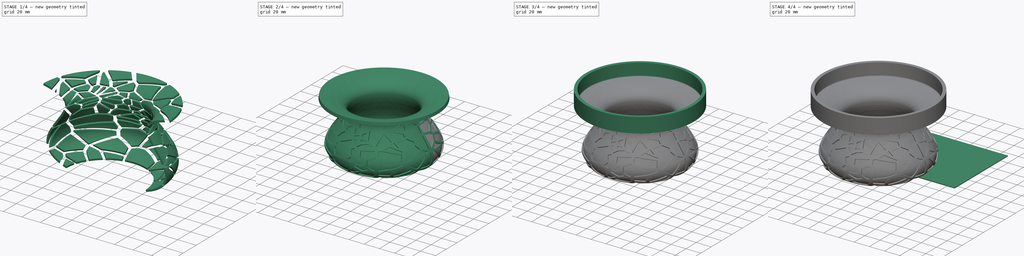
[diagram: build sequence overview — one tinted view per stage of 4, left to right]
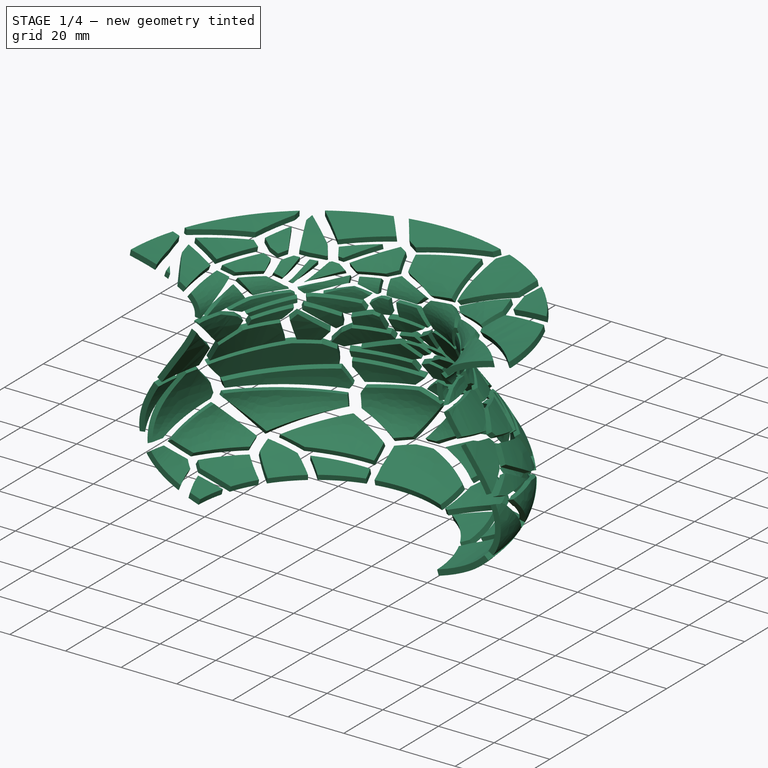
[diagram: stage 1 of 4 — iso view after this stage's code; geometry added in this stage tinted green]
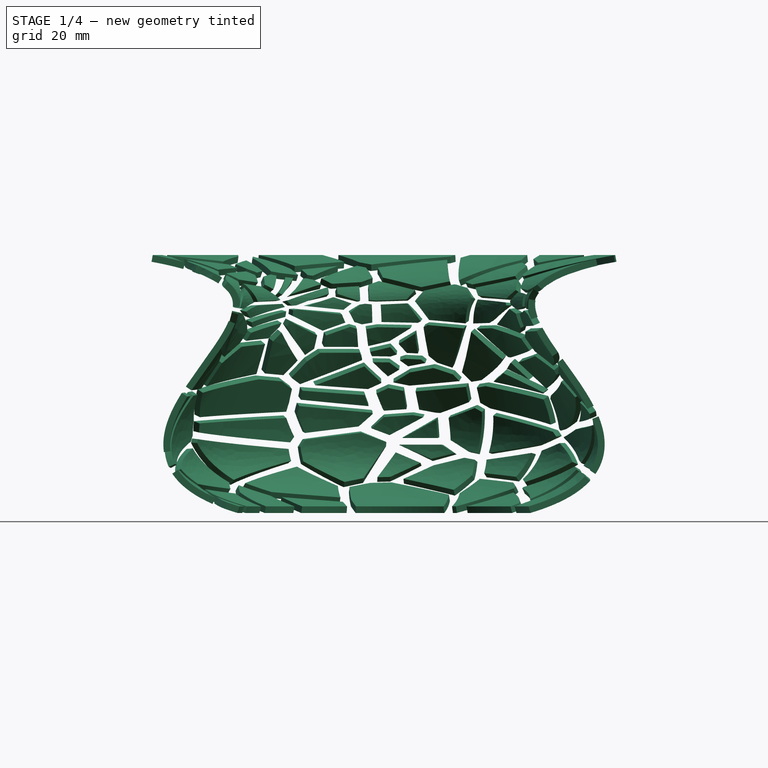
[diagram: stage 1 of 4 — front view after this stage's code; geometry added in this stage tinted green]
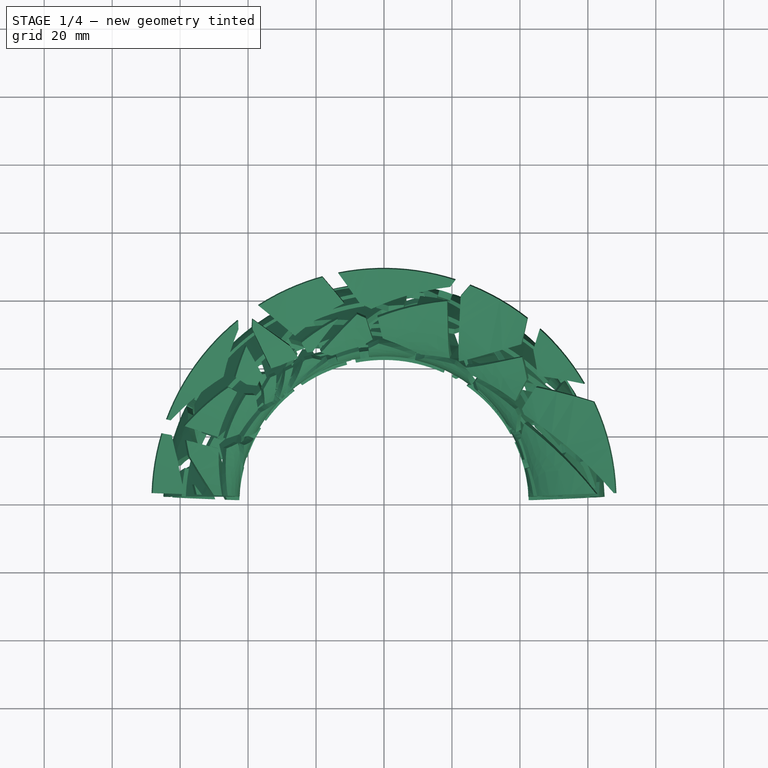
[diagram: stage 1 of 4 — top view after this stage's code; geometry added in this stage tinted green]
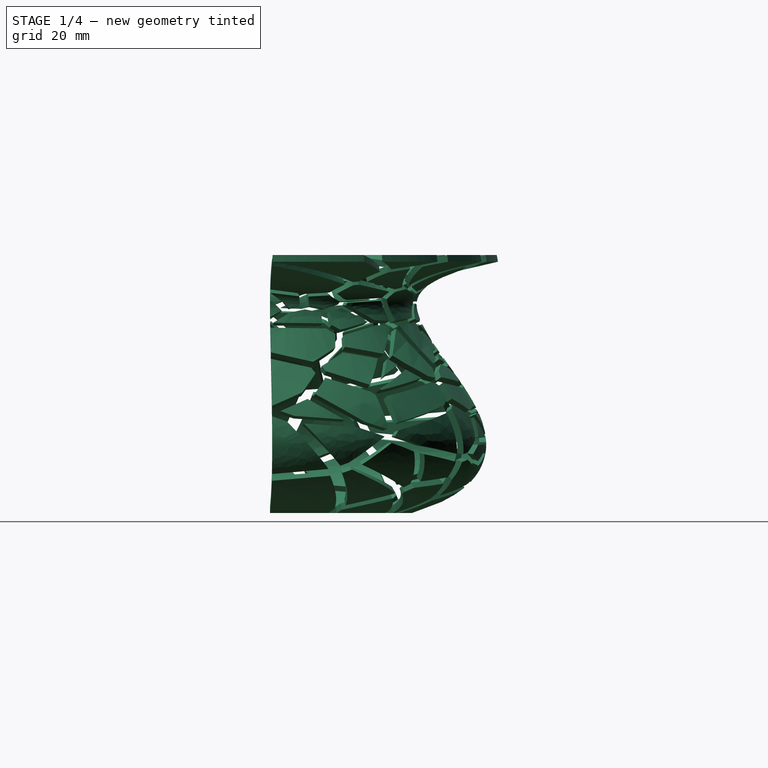
[diagram: stage 1 of 4 — right view after this stage's code; geometry added in this stage tinted green]
FCSTD DOCUMENT  (FreeCAD 0.20R29603 (Git))
Label: Voronoi-vase
License: All rights reserved
LicenseURL: http://en.wikipedia.org/wiki/All_rights_reserved
objects: Sketcher::SketchObject×11, Part::FeaturePython×3, Part::MultiFuse×2, Part::Loft×1, Part::Offset×1, Part::Extrusion×1, PartDesign::FeatureBase×1, PartDesign::Body×1, Part::Part2DObjectPython×1, Part::Cut×1, Part::Mirroring×1, Part::Sweep×1
note: 25 computed .brp shape members not serialized (recipe doc carries the construction recipe); baked Part::Feature solids carry a one-line shape summary decoded from their .brp

FEATURE [Sketcher::SketchObject] Sketch
  FullyConstrained = true
  sketch-geometry (1):
    g0: ArcOfCircle CenterX=0 CenterY=0 CenterZ=0 NormalX=0 NormalY=0 NormalZ=1 AngleXU=0 Radius=40 StartAngle=0 EndAngle=3.14159
  constraints (4):
    c: Coincident(g0,g-1)
    c: PointOnObject(g0,g-1)
    c: PointOnObject(g0,g-1)
    c: Radius(g0) = 40
FEATURE [Sketcher::SketchObject] Sketch001
  FullyConstrained = true
  Placement = pos=(0,0,20) rot=(0,0,1;0rad)
  sketch-geometry (1):
    g0: ArcOfCircle CenterX=0 CenterY=0 CenterZ=0 NormalX=0 NormalY=0 NormalZ=1 AngleXU=0 Radius=60 StartAngle=0 EndAngle=3.14159
  constraints (4):
    c: Coincident(g0,g-1)
    c: PointOnObject(g0,g-1)
    c: PointOnObject(g0,g-1)
    c: Radius(g0) = 60
FEATURE [Sketcher::SketchObject] Sketch002
  FullyConstrained = true
  Placement = pos=(0,0,50) rot=(0,0,1;0rad)
  sketch-geometry (1):
    g0: ArcOfCircle CenterX=0 CenterY=0 CenterZ=0 NormalX=0 NormalY=0 NormalZ=1 AngleXU=0 Radius=42.0081 StartAngle=0 EndAngle=3.14159
  constraints (4):
    c: Coincident(g0,g-1)
    c: PointOnObject(g0,g-1)
    c: PointOnObject(g0,g-1)
    c: Radius(g0) = 42.0081
FEATURE [Sketcher::SketchObject] Sketch003
  FullyConstrained = true
  Placement = pos=(0,0,75) rot=(0,0,1;0rad)
  sketch-geometry (1):
    g0: ArcOfCircle CenterX=0 CenterY=0 CenterZ=0 NormalX=0 NormalY=0 NormalZ=1 AngleXU=0 Radius=70 StartAngle=0 EndAngle=3.14159
  constraints (4):
    c: Coincident(g0,g-1)
    c: PointOnObject(g0,g-1)
    c: PointOnObject(g0,g-1)
    c: Radius(g0) = 70
FEATURE [Part::Loft] Loft
  Closed = false
  MaxDegree = 5
  Ruled = false
  Sections = -> [Sketch,Sketch001,Sketch002,Sketch003]
  Solid = false
FEATURE [Part::Offset] Offset
  Fill = true
  Intersection = false
  Join = 0
  Mode = 0
  SelfIntersection = false
  Source = -> Loft
  Value = 4
FEATURE [Sketcher::SketchObject] Mapped_Sketch
  FullyConstrained = true
  Support = -> [Offset]
  sketch-geometry (4):
    g0: LineSegment StartX=0 StartY=0 StartZ=0 EndX=1 EndY=0 EndZ=0
    g1: LineSegment StartX=1 StartY=0 StartZ=0 EndX=1 EndY=1 EndZ=0
    g2: LineSegment StartX=1 StartY=1 StartZ=0 EndX=0 EndY=1 EndZ=0
    g3: LineSegment StartX=0 StartY=1 StartZ=0 EndX=0 EndY=0 EndZ=0
  constraints (12):
    c: Coincident(g0,g1)
    c: Coincident(g1,g2)
    c: Coincident(g2,g3)
    c: Coincident(g3,g0)
    c: Horizontal(g0)
    c: Horizontal(g2)
    c: Vertical(g1)
    c: Vertical(g3)
    c: DistanceX(g2,g2) = 1
    c: DistanceY(g1,g1) = 1
    c: DistanceX(g0,g-1) = 0
    c: DistanceY(g0,g-1) = 0
FEATURE [Part::FeaturePython] Sketch_On_Surface  # WARN: FeaturePython — macro-defined, semantics opaque (R4)
  ConstructionBounds = true
  FillExtrusion = true
  FillFaces = false
  ReverseU = false
  ReverseV = false
  Sketch = -> Mapped_Sketch
  SwapUV = false
  Thickness = 0
FEATURE [Sketcher::SketchObject] Voronoi_Sketch
  FullyConstrained = false
  MapMode = 5
  Placement = pos=(0,0,1) rot=(0,0,1;0rad)
  Support = -> [BaseFeature]
  sketch-geometry (529):
    g0: LineSegment StartX=30.4311 StartY=17.7855 StartZ=0 EndX=20.6801 EndY=13.3687 EndZ=0
    g1: LineSegment StartX=20.6801 StartY=13.3687 StartZ=0 EndX=22.3975 EndY=7.90905 EndZ=0
    g2: LineSegment StartX=22.3975 StartY=7.90905 StartZ=0 EndX=25.601 EndY=5.79042 EndZ=0
    g3: LineSegment StartX=25.601 StartY=5.79042 StartZ=0 EndX=32.5318 EndY=16.5901 EndZ=0
    g4: LineSegment StartX=32.5318 StartY=16.5901 StartZ=0 EndX=30.4311 EndY=17.7855 EndZ=0
    g5: LineSegment StartX=77.265 StartY=22.7747 StartZ=0 EndX=75.4578 EndY=25.7027 EndZ=0
    g6: LineSegment StartX=75.4578 StartY=25.7027 StartZ=0 EndX=75.3901 EndY=25.9791 EndZ=0
    g7: LineSegment StartX=75.3901 StartY=25.9791 StartZ=0 EndX=75.3859 EndY=26.054 EndZ=0
    g8: LineSegment StartX=75.3859 StartY=26.054 StartZ=0 EndX=83.7968 EndY=26.8486 EndZ=0
    g9: LineSegment StartX=83.7968 StartY=26.8486 StartZ=0 EndX=86.4001 EndY=17.3 EndZ=0
    g10: LineSegment StartX=86.4001 StartY=17.3 StartZ=0 EndX=86.3865 EndY=17.2712 EndZ=0
    g11: LineSegment StartX=86.3865 StartY=17.2712 StartZ=0 EndX=80.1371 EndY=18.7983 EndZ=0
    g12: LineSegment StartX=80.1371 StartY=18.7983 StartZ=0 EndX=77.265 EndY=22.7747 EndZ=0
    g13: LineSegment StartX=75.2743 StartY=22.1921 StartZ=0 EndX=74.5248 EndY=23.4064 EndZ=0
    g14: LineSegment StartX=74.5248 StartY=23.4064 StartZ=0 EndX=69.0092 EndY=14.4536 EndZ=0
    g15: LineSegment StartX=69.0092 StartY=14.4536 StartZ=0 EndX=70.6777 EndY=13.9219 EndZ=0
    g16: LineSegment StartX=70.6777 StartY=13.9219 StartZ=0 EndX=75.2743 EndY=22.1921 EndZ=0
    g17: LineSegment StartX=43.5316 StartY=40.1481 StartZ=0 EndX=47.0644 EndY=43.8159 EndZ=0
    g18: LineSegment StartX=47.0644 StartY=43.8159 StartZ=0 EndX=45.6141 EndY=46.8878 EndZ=0
    g19: LineSegment StartX=45.6141 StartY=46.8878 StartZ=0 EndX=43.464 EndY=47.0712 EndZ=0
    g20: LineSegment StartX=43.464 StartY=47.0712 StartZ=0 EndX=43.5316 EndY=40.1481 EndZ=0
    g21: LineSegment StartX=64.0615 StartY=45.488 StartZ=0 EndX=64.184 EndY=40.823 EndZ=0
    g22: LineSegment StartX=64.184 StartY=40.823 StartZ=0 EndX=72.0077 EndY=35.4046 EndZ=0
    g23: LineSegment StartX=72.0077 StartY=35.4046 StartZ=0 EndX=72.3542 EndY=37.5651 EndZ=0
    g24: LineSegment StartX=72.3542 StartY=37.5651 StartZ=0 EndX=65.6151 EndY=47.574 EndZ=0
    g25: LineSegment StartX=65.6151 StartY=47.574 StartZ=0 EndX=64.0615 EndY=45.488 EndZ=0
    g26: LineSegment StartX=48.7641 StartY=48.0888 StartZ=0 EndX=52.2879 EndY=47.9911 EndZ=0
    g27: LineSegment StartX=52.2879 StartY=47.9911 StartZ=0 EndX=52.676 EndY=46.5481 EndZ=0
    g28: LineSegment StartX=52.676 StartY=46.5481 StartZ=0 EndX=48.7593 EndY=44.9104 EndZ=0
    g29: LineSegment StartX=48.7593 StartY=44.9104 StartZ=0 EndX=47.5746 EndY=47.42 EndZ=0
    g30: LineSegment StartX=47.5746 StartY=47.42 StartZ=0 EndX=48.7641 EndY=48.0888 EndZ=0
    g31: LineSegment StartX=65.9352 StartY=58.785 StartZ=0 EndX=68.4211 EndY=56.3052 EndZ=0
    g32: LineSegment StartX=68.4211 StartY=56.3052 StartZ=0 EndX=73.6166 EndY=55.6328 EndZ=0
    g33: LineSegment StartX=73.6166 StartY=55.6328 StartZ=0 EndX=88.2797 EndY=59.9954 EndZ=0
    g34: LineSegment StartX=88.2797 StartY=59.9954 StartZ=0 EndX=84.6814 EndY=67.7798 EndZ=0
    g35: LineSegment StartX=84.6814 StartY=67.7798 StartZ=0 EndX=65.8086 EndY=66.0519 EndZ=0
    g36: LineSegment StartX=65.8086 StartY=66.0519 StartZ=0 EndX=65.7252 EndY=63.0677 EndZ=0
    g37: LineSegment StartX=65.7252 StartY=63.0677 StartZ=0 EndX=65.9352 EndY=58.785 EndZ=0
    g38: LineSegment StartX=99 StartY=94.7577 StartZ=0 EndX=94.073 EndY=92.3749 EndZ=0
    g39: LineSegment StartX=94.073 StartY=92.3749 StartZ=0 EndX=93.1441 EndY=90.001 EndZ=0
    g40: LineSegment StartX=93.1441 StartY=90.001 StartZ=0 EndX=95.9916 EndY=84.3563 EndZ=0
    g41: LineSegment StartX=95.9916 StartY=84.3563 StartZ=0 EndX=99 EndY=84.0143 EndZ=0
    g42: LineSegment StartX=99 StartY=84.0143 StartZ=0 EndX=99 EndY=94.7577 EndZ=0
    g43: LineSegment StartX=65.5582 StartY=68.0374 StartZ=0 EndX=84.0981 EndY=69.7348 EndZ=0
    g44: LineSegment StartX=84.0981 StartY=69.7348 StartZ=0 EndX=83.5453 EndY=72.5493 EndZ=0
    g45: LineSegment StartX=83.5453 StartY=72.5493 StartZ=0 EndX=64.4429 EndY=75.5422 EndZ=0
    g46: LineSegment StartX=64.4429 StartY=75.5422 StartZ=0 EndX=63.825 EndY=73.8527 EndZ=0
    g47: LineSegment StartX=63.825 StartY=73.8527 StartZ=0 EndX=65.5582 EndY=68.0374 EndZ=0
    g48: LineSegment StartX=87.2395 StartY=36.142 StartZ=0 EndX=85.214 EndY=39.3746 EndZ=0
    g49: LineSegment StartX=85.214 StartY=39.3746 StartZ=0 EndX=85.7769 EndY=43.4835 EndZ=0
    g50: LineSegment StartX=85.7769 StartY=43.4835 StartZ=0 EndX=89.2933 EndY=48.215 EndZ=0
    g51: LineSegment StartX=89.2933 StartY=48.215 StartZ=0 EndX=99 EndY=32.6188 EndZ=0
    g52: LineSegment StartX=99 StartY=31.9783 StartZ=0 EndX=99 EndY=32.6188 EndZ=0
    g53: LineSegment StartX=99 StartY=31.9783 StartZ=0 EndX=98.5817 EndY=31.8652 EndZ=0
    g54: LineSegment StartX=98.5817 StartY=31.8652 StartZ=0 EndX=92.1364 EndY=32.3424 EndZ=0
    g55: LineSegment StartX=92.1364 StartY=32.3424 StartZ=0 EndX=87.2395 EndY=36.142 EndZ=0
    g56: LineSegment StartX=57.2006 StartY=27.8084 StartZ=0 EndX=61.3159 EndY=24.5693 EndZ=0
    g57: LineSegment StartX=61.3159 StartY=24.5693 StartZ=0 EndX=67.8296 EndY=29.1144 EndZ=0
    g58: LineSegment StartX=67.8296 StartY=29.1144 StartZ=0 EndX=59.035 EndY=30.7684 EndZ=0
    g59: LineSegment StartX=59.035 StartY=30.7684 StartZ=0 EndX=57.2006 EndY=27.8084 EndZ=0
    g60: LineSegment StartX=71.5189 StartY=33.3104 StartZ=0 EndX=71.5471 EndY=30.8687 EndZ=0
    g61: LineSegment StartX=71.5471 StartY=30.8687 StartZ=0 EndX=70.3656 EndY=30.6726 EndZ=0
    g62: LineSegment StartX=70.3656 StartY=30.6726 StartZ=0 EndX=59.3375 EndY=32.7466 EndZ=0
    g63: LineSegment StartX=59.3375 StartY=32.7466 StartZ=0 EndX=58.3883 EndY=36.0596 EndZ=0
    g64: LineSegment StartX=58.3883 StartY=36.0596 StartZ=0 EndX=63.173 EndY=39.0903 EndZ=0
    g65: LineSegment StartX=63.173 StartY=39.0903 StartZ=0 EndX=71.5189 EndY=33.3104 EndZ=0
    g66: LineSegment StartX=80.9777 StartY=90.9361 StartZ=0 EndX=79.2428 EndY=88.4712 EndZ=0
    g67: LineSegment StartX=79.2428 StartY=88.4712 StartZ=0 EndX=85.2431 EndY=77.3363 EndZ=0
    g68: LineSegment StartX=85.2431 StartY=77.3363 StartZ=0 EndX=94.0657 EndY=83.7335 EndZ=0
    g69: LineSegment StartX=94.0657 StartY=83.7335 StartZ=0 EndX=91.3817 EndY=89.0541 EndZ=0
    g70: LineSegment StartX=91.3817 StartY=89.0541 StartZ=0 EndX=80.9777 EndY=90.9361 EndZ=0
    g71: LineSegment StartX=99 StartY=78.1986 StartZ=0 EndX=94.4991 EndY=61.0668 EndZ=0
    g72: LineSegment StartX=94.4991 StartY=61.0668 StartZ=0 EndX=99 EndY=61.2222 EndZ=0
    g73: LineSegment StartX=99 StartY=61.2222 StartZ=0 EndX=99 EndY=78.1986 EndZ=0
    g74: LineSegment StartX=51.1132 StartY=8.78558 StartZ=0 EndX=40.2312 EndY=4.14994 EndZ=0
    g75: LineSegment StartX=40.2312 StartY=4.14994 StartZ=0 EndX=36.2407 EndY=16.1539 EndZ=0
    g76: LineSegment StartX=36.2407 StartY=16.1539 StartZ=0 EndX=42.0818 EndY=19.1887 EndZ=0
    g77: LineSegment StartX=42.0818 StartY=19.1887 StartZ=0 EndX=50.246 EndY=14.1395 EndZ=0
    g78: LineSegment StartX=50.246 StartY=14.1395 StartZ=0 EndX=51.1132 EndY=8.78558 EndZ=0
    g79: LineSegment StartX=21.6852 StartY=5.98232 StartZ=0 EndX=16.782 EndY=1 EndZ=0
    g80: LineSegment StartX=16.782 StartY=1 StartZ=0 EndX=26.5092 EndY=1 EndZ=0
    g81: LineSegment StartX=26.5092 StartY=1 StartZ=0 EndX=25.1243 EndY=3.70786 EndZ=0
    g82: LineSegment StartX=25.1243 StartY=3.70786 StartZ=0 EndX=21.6852 EndY=5.98232 EndZ=0
    g83: LineSegment StartX=76.5636 StartY=43.8923 StartZ=0 EndX=74.835 EndY=53.9087 EndZ=0
    g84: LineSegment StartX=74.835 StartY=53.9087 StartZ=0 EndX=88.357 EndY=57.9318 EndZ=0
    g85: LineSegment StartX=88.357 StartY=57.9318 StartZ=0 EndX=88.3661 EndY=50.3203 EndZ=0
    g86: LineSegment StartX=88.3661 StartY=50.3203 StartZ=0 EndX=84.275 EndY=44.8156 EndZ=0
    g87: LineSegment StartX=84.275 StartY=44.8156 StartZ=0 EndX=76.5636 EndY=43.8923 EndZ=0
    g88: LineSegment StartX=40.1126 StartY=35.008 StartZ=0 EndX=43.1466 EndY=26.6515 EndZ=0
    g89: LineSegment StartX=43.1466 StartY=26.6515 StartZ=0 EndX=41.302 EndY=21.0374 EndZ=0
    g90: LineSegment StartX=41.302 StartY=21.0374 StartZ=0 EndX=34.9064 EndY=17.7145 EndZ=0
    g91: LineSegment StartX=34.9064 StartY=17.7145 StartZ=0 EndX=34.3261 EndY=17.8702 EndZ=0
    g92: LineSegment StartX=34.3261 StartY=17.8702 StartZ=0 EndX=31.2976 EndY=19.5936 EndZ=0
    g93: LineSegment StartX=31.2976 StartY=19.5936 StartZ=0 EndX=29.4459 EndY=24.7091 EndZ=0
    g94: LineSegment StartX=29.4459 StartY=24.7091 StartZ=0 EndX=31.5927 EndY=36.3524 EndZ=0
    g95: LineSegment StartX=31.5927 StartY=36.3524 StartZ=0 EndX=40.1126 EndY=35.008 EndZ=0
    g96: LineSegment StartX=55.0878 StartY=44.8472 StartZ=0 EndX=62.0785 EndY=44.8125 EndZ=0
    g97: LineSegment StartX=62.0785 StartY=44.8125 StartZ=0 EndX=62.1831 EndY=40.8308 EndZ=0
    g98: LineSegment StartX=62.1831 StartY=40.8308 StartZ=0 EndX=57.1769 EndY=37.6598 EndZ=0
    g99: LineSegment StartX=57.1769 StartY=37.6598 StartZ=0 EndX=55.7406 EndY=38.4236 EndZ=0
    g100: LineSegment StartX=55.7406 StartY=38.4236 StartZ=0 EndX=55.0878 EndY=44.8472 EndZ=0
    g101: LineSegment StartX=64.6895 StartY=57.2028 StartZ=0 EndX=66.7907 EndY=55.1067 EndZ=0
    g102: LineSegment StartX=66.7907 StartY=55.1067 StartZ=0 EndX=64.7709 EndY=49.7889 EndZ=0
    g103: LineSegment StartX=64.7709 StartY=49.7889 StartZ=0 EndX=62.5525 EndY=46.8102 EndZ=0
    g104: LineSegment StartX=62.5525 StartY=46.8102 StartZ=0 EndX=54.666 EndY=46.8493 EndZ=0
    g105: LineSegment StartX=54.666 StartY=46.8493 StartZ=0 EndX=54.0863 EndY=49.0048 EndZ=0
    g106: LineSegment StartX=54.0863 StartY=49.0048 StartZ=0 EndX=54.1569 EndY=49.3617 EndZ=0
    g107: LineSegment StartX=54.1569 StartY=49.3617 StartZ=0 EndX=64.6895 EndY=57.2028 EndZ=0
    g108: LineSegment StartX=76.568 StartY=11.5706 StartZ=0 EndX=77.6546 EndY=9.50488 EndZ=0
    g109: LineSegment StartX=77.6546 StartY=9.50488 StartZ=0 EndX=77.9591 EndY=6.85501 EndZ=0
    g110: LineSegment StartX=77.9591 StartY=6.85501 StartZ=0 EndX=73.2001 EndY=4.50437 EndZ=0
    g111: LineSegment StartX=73.2001 StartY=4.50437 StartZ=0 EndX=74.5007 EndY=10.6966 EndZ=0
    g112: LineSegment StartX=74.5007 StartY=10.6966 StartZ=0 EndX=76.568 EndY=11.5706 EndZ=0
    g113: LineSegment StartX=80.0816 StartY=16.753 StartZ=0 EndX=86.2822 EndY=15.2378 EndZ=0
    g114: LineSegment StartX=86.2822 StartY=15.2378 StartZ=0 EndX=88.1106 EndY=11.9621 EndZ=0
    g115: LineSegment StartX=88.1106 StartY=11.9621 StartZ=0 EndX=79.1908 EndY=10.8806 EndZ=0
    g116: LineSegment StartX=79.1908 StartY=10.8806 StartZ=0 EndX=78.1482 EndY=12.8625 EndZ=0
    g117: LineSegment StartX=78.1482 StartY=12.8625 StartZ=0 EndX=80.0816 EndY=16.753 EndZ=0
    g118: LineSegment StartX=66.7749 StartY=49.4324 StartZ=0 EndX=68.6101 EndY=54.2641 EndZ=0
    g119: LineSegment StartX=68.6101 StartY=54.2641 StartZ=0 EndX=72.8386 EndY=53.7169 EndZ=0
    g120: LineSegment StartX=72.8386 StartY=53.7169 StartZ=0 EndX=74.7008 EndY=42.9259 EndZ=0
    g121: LineSegment StartX=74.7008 StartY=42.9259 StartZ=0 EndX=73.2471 EndY=39.82 EndZ=0
    g122: LineSegment StartX=73.2471 StartY=39.82 StartZ=0 EndX=66.7749 EndY=49.4324 EndZ=0
    g123: LineSegment StartX=63.2911 StartY=17.5513 StartZ=0 EndX=71.9924 EndY=23.109 EndZ=0
    g124: LineSegment StartX=71.9924 StartY=23.109 StartZ=0 EndX=66.8219 EndY=14.7162 EndZ=0
    g125: LineSegment StartX=66.8219 StartY=14.7162 StartZ=0 EndX=66.217 EndY=14.5051 EndZ=0
    g126: LineSegment StartX=66.217 StartY=14.5051 StartZ=0 EndX=64.7434 EndY=15.1906 EndZ=0
    g127: LineSegment StartX=64.7434 StartY=15.1906 StartZ=0 EndX=63.2911 EndY=17.5513 EndZ=0
    g128: LineSegment StartX=42.6932 StartY=36.1294 StartZ=0 EndX=50.5198 EndY=35.8143 EndZ=0
    g129: LineSegment StartX=50.5198 StartY=35.8143 StartZ=0 EndX=50.6967 EndY=28.3331 EndZ=0
    g130: LineSegment StartX=50.6967 StartY=28.3331 StartZ=0 EndX=44.8786 EndY=27.7415 EndZ=0
    g131: LineSegment StartX=44.8786 StartY=27.7415 StartZ=0 EndX=42.0318 EndY=35.5824 EndZ=0
    g132: LineSegment StartX=42.0318 StartY=35.5824 StartZ=0 EndX=42.6932 EndY=36.1294 EndZ=0
    g133: LineSegment StartX=73.6184 StartY=33.8166 StartZ=0 EndX=83.7713 EndY=37.9104 EndZ=0
    g134: LineSegment StartX=83.7713 StartY=37.9104 StartZ=0 EndX=84.9994 EndY=35.9504 EndZ=0
    g135: LineSegment StartX=84.9994 StartY=35.9504 StartZ=0 EndX=73.5406 EndY=31.444 EndZ=0
    g136: LineSegment StartX=73.5406 StartY=31.444 StartZ=0 EndX=73.5156 EndY=33.6093 EndZ=0
    g137: LineSegment StartX=73.5156 StartY=33.6093 StartZ=0 EndX=73.6184 EndY=33.8166 EndZ=0
    g138: LineSegment StartX=61.169 StartY=17.1838 StartZ=0 EndX=60.84 EndY=17.4363 EndZ=0
    g139: LineSegment StartX=60.84 StartY=17.4363 StartZ=0 EndX=54.6718 EndY=16.5474 EndZ=0
    g140: LineSegment StartX=54.6718 StartY=16.5474 StartZ=0 EndX=52.2348 EndY=14.3693 EndZ=0
    g141: LineSegment StartX=52.2348 StartY=14.3693 StartZ=0 EndX=53.1454 EndY=8.74811 EndZ=0
    g142: LineSegment StartX=53.1454 StartY=8.74811 StartZ=0 EndX=54.5696 EndY=7.74636 EndZ=0
    g143: LineSegment StartX=54.5696 StartY=7.74636 StartZ=0 EndX=62.7456 EndY=14.6211 EndZ=0
    g144: LineSegment StartX=62.7456 StartY=14.6211 StartZ=0 EndX=61.169 EndY=17.1838 EndZ=0
    g145: LineSegment StartX=74.1595 StartY=36.1912 StartZ=0 EndX=83.262 EndY=39.8615 EndZ=0
    g146: LineSegment StartX=83.262 StartY=39.8615 StartZ=0 EndX=83.6545 EndY=42.727 EndZ=0
    g147: LineSegment StartX=83.6545 StartY=42.727 StartZ=0 EndX=76.41 EndY=41.8596 EndZ=0
    g148: LineSegment StartX=76.41 StartY=41.8596 StartZ=0 EndX=74.3693 EndY=37.4995 EndZ=0
    g149: LineSegment StartX=74.3693 StartY=37.4995 StartZ=0 EndX=74.1595 EndY=36.1912 EndZ=0
    g150: LineSegment StartX=54.6967 StartY=36.7135 StartZ=0 EndX=56.3764 EndY=35.8203 EndZ=0
    g151: LineSegment StartX=56.3764 StartY=35.8203 StartZ=0 EndX=57.4629 EndY=32.0282 EndZ=0
    g152: LineSegment StartX=57.4629 StartY=32.0282 StartZ=0 EndX=55.1964 EndY=28.3712 EndZ=0
    g153: LineSegment StartX=55.1964 StartY=28.3712 StartZ=0 EndX=54.1722 EndY=27.9344 EndZ=0
    g154: LineSegment StartX=54.1722 StartY=27.9344 StartZ=0 EndX=52.6993 EndY=28.2463 EndZ=0
    g155: LineSegment StartX=52.6993 StartY=28.2463 StartZ=0 EndX=52.515 EndY=36.0425 EndZ=0
    g156: LineSegment StartX=52.515 StartY=36.0425 StartZ=0 EndX=54.6967 EndY=36.7135 EndZ=0
    g157: LineSegment StartX=74.8788 StartY=28.015 StartZ=0 EndX=74.028 EndY=29.4866 EndZ=0
    g158: LineSegment StartX=74.028 StartY=29.4866 StartZ=0 EndX=86.3228 EndY=34.3218 EndZ=0
    g159: LineSegment StartX=86.3228 StartY=34.3218 StartZ=0 EndX=89.8671 EndY=31.5717 EndZ=0
    g160: LineSegment StartX=89.8671 StartY=31.5717 StartZ=0 EndX=84.2698 EndY=28.9021 EndZ=0
    g161: LineSegment StartX=84.2698 StartY=28.9021 StartZ=0 EndX=74.8788 EndY=28.015 EndZ=0
    g162: LineSegment StartX=79.7336 StartY=8.93176 StartZ=0 EndX=88.3552 EndY=9.97715 EndZ=0
    g163: LineSegment StartX=88.3552 StartY=9.97715 StartZ=0 EndX=88.6567 EndY=3.59868 EndZ=0
    g164: LineSegment StartX=88.6567 StartY=3.59868 StartZ=0 EndX=79.9575 EndY=6.98334 EndZ=0
    g165: LineSegment StartX=79.9575 StartY=6.98334 StartZ=0 EndX=79.7336 EndY=8.93176 EndZ=0
    g166: LineSegment StartX=85.8036 StartY=75.2723 StartZ=0 EndX=85.4122 EndY=73.4215 EndZ=0
    g167: LineSegment StartX=85.4122 StartY=73.4215 StartZ=0 EndX=86.2511 EndY=69.1506 EndZ=0
    g168: LineSegment StartX=86.2511 StartY=69.1506 StartZ=0 EndX=90.1782 EndY=60.6548 EndZ=0
    g169: LineSegment StartX=90.1782 StartY=60.6548 StartZ=0 EndX=92.3953 EndY=60.93 EndZ=0
    g170: LineSegment StartX=92.3953 StartY=60.93 StartZ=0 EndX=97.9622 EndY=82.1194 EndZ=0
    g171: LineSegment StartX=97.9622 StartY=82.1194 StartZ=0 EndX=95.6147 EndY=82.3863 EndZ=0
    g172: LineSegment StartX=95.6147 StartY=82.3863 StartZ=0 EndX=85.8036 EndY=75.2723 EndZ=0
    g173: LineSegment StartX=55.2358 StartY=18.6493 StartZ=0 EndX=55.2709 EndY=26.2287 EndZ=0
    g174: LineSegment StartX=55.2709 StartY=26.2287 StartZ=0 EndX=55.7269 EndY=26.4231 EndZ=0
    g175: LineSegment StartX=55.7269 StartY=26.4231 StartZ=0 EndX=60.2634 EndY=22.8526 EndZ=0
    g176: LineSegment StartX=60.2634 StartY=22.8526 StartZ=0 EndX=60.1437 EndY=19.3566 EndZ=0
    g177: LineSegment StartX=60.1437 StartY=19.3566 StartZ=0 EndX=55.2358 EndY=18.6493 EndZ=0
    g178: LineSegment StartX=44.3031 StartY=38.0662 StartZ=0 EndX=48.8399 EndY=42.7762 EndZ=0
    g179: LineSegment StartX=48.8399 StartY=42.7762 StartZ=0 EndX=53.1067 EndY=44.5604 EndZ=0
    g180: LineSegment StartX=53.1067 StartY=44.5604 StartZ=0 EndX=53.7219 EndY=38.5061 EndZ=0
    g181: LineSegment StartX=53.7219 StartY=38.5061 StartZ=0 EndX=51.3668 EndY=37.7818 EndZ=0
    g182: LineSegment StartX=51.3668 StartY=37.7818 StartZ=0 EndX=44.3031 EndY=38.0662 EndZ=0
    g183: LineSegment StartX=51.0508 StartY=15.9934 StartZ=0 EndX=43.3207 EndY=20.7741 EndZ=0
    g184: LineSegment StartX=43.3207 StartY=20.7741 StartZ=0 EndX=44.9519 EndY=25.7387 EndZ=0
    g185: LineSegment StartX=44.9519 StartY=25.7387 StartZ=0 EndX=51.664 EndY=26.4211 EndZ=0
    g186: LineSegment StartX=51.664 StartY=26.4211 StartZ=0 EndX=53.2702 EndY=26.081 EndZ=0
    g187: LineSegment StartX=53.2702 StartY=26.081 StartZ=0 EndX=53.2325 EndY=17.9434 EndZ=0
    g188: LineSegment StartX=53.2325 StartY=17.9434 StartZ=0 EndX=51.0508 EndY=15.9934 EndZ=0
    g189: LineSegment StartX=99 StartY=8.9944 StartZ=0 EndX=97.3338 EndY=7.32498 EndZ=0
    g190: LineSegment StartX=97.3338 StartY=7.32498 StartZ=0 EndX=99 EndY=7.91559 EndZ=0
    g191: LineSegment StartX=99 StartY=7.91559 StartZ=0 EndX=99 EndY=8.9944 EndZ=0
    g192: LineSegment StartX=76.5432 StartY=20.3582 StartZ=0 EndX=72.5246 EndY=13.1279 EndZ=0
    g193: LineSegment StartX=72.5246 StartY=13.1279 StartZ=0 EndX=73.6769 EndY=12.5198 EndZ=0
    g194: LineSegment StartX=73.6769 StartY=12.5198 StartZ=0 EndX=76.2945 EndY=13.6264 EndZ=0
    g195: LineSegment StartX=76.2945 StartY=13.6264 StartZ=0 EndX=78.3777 EndY=17.8184 EndZ=0
    g196: LineSegment StartX=78.3777 StartY=17.8184 StartZ=0 EndX=76.5432 EndY=20.3582 EndZ=0
    g197: LineSegment StartX=90.3662 StartY=50.2763 StartZ=0 EndX=99 EndY=36.4038 EndZ=0
    g198: LineSegment StartX=99 StartY=36.4038 StartZ=0 EndX=99 EndY=59.221 EndZ=0
    g199: LineSegment StartX=99 StartY=59.221 StartZ=0 EndX=93.2695 EndY=59.0232 EndZ=0
    g200: LineSegment StartX=93.2695 StartY=59.0232 StartZ=0 EndX=90.3561 EndY=58.6615 EndZ=0
    g201: LineSegment StartX=90.3561 StartY=58.6615 StartZ=0 EndX=90.3662 EndY=50.2763 EndZ=0
    g202: LineSegment StartX=17.5255 StartY=13.4527 StartZ=0 EndX=1 EndY=1.20268 EndZ=0
    g203: LineSegment StartX=1 StartY=1.20268 StartZ=0 EndX=1 EndY=1 EndZ=0
    g204: LineSegment StartX=1 StartY=1 StartZ=0 EndX=13.9759 EndY=1 EndZ=0
    g205: LineSegment StartX=13.9759 StartY=1 StartZ=0 EndX=20.4158 EndY=7.54377 EndZ=0
    g206: LineSegment StartX=20.4158 StartY=7.54377 StartZ=0 EndX=18.6651 EndY=13.1092 EndZ=0
    g207: LineSegment StartX=18.6651 StartY=13.1092 StartZ=0 EndX=17.5255 EndY=13.4527 EndZ=0
    g208: LineSegment StartX=85.7248 StartY=27.3803 StartZ=0 EndX=91.9526 EndY=30.3506 EndZ=0
    g209: LineSegment StartX=91.9526 StartY=30.3506 StartZ=0 EndX=96.6811 EndY=30.0004 EndZ=0
    g210: LineSegment StartX=96.6811 StartY=30.0004 StartZ=0 EndX=87.9177 EndY=19.3371 EndZ=0
    g211: LineSegment StartX=87.9177 StartY=19.3371 StartZ=0 EndX=85.7248 EndY=27.3803 EndZ=0
    g212: LineSegment StartX=64.205 StartY=13.2352 StartZ=0 EndX=57.8615 EndY=7.90131 EndZ=0
    g213: LineSegment StartX=57.8615 StartY=7.90131 StartZ=0 EndX=65.3577 EndY=9.90255 EndZ=0
    g214: LineSegment StartX=65.3577 StartY=9.90255 StartZ=0 EndX=65.1981 EndY=12.7733 EndZ=0
    g215: LineSegment StartX=65.1981 StartY=12.7733 StartZ=0 EndX=64.205 EndY=13.2352 EndZ=0
    g216: LineSegment StartX=27.047 StartY=4.34069 StartZ=0 EndX=34.3021 EndY=15.6455 EndZ=0
    g217: LineSegment StartX=34.3021 StartY=15.6455 StartZ=0 EndX=38.5657 EndY=2.81999 EndZ=0
    g218: LineSegment StartX=38.5657 StartY=2.81999 StartZ=0 EndX=37.9013 EndY=1 EndZ=0
    g219: LineSegment StartX=28.7557 StartY=1 StartZ=0 EndX=37.9013 EndY=1 EndZ=0
    g220: LineSegment StartX=28.7557 StartY=1 StartZ=0 EndX=27.047 EndY=4.34069 EndZ=0
    g221: LineSegment StartX=90.5299 StartY=2.14201 StartZ=0 EndX=90.6679 EndY=1 EndZ=0
    g222: LineSegment StartX=90.6679 StartY=1 StartZ=0 EndX=99 EndY=1 EndZ=0
    g223: LineSegment StartX=99 StartY=1 StartZ=0 EndX=99 EndY=5.79366 EndZ=0
    g224: LineSegment StartX=99 StartY=5.79366 StartZ=0 EndX=93.904 EndY=3.9873 EndZ=0
    g225: LineSegment StartX=93.904 StartY=3.9873 StartZ=0 EndX=90.5624 EndY=2.28942 EndZ=0
    g226: LineSegment StartX=90.5624 StartY=2.28942 StartZ=0 EndX=90.5299 EndY=2.14201 EndZ=0
    g227: LineSegment StartX=65.7657 StartY=7.94142 StartZ=0 EndX=68.2129 EndY=1 EndZ=0
    g228: LineSegment StartX=58.5418 StartY=1 StartZ=0 EndX=68.2129 EndY=1 EndZ=0
    g229: LineSegment StartX=58.5418 StartY=1 StartZ=0 EndX=56.3408 EndY=5.4253 EndZ=0
    g230: LineSegment StartX=56.3408 StartY=5.4253 StartZ=0 EndX=65.7657 EndY=7.94142 EndZ=0
    g231: LineSegment StartX=88.0666 StartY=16.1445 StartZ=0 EndX=88.3135 EndY=16.6686 EndZ=0
    g232: LineSegment StartX=88.3135 StartY=16.6686 StartZ=0 EndX=99 EndY=29.672 EndZ=0
    g233: LineSegment StartX=99 StartY=16.3893 StartZ=0 EndX=99 EndY=29.672 EndZ=0
    g234: LineSegment StartX=99 StartY=16.3893 StartZ=0 EndX=89.8171 EndY=13.0083 EndZ=0
    g235: LineSegment StartX=89.8171 StartY=13.0083 StartZ=0 EndX=88.0666 EndY=16.1445 EndZ=0
    g236: LineSegment StartX=71.7009 StartY=1 StartZ=0 EndX=88.6534 EndY=1 EndZ=0
    g237: LineSegment StartX=88.6534 StartY=1 StartZ=0 EndX=88.5958 EndY=1.47633 EndZ=0
    g238: LineSegment StartX=88.5958 StartY=1.47633 StartZ=0 EndX=79.0808 EndY=5.1784 EndZ=0
    g239: LineSegment StartX=79.0808 StartY=5.1784 StartZ=0 EndX=72.4352 EndY=1.89586 EndZ=0
    g240: LineSegment StartX=72.4352 StartY=1.89586 StartZ=0 EndX=71.7009 EndY=1 EndZ=0
    g241: LineSegment StartX=73.3659 StartY=26.3593 StartZ=0 EndX=62.1391 EndY=19.1887 EndZ=0
    g242: LineSegment StartX=62.1391 StartY=19.1887 StartZ=0 EndX=62.2624 EndY=22.791 EndZ=0
    g243: LineSegment StartX=62.2624 StartY=22.791 StartZ=0 EndX=70.7416 EndY=28.7076 EndZ=0
    g244: LineSegment StartX=70.7416 StartY=28.7076 StartZ=0 EndX=72.0433 EndY=28.9237 EndZ=0
    g245: LineSegment StartX=72.0433 StartY=28.9237 StartZ=0 EndX=73.3489 EndY=26.6653 EndZ=0
    g246: LineSegment StartX=73.3489 StartY=26.6653 StartZ=0 EndX=73.3659 EndY=26.3593 EndZ=0
    g247: LineSegment StartX=72.4959 StartY=10.8816 StartZ=0 EndX=70.8703 EndY=3.14161 EndZ=0
    g248: LineSegment StartX=70.8703 StartY=3.14161 StartZ=0 EndX=69.967 EndY=2.03957 EndZ=0
    g249: LineSegment StartX=69.967 StartY=2.03957 StartZ=0 EndX=67.3918 EndY=9.34408 EndZ=0
    g250: LineSegment StartX=67.3918 StartY=9.34408 StartZ=0 EndX=67.2035 EndY=12.7311 EndZ=0
    g251: LineSegment StartX=67.2035 StartY=12.7311 StartZ=0 EndX=67.5014 EndY=12.8351 EndZ=0
    g252: LineSegment StartX=67.5014 StartY=12.8351 StartZ=0 EndX=70.7659 EndY=11.7947 EndZ=0
    g253: LineSegment StartX=70.7659 StartY=11.7947 StartZ=0 EndX=72.4959 EndY=10.8816 EndZ=0
    g254: LineSegment StartX=40.4153 StartY=2.05448 StartZ=0 EndX=40.0304 EndY=1 EndZ=0
    g255: LineSegment StartX=40.0304 StartY=1 StartZ=0 EndX=56.3081 EndY=1 EndZ=0
    g256: LineSegment StartX=56.3081 StartY=1 StartZ=0 EndX=54.0346 EndY=5.57121 EndZ=0
    g257: LineSegment StartX=54.0346 StartY=5.57121 StartZ=0 EndX=53.898 EndY=5.77351 EndZ=0
    g258: LineSegment StartX=53.898 StartY=5.77351 StartZ=0 EndX=52.1055 EndY=7.03436 EndZ=0
    g259: LineSegment StartX=52.1055 StartY=7.03436 StartZ=0 EndX=40.4153 EndY=2.05448 EndZ=0
    g260: LineSegment StartX=90.6136 StartY=4.55878 StartZ=0 EndX=92.9136 EndY=5.72747 EndZ=0
    g261: LineSegment StartX=92.9136 StartY=5.72747 StartZ=0 EndX=99 EndY=11.8256 EndZ=0
    g262: LineSegment StartX=99 StartY=11.8256 StartZ=0 EndX=99 EndY=14.2581 EndZ=0
    g263: LineSegment StartX=99 StartY=14.2581 StartZ=0 EndX=90.3064 EndY=11.0572 EndZ=0
    g264: LineSegment StartX=90.3064 StartY=11.0572 StartZ=0 EndX=90.6136 EndY=4.55878 EndZ=0
    g265: LineSegment StartX=25.6644 StartY=52.1976 StartZ=0 EndX=24.0199 EndY=50.2876 EndZ=0
    g266: LineSegment StartX=24.0199 StartY=50.2876 StartZ=0 EndX=23.7438 EndY=50.3319 EndZ=0
    g267: LineSegment StartX=23.7438 StartY=50.3319 StartZ=0 EndX=21.3001 EndY=55.7565 EndZ=0
    g268: LineSegment StartX=21.3001 StartY=55.7565 StartZ=0 EndX=25.6644 EndY=52.1976 EndZ=0
    g269: LineSegment StartX=99 StartY=99 StartZ=0 EndX=91.6716 EndY=99 EndZ=0
    g270: LineSegment StartX=91.6716 StartY=99 StartZ=0 EndX=93.7668 EndY=94.4484 EndZ=0
    g271: LineSegment StartX=93.7668 StartY=94.4484 StartZ=0 EndX=99 EndY=96.9793 EndZ=0
    g272: LineSegment StartX=99 StartY=96.9793 StartZ=0 EndX=99 EndY=99 EndZ=0
    g273: LineSegment StartX=63.7349 StartY=82.9559 StartZ=0 EndX=57.811 EndY=89.8063 EndZ=0
    g274: LineSegment StartX=57.811 StartY=89.8063 StartZ=0 EndX=58.2827 EndY=94.6274 EndZ=0
    g275: LineSegment StartX=58.2827 StartY=94.6274 StartZ=0 EndX=71.484 EndY=92.2629 EndZ=0
    g276: LineSegment StartX=71.484 StartY=92.2629 StartZ=0 EndX=75.4062 EndY=88.6959 EndZ=0
    g277: LineSegment StartX=75.4062 StartY=88.6959 StartZ=0 EndX=63.7349 EndY=82.9559 EndZ=0
    g278: LineSegment StartX=58.3448 StartY=96.6481 StartZ=0 EndX=70.5034 EndY=94.4704 EndZ=0
    g279: LineSegment StartX=70.5034 StartY=94.4704 StartZ=0 EndX=69.1033 EndY=99 EndZ=0
    g280: LineSegment StartX=69.1033 StartY=99 StartZ=0 EndX=58.2064 EndY=99 EndZ=0
    g281: LineSegment StartX=58.2064 StartY=99 StartZ=0 EndX=58.3448 EndY=96.6481 EndZ=0
    g282: LineSegment StartX=41.5537 StartY=37.8687 StartZ=0 EndX=41.456 EndY=47.8766 EndZ=0
    g283: LineSegment StartX=41.456 StartY=47.8766 StartZ=0 EndX=40.0943 EndY=50.1175 EndZ=0
    g284: LineSegment StartX=40.0943 StartY=50.1175 StartZ=0 EndX=37.3404 EndY=51.8434 EndZ=0
    g285: LineSegment StartX=37.3404 StartY=51.8434 StartZ=0 EndX=32.3753 EndY=38.2537 EndZ=0
    g286: LineSegment StartX=32.3753 StartY=38.2537 StartZ=0 EndX=40.5616 EndY=36.9619 EndZ=0
    g287: LineSegment StartX=40.5616 StartY=36.9619 StartZ=0 EndX=41.5073 EndY=37.744 EndZ=0
    g288: LineSegment StartX=41.5073 StartY=37.744 StartZ=0 EndX=41.5537 EndY=37.8687 EndZ=0
    g289: LineSegment StartX=19.3804 StartY=75.7524 StartZ=0 EndX=14.6959 EndY=81.4678 EndZ=0
    g290: LineSegment StartX=14.6959 StartY=81.4678 StartZ=0 EndX=24.2972 EndY=88.3261 EndZ=0
    g291: LineSegment StartX=24.2972 StartY=88.3261 StartZ=0 EndX=25.2836 EndY=87.2583 EndZ=0
    g292: LineSegment StartX=25.2836 StartY=87.2583 StartZ=0 EndX=23.5369 EndY=78.0182 EndZ=0
    g293: LineSegment StartX=23.5369 StartY=78.0182 StartZ=0 EndX=19.3804 EndY=75.7524 EndZ=0
    g294: LineSegment StartX=11.8968 StartY=69.2579 StartZ=0 EndX=6.54052 EndY=63.0521 EndZ=0
    g295: LineSegment StartX=6.54052 StartY=63.0521 StartZ=0 EndX=2.23575 EndY=66.7378 EndZ=0
    g296: LineSegment StartX=2.23575 StartY=66.7378 StartZ=0 EndX=4.30029 EndY=68.1814 EndZ=0
    g297: LineSegment StartX=4.30029 StartY=68.1814 StartZ=0 EndX=11.8968 EndY=69.2579 EndZ=0
    g298: LineSegment StartX=49.2525 StartY=58.4483 StartZ=0 EndX=51.2375 EndY=60.217 EndZ=0
    g299: LineSegment StartX=51.2375 StartY=60.217 StartZ=0 EndX=50.1768 EndY=65.2366 EndZ=0
    g300: LineSegment StartX=50.1768 StartY=65.2366 StartZ=0 EndX=49.9909 EndY=65.7262 EndZ=0
    g301: LineSegment StartX=49.9909 StartY=65.7262 StartZ=0 EndX=46.4952 EndY=65.2277 EndZ=0
    g302: LineSegment StartX=46.4952 StartY=65.2277 StartZ=0 EndX=46.7963 EndY=59.4168 EndZ=0
    g303: LineSegment StartX=46.7963 StartY=59.4168 StartZ=0 EndX=49.2525 EndY=58.4483 EndZ=0
    g304: LineSegment StartX=50.4781 StartY=56.6201 StartZ=0 EndX=53.5474 EndY=51.4014 EndZ=0
    g305: LineSegment StartX=53.5474 StartY=51.4014 StartZ=0 EndX=61.8401 EndY=57.5749 EndZ=0
    g306: LineSegment StartX=61.8401 StartY=57.5749 StartZ=0 EndX=52.6583 EndY=58.8041 EndZ=0
    g307: LineSegment StartX=52.6583 StartY=58.8041 StartZ=0 EndX=50.4713 EndY=56.8555 EndZ=0
    g308: LineSegment StartX=50.4713 StartY=56.8555 StartZ=0 EndX=50.4781 EndY=56.6201 EndZ=0
    g309: LineSegment StartX=13.2267 StartY=82.8761 StartZ=0 EndX=11.777 EndY=83.8469 EndZ=0
    g310: LineSegment StartX=11.777 StartY=83.8469 StartZ=0 EndX=15.7567 EndY=95.3491 EndZ=0
    g311: LineSegment StartX=15.7567 StartY=95.3491 StartZ=0 EndX=23.5146 EndY=90.6485 EndZ=0
    g312: LineSegment StartX=23.5146 StartY=90.6485 StartZ=0 EndX=23.4762 EndY=90.1975 EndZ=0
    g313: LineSegment StartX=23.4762 StartY=90.1975 StartZ=0 EndX=13.2267 EndY=82.8761 EndZ=0
    g314: LineSegment StartX=26.8728 StartY=88.4853 StartZ=0 EndX=25.4672 EndY=90.007 EndZ=0
    g315: LineSegment StartX=25.4672 StartY=90.007 StartZ=0 EndX=25.53 EndY=90.7447 EndZ=0
    g316: LineSegment StartX=25.53 StartY=90.7447 StartZ=0 EndX=33.4576 EndY=99 EndZ=0
    g317: LineSegment StartX=34.437 StartY=99 StartZ=0 EndX=33.4576 EndY=99 EndZ=0
    g318: LineSegment StartX=34.437 StartY=99 StartZ=0 EndX=36.0434 EndY=92.764 EndZ=0
    g319: LineSegment StartX=36.0434 StartY=92.764 StartZ=0 EndX=33.9789 EndY=87.0868 EndZ=0
    g320: LineSegment StartX=33.9789 StartY=87.0868 StartZ=0 EndX=26.8728 EndY=88.4853 EndZ=0
    g321: LineSegment StartX=9.46567 StartY=82.6873 StartZ=0 EndX=3.1392 EndY=69.81 EndZ=0
    g322: LineSegment StartX=3.1392 StartY=69.81 StartZ=0 EndX=1 EndY=68.3142 EndZ=0
    g323: LineSegment StartX=1 StartY=84.1374 StartZ=0 EndX=1 EndY=68.3142 EndZ=0
    g324: LineSegment StartX=1 StartY=84.1374 StartZ=0 EndX=9.46567 EndY=82.6873 EndZ=0
    g325: LineSegment StartX=18.1431 StartY=74.1069 StartZ=0 EndX=18.1473 EndY=73.9758 EndZ=0
    g326: LineSegment StartX=18.1473 StartY=73.9758 StartZ=0 EndX=14.0598 EndY=71.5844 EndZ=0
    g327: LineSegment StartX=14.0598 StartY=71.5844 StartZ=0 EndX=5.65408 EndY=70.3933 EndZ=0
    g328: LineSegment StartX=5.65408 StartY=70.3933 StartZ=0 EndX=11.2534 EndY=81.7905 EndZ=0
    g329: LineSegment StartX=11.2534 StartY=81.7905 StartZ=0 EndX=12.5656 EndY=80.9119 EndZ=0
    g330: LineSegment StartX=12.5656 StartY=80.9119 StartZ=0 EndX=18.1431 EndY=74.1069 EndZ=0
    g331: LineSegment StartX=47.2844 StartY=52.4655 StartZ=0 EndX=49.3081 EndY=54.6644 EndZ=0
    g332: LineSegment StartX=49.3081 StartY=54.6644 StartZ=0 EndX=52.0523 EndY=49.9984 EndZ=0
    g333: LineSegment StartX=52.0523 StartY=49.9984 StartZ=0 EndX=49.0322 EndY=50.0822 EndZ=0
    g334: LineSegment StartX=49.0322 StartY=50.0822 StartZ=0 EndX=47.2844 EndY=52.4655 EndZ=0
    g335: LineSegment StartX=39.9532 StartY=68.0229 StartZ=0 EndX=35.2555 EndY=64.8763 EndZ=0
    g336: LineSegment StartX=35.2555 StartY=64.8763 StartZ=0 EndX=34.1732 EndY=66.1374 EndZ=0
    g337: LineSegment StartX=34.1732 StartY=66.1374 StartZ=0 EndX=35.6609 EndY=78.7428 EndZ=0
    g338: LineSegment StartX=35.6609 StartY=78.7428 StartZ=0 EndX=37.1084 EndY=78.2469 EndZ=0
    g339: LineSegment StartX=37.1084 StartY=78.2469 StartZ=0 EndX=39.9149 EndY=74.8698 EndZ=0
    g340: LineSegment StartX=39.9149 StartY=74.8698 StartZ=0 EndX=39.9532 EndY=68.0229 EndZ=0
    g341: LineSegment StartX=52.2528 StartY=88.6038 StartZ=0 EndX=48.7837 EndY=88.4086 EndZ=0
    g342: LineSegment StartX=48.7837 StartY=88.4086 StartZ=0 EndX=37.9392 EndY=93.4221 EndZ=0
    g343: LineSegment StartX=37.9392 StartY=93.4221 StartZ=0 EndX=36.5023 EndY=99 EndZ=0
    g344: LineSegment StartX=56.2029 StartY=99 StartZ=0 EndX=36.5023 EndY=99 EndZ=0
    g345: LineSegment StartX=56.2029 StartY=99 StartZ=0 EndX=56.39 EndY=95.8221 EndZ=0
    g346: LineSegment StartX=56.39 StartY=95.8221 StartZ=0 EndX=55.836 EndY=90.1596 EndZ=0
    g347: LineSegment StartX=55.836 StartY=90.1596 StartZ=0 EndX=52.2528 EndY=88.6038 EndZ=0
    g348: LineSegment StartX=77.5066 StartY=87.4771 StartZ=0 EndX=77.4473 EndY=87.4709 EndZ=0
    g349: LineSegment StartX=77.4473 StartY=87.4709 StartZ=0 EndX=64.5213 EndY=81.1139 EndZ=0
    g350: LineSegment StartX=64.5213 StartY=81.1139 StartZ=0 EndX=64.7362 EndY=77.5206 EndZ=0
    g351: LineSegment StartX=64.7362 StartY=77.5206 StartZ=0 EndX=83.6095 EndY=74.5637 EndZ=0
    g352: LineSegment StartX=83.6095 StartY=74.5637 StartZ=0 EndX=83.8507 EndY=75.7042 EndZ=0
    g353: LineSegment StartX=83.8507 StartY=75.7042 StartZ=0 EndX=77.5066 EndY=87.4771 EndZ=0
    g354: LineSegment StartX=63.9067 StartY=59.3161 StartZ=0 EndX=63.7646 EndY=62.2148 EndZ=0
    g355: LineSegment StartX=63.7646 StartY=62.2148 StartZ=0 EndX=52.4253 EndY=64.2698 EndZ=0
    g356: LineSegment StartX=52.4253 StartY=64.2698 StartZ=0 EndX=53.1683 EndY=60.7537 EndZ=0
    g357: LineSegment StartX=53.1683 StartY=60.7537 StartZ=0 EndX=63.9067 EndY=59.3161 EndZ=0
    g358: LineSegment StartX=1 StartY=34.7293 StartZ=0 EndX=1 EndY=25.5795 EndZ=0
    g359: LineSegment StartX=1 StartY=25.5795 StartZ=0 EndX=3.40333 EndY=31.7299 EndZ=0
    g360: LineSegment StartX=3.40333 StartY=31.7299 StartZ=0 EndX=1 EndY=34.7293 EndZ=0
    g361: LineSegment StartX=23.1209 StartY=48.4063 StartZ=0 EndX=23.7632 EndY=48.3033 EndZ=0
    g362: LineSegment StartX=23.7632 StartY=48.3033 StartZ=0 EndX=29.041 EndY=38.3566 EndZ=0
    g363: LineSegment StartX=29.041 StartY=38.3566 StartZ=0 EndX=24.6861 EndY=38.1635 EndZ=0
    g364: LineSegment StartX=24.6861 StartY=38.1635 StartZ=0 EndX=16.1368 EndY=41.8566 EndZ=0
    g365: LineSegment StartX=16.1368 StartY=41.8566 StartZ=0 EndX=15.4654 EndY=46.115 EndZ=0
    g366: LineSegment StartX=15.4654 StartY=46.115 StartZ=0 EndX=23.1209 EndY=48.4063 EndZ=0
    g367: LineSegment StartX=63.7574 StartY=64.2487 StartZ=0 EndX=63.8297 EndY=66.8347 EndZ=0
    g368: LineSegment StartX=63.8297 StartY=66.8347 StartZ=0 EndX=62.0853 EndY=72.6877 EndZ=0
    g369: LineSegment StartX=62.0853 StartY=72.6877 StartZ=0 EndX=53.84 EndY=70.6737 EndZ=0
    g370: LineSegment StartX=53.84 StartY=70.6737 StartZ=0 EndX=51.7385 EndY=66.7579 EndZ=0
    g371: LineSegment StartX=51.7385 StartY=66.7579 StartZ=0 EndX=51.8735 EndY=66.4023 EndZ=0
    g372: LineSegment StartX=51.8735 StartY=66.4023 StartZ=0 EndX=63.7574 EndY=64.2487 EndZ=0
    g373: LineSegment StartX=43.0442 StartY=49.1143 StartZ=0 EndX=46.0509 EndY=48.8578 EndZ=0
    g374: LineSegment StartX=46.0509 StartY=48.8578 StartZ=0 EndX=47.0415 EndY=49.4147 EndZ=0
    g375: LineSegment StartX=47.0415 StartY=49.4147 StartZ=0 EndX=45.6144 EndY=51.3607 EndZ=0
    g376: LineSegment StartX=45.6144 StartY=51.3607 StartZ=0 EndX=42.3344 EndY=50.2824 EndZ=0
    g377: LineSegment StartX=42.3344 StartY=50.2824 StartZ=0 EndX=43.0442 EndY=49.1143 EndZ=0
    g378: LineSegment StartX=1.61124 StartY=37.1649 StartZ=0 EndX=5.19039 EndY=32.6981 EndZ=0
    g379: LineSegment StartX=5.19039 StartY=32.6981 StartZ=0 EndX=8.32425 EndY=31.1069 EndZ=0
    g380: LineSegment StartX=8.32425 StartY=31.1069 StartZ=0 EndX=11.8887 EndY=32.6081 EndZ=0
    g381: LineSegment StartX=11.8887 StartY=32.6081 StartZ=0 EndX=11.8999 EndY=37.4206 EndZ=0
    g382: LineSegment StartX=11.8999 StartY=37.4206 StartZ=0 EndX=1.61124 EndY=37.1649 EndZ=0
    g383: LineSegment StartX=1 StartY=86.1665 StartZ=0 EndX=9.93377 EndY=84.6363 EndZ=0
    g384: LineSegment StartX=9.93377 StartY=84.6363 StartZ=0 EndX=14.2114 EndY=96.9992 EndZ=0
    g385: LineSegment StartX=14.2114 StartY=96.9992 StartZ=0 EndX=14.1512 EndY=99 EndZ=0
    g386: LineSegment StartX=14.1512 StartY=99 StartZ=0 EndX=1 EndY=99 EndZ=0
    g387: LineSegment StartX=1 StartY=99 StartZ=0 EndX=1 EndY=86.1665 EndZ=0
    g388: LineSegment StartX=80.3092 StartY=99 StartZ=0 EndX=79.5625 EndY=92.4002 EndZ=0
    g389: LineSegment StartX=79.5625 StartY=92.4002 StartZ=0 EndX=77.5131 EndY=89.4886 EndZ=0
    g390: LineSegment StartX=77.5131 StartY=89.4886 StartZ=0 EndX=77.5077 EndY=89.488 EndZ=0
    g391: LineSegment StartX=77.5077 StartY=89.488 StartZ=0 EndX=72.8186 EndY=93.7526 EndZ=0
    g392: LineSegment StartX=72.8186 StartY=93.7526 StartZ=0 EndX=71.1967 EndY=99 EndZ=0
    g393: LineSegment StartX=80.3092 StartY=99 StartZ=0 EndX=71.1967 EndY=99 EndZ=0
    g394: LineSegment StartX=30.0477 StartY=56.4304 StartZ=0 EndX=19.5622 EndY=60.2713 EndZ=0
    g395: LineSegment StartX=19.5622 StartY=60.2713 StartZ=0 EndX=19.3586 EndY=59.9905 EndZ=0
    g396: LineSegment StartX=19.3586 StartY=59.9905 StartZ=0 EndX=19.4293 EndY=59.8628 EndZ=0
    g397: LineSegment StartX=19.4293 StartY=59.8628 StartZ=0 EndX=27.0499 EndY=53.6484 EndZ=0
    g398: LineSegment StartX=27.0499 StartY=53.6484 StartZ=0 EndX=30.0477 EndY=56.4304 EndZ=0
    g399: LineSegment StartX=17.4861 StartY=60.8151 StartZ=0 EndX=10.0785 EndY=56.3687 EndZ=0
    ... +129 more geometry lines
FEATURE [PartDesign::Body] Body
  BaseFeature = -> Extrude
  Group = -> [BaseFeature,Voronoi_Sketch]
  Origin = -> Origin
  Tip = -> BaseFeature
FEATURE [Part::Part2DObjectPython] Clone2D  label="Voronoi_Sketch (2D)"  # Draft 2D object (typed FeaturePython)
  Fuse = false
  Objects = -> [Voronoi_Sketch]
  Placement = pos=(0,0,1) rot=(0,0,1;0rad)
  Scale = (0.01,0.01,1)
FEATURE [Sketcher::SketchObject] Sketch005
  FullyConstrained = false
  Support = -> [XY_Plane]
  sketch-geometry (529):
    g0: BSplineCurve PolesCount=2 KnotsCount=2 Degree=1 IsPeriodic=0
    g1: BSplineCurve PolesCount=2 KnotsCount=2 Degree=1 IsPeriodic=0
    g2: BSplineCurve PolesCount=2 KnotsCount=2 Degree=1 IsPeriodic=0
    g3: BSplineCurve PolesCount=2 KnotsCount=2 Degree=1 IsPeriodic=0
    g4: BSplineCurve PolesCount=2 KnotsCount=2 Degree=1 IsPeriodic=0
    g5: BSplineCurve PolesCount=2 KnotsCount=2 Degree=1 IsPeriodic=0
    g6: BSplineCurve PolesCount=2 KnotsCount=2 Degree=1 IsPeriodic=0
    g7: BSplineCurve PolesCount=2 KnotsCount=2 Degree=1 IsPeriodic=0
    g8: BSplineCurve PolesCount=2 KnotsCount=2 Degree=1 IsPeriodic=0
    g9: BSplineCurve PolesCount=2 KnotsCount=2 Degree=1 IsPeriodic=0
    g10: BSplineCurve PolesCount=2 KnotsCount=2 Degree=1 IsPeriodic=0
    g11: BSplineCurve PolesCount=2 KnotsCount=2 Degree=1 IsPeriodic=0
    g12: BSplineCurve PolesCount=2 KnotsCount=2 Degree=1 IsPeriodic=0
    g13: BSplineCurve PolesCount=2 KnotsCount=2 Degree=1 IsPeriodic=0
    g14: BSplineCurve PolesCount=2 KnotsCount=2 Degree=1 IsPeriodic=0
    g15: BSplineCurve PolesCount=2 KnotsCount=2 Degree=1 IsPeriodic=0
    g16: BSplineCurve PolesCount=2 KnotsCount=2 Degree=1 IsPeriodic=0
    g17: BSplineCurve PolesCount=2 KnotsCount=2 Degree=1 IsPeriodic=0
    g18: BSplineCurve PolesCount=2 KnotsCount=2 Degree=1 IsPeriodic=0
    g19: BSplineCurve PolesCount=2 KnotsCount=2 Degree=1 IsPeriodic=0
    g20: BSplineCurve PolesCount=2 KnotsCount=2 Degree=1 IsPeriodic=0
    g21: BSplineCurve PolesCount=2 KnotsCount=2 Degree=1 IsPeriodic=0
    g22: BSplineCurve PolesCount=2 KnotsCount=2 Degree=1 IsPeriodic=0
    g23: BSplineCurve PolesCount=2 KnotsCount=2 Degree=1 IsPeriodic=0
    g24: BSplineCurve PolesCount=2 KnotsCount=2 Degree=1 IsPeriodic=0
    g25: BSplineCurve PolesCount=2 KnotsCount=2 Degree=1 IsPeriodic=0
    g26: BSplineCurve PolesCount=2 KnotsCount=2 Degree=1 IsPeriodic=0
    g27: BSplineCurve PolesCount=2 KnotsCount=2 Degree=1 IsPeriodic=0
    g28: BSplineCurve PolesCount=2 KnotsCount=2 Degree=1 IsPeriodic=0
    g29: BSplineCurve PolesCount=2 KnotsCount=2 Degree=1 IsPeriodic=0
    g30: BSplineCurve PolesCount=2 KnotsCount=2 Degree=1 IsPeriodic=0
    g31: BSplineCurve PolesCount=2 KnotsCount=2 Degree=1 IsPeriodic=0
    g32: BSplineCurve PolesCount=2 KnotsCount=2 Degree=1 IsPeriodic=0
    g33: BSplineCurve PolesCount=2 KnotsCount=2 Degree=1 IsPeriodic=0
    g34: BSplineCurve PolesCount=2 KnotsCount=2 Degree=1 IsPeriodic=0
    g35: BSplineCurve PolesCount=2 KnotsCount=2 Degree=1 IsPeriodic=0
    g36: BSplineCurve PolesCount=2 KnotsCount=2 Degree=1 IsPeriodic=0
    g37: BSplineCurve PolesCount=2 KnotsCount=2 Degree=1 IsPeriodic=0
    g38: BSplineCurve PolesCount=2 KnotsCount=2 Degree=1 IsPeriodic=0
    g39: BSplineCurve PolesCount=2 KnotsCount=2 Degree=1 IsPeriodic=0
    g40: BSplineCurve PolesCount=2 KnotsCount=2 Degree=1 IsPeriodic=0
    g41: BSplineCurve PolesCount=2 KnotsCount=2 Degree=1 IsPeriodic=0
    g42: BSplineCurve PolesCount=2 KnotsCount=2 Degree=1 IsPeriodic=0
    g43: BSplineCurve PolesCount=2 KnotsCount=2 Degree=1 IsPeriodic=0
    g44: BSplineCurve PolesCount=2 KnotsCount=2 Degree=1 IsPeriodic=0
    g45: BSplineCurve PolesCount=2 KnotsCount=2 Degree=1 IsPeriodic=0
    g46: BSplineCurve PolesCount=2 KnotsCount=2 Degree=1 IsPeriodic=0
    g47: BSplineCurve PolesCount=2 KnotsCount=2 Degree=1 IsPeriodic=0
    g48: BSplineCurve PolesCount=2 KnotsCount=2 Degree=1 IsPeriodic=0
    g49: BSplineCurve PolesCount=2 KnotsCount=2 Degree=1 IsPeriodic=0
    g50: BSplineCurve PolesCount=2 KnotsCount=2 Degree=1 IsPeriodic=0
    g51: BSplineCurve PolesCount=2 KnotsCount=2 Degree=1 IsPeriodic=0
    g52: BSplineCurve PolesCount=2 KnotsCount=2 Degree=1 IsPeriodic=0
    g53: BSplineCurve PolesCount=2 KnotsCount=2 Degree=1 IsPeriodic=0
    g54: BSplineCurve PolesCount=2 KnotsCount=2 Degree=1 IsPeriodic=0
    g55: BSplineCurve PolesCount=2 KnotsCount=2 Degree=1 IsPeriodic=0
    g56: BSplineCurve PolesCount=2 KnotsCount=2 Degree=1 IsPeriodic=0
    g57: BSplineCurve PolesCount=2 KnotsCount=2 Degree=1 IsPeriodic=0
    g58: BSplineCurve PolesCount=2 KnotsCount=2 Degree=1 IsPeriodic=0
    g59: BSplineCurve PolesCount=2 KnotsCount=2 Degree=1 IsPeriodic=0
    g60: BSplineCurve PolesCount=2 KnotsCount=2 Degree=1 IsPeriodic=0
    g61: BSplineCurve PolesCount=2 KnotsCount=2 Degree=1 IsPeriodic=0
    g62: BSplineCurve PolesCount=2 KnotsCount=2 Degree=1 IsPeriodic=0
    g63: BSplineCurve PolesCount=2 KnotsCount=2 Degree=1 IsPeriodic=0
    g64: BSplineCurve PolesCount=2 KnotsCount=2 Degree=1 IsPeriodic=0
    g65: BSplineCurve PolesCount=2 KnotsCount=2 Degree=1 IsPeriodic=0
    g66: BSplineCurve PolesCount=2 KnotsCount=2 Degree=1 IsPeriodic=0
    g67: BSplineCurve PolesCount=2 KnotsCount=2 Degree=1 IsPeriodic=0
    g68: BSplineCurve PolesCount=2 KnotsCount=2 Degree=1 IsPeriodic=0
    g69: BSplineCurve PolesCount=2 KnotsCount=2 Degree=1 IsPeriodic=0
    g70: BSplineCurve PolesCount=2 KnotsCount=2 Degree=1 IsPeriodic=0
    g71: BSplineCurve PolesCount=2 KnotsCount=2 Degree=1 IsPeriodic=0
    g72: BSplineCurve PolesCount=2 KnotsCount=2 Degree=1 IsPeriodic=0
    g73: BSplineCurve PolesCount=2 KnotsCount=2 Degree=1 IsPeriodic=0
    g74: BSplineCurve PolesCount=2 KnotsCount=2 Degree=1 IsPeriodic=0
    g75: BSplineCurve PolesCount=2 KnotsCount=2 Degree=1 IsPeriodic=0
    g76: BSplineCurve PolesCount=2 KnotsCount=2 Degree=1 IsPeriodic=0
    g77: BSplineCurve PolesCount=2 KnotsCount=2 Degree=1 IsPeriodic=0
    g78: BSplineCurve PolesCount=2 KnotsCount=2 Degree=1 IsPeriodic=0
    g79: BSplineCurve PolesCount=2 KnotsCount=2 Degree=1 IsPeriodic=0
    g80: BSplineCurve PolesCount=2 KnotsCount=2 Degree=1 IsPeriodic=0
    g81: BSplineCurve PolesCount=2 KnotsCount=2 Degree=1 IsPeriodic=0
    g82: BSplineCurve PolesCount=2 KnotsCount=2 Degree=1 IsPeriodic=0
    g83: BSplineCurve PolesCount=2 KnotsCount=2 Degree=1 IsPeriodic=0
    g84: BSplineCurve PolesCount=2 KnotsCount=2 Degree=1 IsPeriodic=0
    g85: BSplineCurve PolesCount=2 KnotsCount=2 Degree=1 IsPeriodic=0
    g86: BSplineCurve PolesCount=2 KnotsCount=2 Degree=1 IsPeriodic=0
    g87: BSplineCurve PolesCount=2 KnotsCount=2 Degree=1 IsPeriodic=0
    g88: BSplineCurve PolesCount=2 KnotsCount=2 Degree=1 IsPeriodic=0
    g89: BSplineCurve PolesCount=2 KnotsCount=2 Degree=1 IsPeriodic=0
    g90: BSplineCurve PolesCount=2 KnotsCount=2 Degree=1 IsPeriodic=0
    g91: BSplineCurve PolesCount=2 KnotsCount=2 Degree=1 IsPeriodic=0
    g92: BSplineCurve PolesCount=2 KnotsCount=2 Degree=1 IsPeriodic=0
    g93: BSplineCurve PolesCount=2 KnotsCount=2 Degree=1 IsPeriodic=0
    g94: BSplineCurve PolesCount=2 KnotsCount=2 Degree=1 IsPeriodic=0
    g95: BSplineCurve PolesCount=2 KnotsCount=2 Degree=1 IsPeriodic=0
    g96: BSplineCurve PolesCount=2 KnotsCount=2 Degree=1 IsPeriodic=0
    g97: BSplineCurve PolesCount=2 KnotsCount=2 Degree=1 IsPeriodic=0
    g98: BSplineCurve PolesCount=2 KnotsCount=2 Degree=1 IsPeriodic=0
    g99: BSplineCurve PolesCount=2 KnotsCount=2 Degree=1 IsPeriodic=0
    g100: BSplineCurve PolesCount=2 KnotsCount=2 Degree=1 IsPeriodic=0
    g101: BSplineCurve PolesCount=2 KnotsCount=2 Degree=1 IsPeriodic=0
    g102: BSplineCurve PolesCount=2 KnotsCount=2 Degree=1 IsPeriodic=0
    g103: BSplineCurve PolesCount=2 KnotsCount=2 Degree=1 IsPeriodic=0
    g104: BSplineCurve PolesCount=2 KnotsCount=2 Degree=1 IsPeriodic=0
    g105: BSplineCurve PolesCount=2 KnotsCount=2 Degree=1 IsPeriodic=0
    g106: BSplineCurve PolesCount=2 KnotsCount=2 Degree=1 IsPeriodic=0
    g107: BSplineCurve PolesCount=2 KnotsCount=2 Degree=1 IsPeriodic=0
    g108: BSplineCurve PolesCount=2 KnotsCount=2 Degree=1 IsPeriodic=0
    g109: BSplineCurve PolesCount=2 KnotsCount=2 Degree=1 IsPeriodic=0
    g110: BSplineCurve PolesCount=2 KnotsCount=2 Degree=1 IsPeriodic=0
    g111: BSplineCurve PolesCount=2 KnotsCount=2 Degree=1 IsPeriodic=0
    g112: BSplineCurve PolesCount=2 KnotsCount=2 Degree=1 IsPeriodic=0
    g113: BSplineCurve PolesCount=2 KnotsCount=2 Degree=1 IsPeriodic=0
    g114: BSplineCurve PolesCount=2 KnotsCount=2 Degree=1 IsPeriodic=0
    g115: BSplineCurve PolesCount=2 KnotsCount=2 Degree=1 IsPeriodic=0
    g116: BSplineCurve PolesCount=2 KnotsCount=2 Degree=1 IsPeriodic=0
    g117: BSplineCurve PolesCount=2 KnotsCount=2 Degree=1 IsPeriodic=0
    g118: BSplineCurve PolesCount=2 KnotsCount=2 Degree=1 IsPeriodic=0
    g119: BSplineCurve PolesCount=2 KnotsCount=2 Degree=1 IsPeriodic=0
    g120: BSplineCurve PolesCount=2 KnotsCount=2 Degree=1 IsPeriodic=0
    g121: BSplineCurve PolesCount=2 KnotsCount=2 Degree=1 IsPeriodic=0
    g122: BSplineCurve PolesCount=2 KnotsCount=2 Degree=1 IsPeriodic=0
    g123: BSplineCurve PolesCount=2 KnotsCount=2 Degree=1 IsPeriodic=0
    g124: BSplineCurve PolesCount=2 KnotsCount=2 Degree=1 IsPeriodic=0
    g125: BSplineCurve PolesCount=2 KnotsCount=2 Degree=1 IsPeriodic=0
    g126: BSplineCurve PolesCount=2 KnotsCount=2 Degree=1 IsPeriodic=0
    g127: BSplineCurve PolesCount=2 KnotsCount=2 Degree=1 IsPeriodic=0
    g128: BSplineCurve PolesCount=2 KnotsCount=2 Degree=1 IsPeriodic=0
    g129: BSplineCurve PolesCount=2 KnotsCount=2 Degree=1 IsPeriodic=0
    g130: BSplineCurve PolesCount=2 KnotsCount=2 Degree=1 IsPeriodic=0
    g131: BSplineCurve PolesCount=2 KnotsCount=2 Degree=1 IsPeriodic=0
    g132: BSplineCurve PolesCount=2 KnotsCount=2 Degree=1 IsPeriodic=0
    g133: BSplineCurve PolesCount=2 KnotsCount=2 Degree=1 IsPeriodic=0
    g134: BSplineCurve PolesCount=2 KnotsCount=2 Degree=1 IsPeriodic=0
    g135: BSplineCurve PolesCount=2 KnotsCount=2 Degree=1 IsPeriodic=0
    g136: BSplineCurve PolesCount=2 KnotsCount=2 Degree=1 IsPeriodic=0
    g137: BSplineCurve PolesCount=2 KnotsCount=2 Degree=1 IsPeriodic=0
    g138: BSplineCurve PolesCount=2 KnotsCount=2 Degree=1 IsPeriodic=0
    g139: BSplineCurve PolesCount=2 KnotsCount=2 Degree=1 IsPeriodic=0
    g140: BSplineCurve PolesCount=2 KnotsCount=2 Degree=1 IsPeriodic=0
    g141: BSplineCurve PolesCount=2 KnotsCount=2 Degree=1 IsPeriodic=0
    g142: BSplineCurve PolesCount=2 KnotsCount=2 Degree=1 IsPeriodic=0
    g143: BSplineCurve PolesCount=2 KnotsCount=2 Degree=1 IsPeriodic=0
    g144: BSplineCurve PolesCount=2 KnotsCount=2 Degree=1 IsPeriodic=0
    g145: BSplineCurve PolesCount=2 KnotsCount=2 Degree=1 IsPeriodic=0
    g146: BSplineCurve PolesCount=2 KnotsCount=2 Degree=1 IsPeriodic=0
    g147: BSplineCurve PolesCount=2 KnotsCount=2 Degree=1 IsPeriodic=0
    g148: BSplineCurve PolesCount=2 KnotsCount=2 Degree=1 IsPeriodic=0
    g149: BSplineCurve PolesCount=2 KnotsCount=2 Degree=1 IsPeriodic=0
    g150: BSplineCurve PolesCount=2 KnotsCount=2 Degree=1 IsPeriodic=0
    g151: BSplineCurve PolesCount=2 KnotsCount=2 Degree=1 IsPeriodic=0
    g152: BSplineCurve PolesCount=2 KnotsCount=2 Degree=1 IsPeriodic=0
    g153: BSplineCurve PolesCount=2 KnotsCount=2 Degree=1 IsPeriodic=0
    g154: BSplineCurve PolesCount=2 KnotsCount=2 Degree=1 IsPeriodic=0
    g155: BSplineCurve PolesCount=2 KnotsCount=2 Degree=1 IsPeriodic=0
    g156: BSplineCurve PolesCount=2 KnotsCount=2 Degree=1 IsPeriodic=0
    g157: BSplineCurve PolesCount=2 KnotsCount=2 Degree=1 IsPeriodic=0
    g158: BSplineCurve PolesCount=2 KnotsCount=2 Degree=1 IsPeriodic=0
    g159: BSplineCurve PolesCount=2 KnotsCount=2 Degree=1 IsPeriodic=0
    g160: BSplineCurve PolesCount=2 KnotsCount=2 Degree=1 IsPeriodic=0
    g161: BSplineCurve PolesCount=2 KnotsCount=2 Degree=1 IsPeriodic=0
    g162: BSplineCurve PolesCount=2 KnotsCount=2 Degree=1 IsPeriodic=0
    g163: BSplineCurve PolesCount=2 KnotsCount=2 Degree=1 IsPeriodic=0
    g164: BSplineCurve PolesCount=2 KnotsCount=2 Degree=1 IsPeriodic=0
    g165: BSplineCurve PolesCount=2 KnotsCount=2 Degree=1 IsPeriodic=0
    g166: BSplineCurve PolesCount=2 KnotsCount=2 Degree=1 IsPeriodic=0
    g167: BSplineCurve PolesCount=2 KnotsCount=2 Degree=1 IsPeriodic=0
    g168: BSplineCurve PolesCount=2 KnotsCount=2 Degree=1 IsPeriodic=0
    g169: BSplineCurve PolesCount=2 KnotsCount=2 Degree=1 IsPeriodic=0
    g170: BSplineCurve PolesCount=2 KnotsCount=2 Degree=1 IsPeriodic=0
    g171: BSplineCurve PolesCount=2 KnotsCount=2 Degree=1 IsPeriodic=0
    g172: BSplineCurve PolesCount=2 KnotsCount=2 Degree=1 IsPeriodic=0
    g173: BSplineCurve PolesCount=2 KnotsCount=2 Degree=1 IsPeriodic=0
    g174: BSplineCurve PolesCount=2 KnotsCount=2 Degree=1 IsPeriodic=0
    g175: BSplineCurve PolesCount=2 KnotsCount=2 Degree=1 IsPeriodic=0
    g176: BSplineCurve PolesCount=2 KnotsCount=2 Degree=1 IsPeriodic=0
    g177: BSplineCurve PolesCount=2 KnotsCount=2 Degree=1 IsPeriodic=0
    g178: BSplineCurve PolesCount=2 KnotsCount=2 Degree=1 IsPeriodic=0
    g179: BSplineCurve PolesCount=2 KnotsCount=2 Degree=1 IsPeriodic=0
    g180: BSplineCurve PolesCount=2 KnotsCount=2 Degree=1 IsPeriodic=0
    g181: BSplineCurve PolesCount=2 KnotsCount=2 Degree=1 IsPeriodic=0
    g182: BSplineCurve PolesCount=2 KnotsCount=2 Degree=1 IsPeriodic=0
    g183: BSplineCurve PolesCount=2 KnotsCount=2 Degree=1 IsPeriodic=0
    g184: BSplineCurve PolesCount=2 KnotsCount=2 Degree=1 IsPeriodic=0
    g185: BSplineCurve PolesCount=2 KnotsCount=2 Degree=1 IsPeriodic=0
    g186: BSplineCurve PolesCount=2 KnotsCount=2 Degree=1 IsPeriodic=0
    g187: BSplineCurve PolesCount=2 KnotsCount=2 Degree=1 IsPeriodic=0
    g188: BSplineCurve PolesCount=2 KnotsCount=2 Degree=1 IsPeriodic=0
    g189: BSplineCurve PolesCount=2 KnotsCount=2 Degree=1 IsPeriodic=0
    g190: BSplineCurve PolesCount=2 KnotsCount=2 Degree=1 IsPeriodic=0
    g191: BSplineCurve PolesCount=2 KnotsCount=2 Degree=1 IsPeriodic=0
    g192: BSplineCurve PolesCount=2 KnotsCount=2 Degree=1 IsPeriodic=0
    g193: BSplineCurve PolesCount=2 KnotsCount=2 Degree=1 IsPeriodic=0
    g194: BSplineCurve PolesCount=2 KnotsCount=2 Degree=1 IsPeriodic=0
    g195: BSplineCurve PolesCount=2 KnotsCount=2 Degree=1 IsPeriodic=0
    g196: BSplineCurve PolesCount=2 KnotsCount=2 Degree=1 IsPeriodic=0
    g197: BSplineCurve PolesCount=2 KnotsCount=2 Degree=1 IsPeriodic=0
    g198: BSplineCurve PolesCount=2 KnotsCount=2 Degree=1 IsPeriodic=0
    g199: BSplineCurve PolesCount=2 KnotsCount=2 Degree=1 IsPeriodic=0
    g200: BSplineCurve PolesCount=2 KnotsCount=2 Degree=1 IsPeriodic=0
    g201: BSplineCurve PolesCount=2 KnotsCount=2 Degree=1 IsPeriodic=0
    g202: BSplineCurve PolesCount=2 KnotsCount=2 Degree=1 IsPeriodic=0
    g203: BSplineCurve PolesCount=2 KnotsCount=2 Degree=1 IsPeriodic=0
    g204: BSplineCurve PolesCount=2 KnotsCount=2 Degree=1 IsPeriodic=0
    g205: BSplineCurve PolesCount=2 KnotsCount=2 Degree=1 IsPeriodic=0
    g206: BSplineCurve PolesCount=2 KnotsCount=2 Degree=1 IsPeriodic=0
    g207: BSplineCurve PolesCount=2 KnotsCount=2 Degree=1 IsPeriodic=0
    g208: BSplineCurve PolesCount=2 KnotsCount=2 Degree=1 IsPeriodic=0
    g209: BSplineCurve PolesCount=2 KnotsCount=2 Degree=1 IsPeriodic=0
    g210: BSplineCurve PolesCount=2 KnotsCount=2 Degree=1 IsPeriodic=0
    g211: BSplineCurve PolesCount=2 KnotsCount=2 Degree=1 IsPeriodic=0
    g212: BSplineCurve PolesCount=2 KnotsCount=2 Degree=1 IsPeriodic=0
    g213: BSplineCurve PolesCount=2 KnotsCount=2 Degree=1 IsPeriodic=0
    g214: BSplineCurve PolesCount=2 KnotsCount=2 Degree=1 IsPeriodic=0
    g215: BSplineCurve PolesCount=2 KnotsCount=2 Degree=1 IsPeriodic=0
    g216: BSplineCurve PolesCount=2 KnotsCount=2 Degree=1 IsPeriodic=0
    g217: BSplineCurve PolesCount=2 KnotsCount=2 Degree=1 IsPeriodic=0
    g218: BSplineCurve PolesCount=2 KnotsCount=2 Degree=1 IsPeriodic=0
    g219: BSplineCurve PolesCount=2 KnotsCount=2 Degree=1 IsPeriodic=0
    g220: BSplineCurve PolesCount=2 KnotsCount=2 Degree=1 IsPeriodic=0
    g221: BSplineCurve PolesCount=2 KnotsCount=2 Degree=1 IsPeriodic=0
    g222: BSplineCurve PolesCount=2 KnotsCount=2 Degree=1 IsPeriodic=0
    g223: BSplineCurve PolesCount=2 KnotsCount=2 Degree=1 IsPeriodic=0
    g224: BSplineCurve PolesCount=2 KnotsCount=2 Degree=1 IsPeriodic=0
    g225: BSplineCurve PolesCount=2 KnotsCount=2 Degree=1 IsPeriodic=0
    g226: BSplineCurve PolesCount=2 KnotsCount=2 Degree=1 IsPeriodic=0
    g227: BSplineCurve PolesCount=2 KnotsCount=2 Degree=1 IsPeriodic=0
    g228: BSplineCurve PolesCount=2 KnotsCount=2 Degree=1 IsPeriodic=0
    g229: BSplineCurve PolesCount=2 KnotsCount=2 Degree=1 IsPeriodic=0
    g230: BSplineCurve PolesCount=2 KnotsCount=2 Degree=1 IsPeriodic=0
    g231: BSplineCurve PolesCount=2 KnotsCount=2 Degree=1 IsPeriodic=0
    g232: BSplineCurve PolesCount=2 KnotsCount=2 Degree=1 IsPeriodic=0
    g233: BSplineCurve PolesCount=2 KnotsCount=2 Degree=1 IsPeriodic=0
    g234: BSplineCurve PolesCount=2 KnotsCount=2 Degree=1 IsPeriodic=0
    g235: BSplineCurve PolesCount=2 KnotsCount=2 Degree=1 IsPeriodic=0
    g236: BSplineCurve PolesCount=2 KnotsCount=2 Degree=1 IsPeriodic=0
    g237: BSplineCurve PolesCount=2 KnotsCount=2 Degree=1 IsPeriodic=0
    g238: BSplineCurve PolesCount=2 KnotsCount=2 Degree=1 IsPeriodic=0
    g239: BSplineCurve PolesCount=2 KnotsCount=2 Degree=1 IsPeriodic=0
    g240: BSplineCurve PolesCount=2 KnotsCount=2 Degree=1 IsPeriodic=0
    g241: BSplineCurve PolesCount=2 KnotsCount=2 Degree=1 IsPeriodic=0
    g242: BSplineCurve PolesCount=2 KnotsCount=2 Degree=1 IsPeriodic=0
    g243: BSplineCurve PolesCount=2 KnotsCount=2 Degree=1 IsPeriodic=0
    g244: BSplineCurve PolesCount=2 KnotsCount=2 Degree=1 IsPeriodic=0
    g245: BSplineCurve PolesCount=2 KnotsCount=2 Degree=1 IsPeriodic=0
    g246: BSplineCurve PolesCount=2 KnotsCount=2 Degree=1 IsPeriodic=0
    g247: BSplineCurve PolesCount=2 KnotsCount=2 Degree=1 IsPeriodic=0
    g248: BSplineCurve PolesCount=2 KnotsCount=2 Degree=1 IsPeriodic=0
    g249: BSplineCurve PolesCount=2 KnotsCount=2 Degree=1 IsPeriodic=0
    g250: BSplineCurve PolesCount=2 KnotsCount=2 Degree=1 IsPeriodic=0
    g251: BSplineCurve PolesCount=2 KnotsCount=2 Degree=1 IsPeriodic=0
    g252: BSplineCurve PolesCount=2 KnotsCount=2 Degree=1 IsPeriodic=0
    g253: BSplineCurve PolesCount=2 KnotsCount=2 Degree=1 IsPeriodic=0
    g254: BSplineCurve PolesCount=2 KnotsCount=2 Degree=1 IsPeriodic=0
    g255: BSplineCurve PolesCount=2 KnotsCount=2 Degree=1 IsPeriodic=0
    g256: BSplineCurve PolesCount=2 KnotsCount=2 Degree=1 IsPeriodic=0
    g257: BSplineCurve PolesCount=2 KnotsCount=2 Degree=1 IsPeriodic=0
    g258: BSplineCurve PolesCount=2 KnotsCount=2 Degree=1 IsPeriodic=0
    g259: BSplineCurve PolesCount=2 KnotsCount=2 Degree=1 IsPeriodic=0
    g260: BSplineCurve PolesCount=2 KnotsCount=2 Degree=1 IsPeriodic=0
    g261: BSplineCurve PolesCount=2 KnotsCount=2 Degree=1 IsPeriodic=0
    g262: BSplineCurve PolesCount=2 KnotsCount=2 Degree=1 IsPeriodic=0
    g263: BSplineCurve PolesCount=2 KnotsCount=2 Degree=1 IsPeriodic=0
    g264: BSplineCurve PolesCount=2 KnotsCount=2 Degree=1 IsPeriodic=0
    g265: BSplineCurve PolesCount=2 KnotsCount=2 Degree=1 IsPeriodic=0
    g266: BSplineCurve PolesCount=2 KnotsCount=2 Degree=1 IsPeriodic=0
    g267: BSplineCurve PolesCount=2 KnotsCount=2 Degree=1 IsPeriodic=0
    g268: BSplineCurve PolesCount=2 KnotsCount=2 Degree=1 IsPeriodic=0
    g269: BSplineCurve PolesCount=2 KnotsCount=2 Degree=1 IsPeriodic=0
    g270: BSplineCurve PolesCount=2 KnotsCount=2 Degree=1 IsPeriodic=0
    g271: BSplineCurve PolesCount=2 KnotsCount=2 Degree=1 IsPeriodic=0
    g272: BSplineCurve PolesCount=2 KnotsCount=2 Degree=1 IsPeriodic=0
    g273: BSplineCurve PolesCount=2 KnotsCount=2 Degree=1 IsPeriodic=0
    g274: BSplineCurve PolesCount=2 KnotsCount=2 Degree=1 IsPeriodic=0
    g275: BSplineCurve PolesCount=2 KnotsCount=2 Degree=1 IsPeriodic=0
    g276: BSplineCurve PolesCount=2 KnotsCount=2 Degree=1 IsPeriodic=0
    g277: BSplineCurve PolesCount=2 KnotsCount=2 Degree=1 IsPeriodic=0
    g278: BSplineCurve PolesCount=2 KnotsCount=2 Degree=1 IsPeriodic=0
    g279: BSplineCurve PolesCount=2 KnotsCount=2 Degree=1 IsPeriodic=0
    g280: BSplineCurve PolesCount=2 KnotsCount=2 Degree=1 IsPeriodic=0
    g281: BSplineCurve PolesCount=2 KnotsCount=2 Degree=1 IsPeriodic=0
    g282: BSplineCurve PolesCount=2 KnotsCount=2 Degree=1 IsPeriodic=0
    g283: BSplineCurve PolesCount=2 KnotsCount=2 Degree=1 IsPeriodic=0
    g284: BSplineCurve PolesCount=2 KnotsCount=2 Degree=1 IsPeriodic=0
    g285: BSplineCurve PolesCount=2 KnotsCount=2 Degree=1 IsPeriodic=0
    g286: BSplineCurve PolesCount=2 KnotsCount=2 Degree=1 IsPeriodic=0
    g287: BSplineCurve PolesCount=2 KnotsCount=2 Degree=1 IsPeriodic=0
    g288: BSplineCurve PolesCount=2 KnotsCount=2 Degree=1 IsPeriodic=0
    g289: BSplineCurve PolesCount=2 KnotsCount=2 Degree=1 IsPeriodic=0
    g290: BSplineCurve PolesCount=2 KnotsCount=2 Degree=1 IsPeriodic=0
    g291: BSplineCurve PolesCount=2 KnotsCount=2 Degree=1 IsPeriodic=0
    g292: BSplineCurve PolesCount=2 KnotsCount=2 Degree=1 IsPeriodic=0
    g293: BSplineCurve PolesCount=2 KnotsCount=2 Degree=1 IsPeriodic=0
    g294: BSplineCurve PolesCount=2 KnotsCount=2 Degree=1 IsPeriodic=0
    g295: BSplineCurve PolesCount=2 KnotsCount=2 Degree=1 IsPeriodic=0
    g296: BSplineCurve PolesCount=2 KnotsCount=2 Degree=1 IsPeriodic=0
    g297: BSplineCurve PolesCount=2 KnotsCount=2 Degree=1 IsPeriodic=0
    g298: BSplineCurve PolesCount=2 KnotsCount=2 Degree=1 IsPeriodic=0
    g299: BSplineCurve PolesCount=2 KnotsCount=2 Degree=1 IsPeriodic=0
    g300: BSplineCurve PolesCount=2 KnotsCount=2 Degree=1 IsPeriodic=0
    g301: BSplineCurve PolesCount=2 KnotsCount=2 Degree=1 IsPeriodic=0
    g302: BSplineCurve PolesCount=2 KnotsCount=2 Degree=1 IsPeriodic=0
    g303: BSplineCurve PolesCount=2 KnotsCount=2 Degree=1 IsPeriodic=0
    g304: BSplineCurve PolesCount=2 KnotsCount=2 Degree=1 IsPeriodic=0
    g305: BSplineCurve PolesCount=2 KnotsCount=2 Degree=1 IsPeriodic=0
    g306: BSplineCurve PolesCount=2 KnotsCount=2 Degree=1 IsPeriodic=0
    g307: BSplineCurve PolesCount=2 KnotsCount=2 Degree=1 IsPeriodic=0
    g308: BSplineCurve PolesCount=2 KnotsCount=2 Degree=1 IsPeriodic=0
    g309: BSplineCurve PolesCount=2 KnotsCount=2 Degree=1 IsPeriodic=0
    g310: BSplineCurve PolesCount=2 KnotsCount=2 Degree=1 IsPeriodic=0
    g311: BSplineCurve PolesCount=2 KnotsCount=2 Degree=1 IsPeriodic=0
    g312: BSplineCurve PolesCount=2 KnotsCount=2 Degree=1 IsPeriodic=0
    g313: BSplineCurve PolesCount=2 KnotsCount=2 Degree=1 IsPeriodic=0
    g314: BSplineCurve PolesCount=2 KnotsCount=2 Degree=1 IsPeriodic=0
    g315: BSplineCurve PolesCount=2 KnotsCount=2 Degree=1 IsPeriodic=0
    g316: BSplineCurve PolesCount=2 KnotsCount=2 Degree=1 IsPeriodic=0
    g317: BSplineCurve PolesCount=2 KnotsCount=2 Degree=1 IsPeriodic=0
    g318: BSplineCurve PolesCount=2 KnotsCount=2 Degree=1 IsPeriodic=0
    g319: BSplineCurve PolesCount=2 KnotsCount=2 Degree=1 IsPeriodic=0
    g320: BSplineCurve PolesCount=2 KnotsCount=2 Degree=1 IsPeriodic=0
    g321: BSplineCurve PolesCount=2 KnotsCount=2 Degree=1 IsPeriodic=0
    g322: BSplineCurve PolesCount=2 KnotsCount=2 Degree=1 IsPeriodic=0
    g323: BSplineCurve PolesCount=2 KnotsCount=2 Degree=1 IsPeriodic=0
    g324: BSplineCurve PolesCount=2 KnotsCount=2 Degree=1 IsPeriodic=0
    g325: BSplineCurve PolesCount=2 KnotsCount=2 Degree=1 IsPeriodic=0
    g326: BSplineCurve PolesCount=2 KnotsCount=2 Degree=1 IsPeriodic=0
    g327: BSplineCurve PolesCount=2 KnotsCount=2 Degree=1 IsPeriodic=0
    g328: BSplineCurve PolesCount=2 KnotsCount=2 Degree=1 IsPeriodic=0
    g329: BSplineCurve PolesCount=2 KnotsCount=2 Degree=1 IsPeriodic=0
    g330: BSplineCurve PolesCount=2 KnotsCount=2 Degree=1 IsPeriodic=0
    g331: BSplineCurve PolesCount=2 KnotsCount=2 Degree=1 IsPeriodic=0
    g332: BSplineCurve PolesCount=2 KnotsCount=2 Degree=1 IsPeriodic=0
    g333: BSplineCurve PolesCount=2 KnotsCount=2 Degree=1 IsPeriodic=0
    g334: BSplineCurve PolesCount=2 KnotsCount=2 Degree=1 IsPeriodic=0
    g335: BSplineCurve PolesCount=2 KnotsCount=2 Degree=1 IsPeriodic=0
    g336: BSplineCurve PolesCount=2 KnotsCount=2 Degree=1 IsPeriodic=0
    g337: BSplineCurve PolesCount=2 KnotsCount=2 Degree=1 IsPeriodic=0
    g338: BSplineCurve PolesCount=2 KnotsCount=2 Degree=1 IsPeriodic=0
    g339: BSplineCurve PolesCount=2 KnotsCount=2 Degree=1 IsPeriodic=0
    g340: BSplineCurve PolesCount=2 KnotsCount=2 Degree=1 IsPeriodic=0
    g341: BSplineCurve PolesCount=2 KnotsCount=2 Degree=1 IsPeriodic=0
    g342: BSplineCurve PolesCount=2 KnotsCount=2 Degree=1 IsPeriodic=0
    g343: BSplineCurve PolesCount=2 KnotsCount=2 Degree=1 IsPeriodic=0
    g344: BSplineCurve PolesCount=2 KnotsCount=2 Degree=1 IsPeriodic=0
    g345: BSplineCurve PolesCount=2 KnotsCount=2 Degree=1 IsPeriodic=0
    g346: BSplineCurve PolesCount=2 KnotsCount=2 Degree=1 IsPeriodic=0
    g347: BSplineCurve PolesCount=2 KnotsCount=2 Degree=1 IsPeriodic=0
    g348: BSplineCurve PolesCount=2 KnotsCount=2 Degree=1 IsPeriodic=0
    g349: BSplineCurve PolesCount=2 KnotsCount=2 Degree=1 IsPeriodic=0
    g350: BSplineCurve PolesCount=2 KnotsCount=2 Degree=1 IsPeriodic=0
    g351: BSplineCurve PolesCount=2 KnotsCount=2 Degree=1 IsPeriodic=0
    g352: BSplineCurve PolesCount=2 KnotsCount=2 Degree=1 IsPeriodic=0
    g353: BSplineCurve PolesCount=2 KnotsCount=2 Degree=1 IsPeriodic=0
    g354: BSplineCurve PolesCount=2 KnotsCount=2 Degree=1 IsPeriodic=0
    g355: BSplineCurve PolesCount=2 KnotsCount=2 Degree=1 IsPeriodic=0
    g356: BSplineCurve PolesCount=2 KnotsCount=2 Degree=1 IsPeriodic=0
    g357: BSplineCurve PolesCount=2 KnotsCount=2 Degree=1 IsPeriodic=0
    g358: BSplineCurve PolesCount=2 KnotsCount=2 Degree=1 IsPeriodic=0
    g359: BSplineCurve PolesCount=2 KnotsCount=2 Degree=1 IsPeriodic=0
    g360: BSplineCurve PolesCount=2 KnotsCount=2 Degree=1 IsPeriodic=0
    g361: BSplineCurve PolesCount=2 KnotsCount=2 Degree=1 IsPeriodic=0
    g362: BSplineCurve PolesCount=2 KnotsCount=2 Degree=1 IsPeriodic=0
    g363: BSplineCurve PolesCount=2 KnotsCount=2 Degree=1 IsPeriodic=0
    g364: BSplineCurve PolesCount=2 KnotsCount=2 Degree=1 IsPeriodic=0
    g365: BSplineCurve PolesCount=2 KnotsCount=2 Degree=1 IsPeriodic=0
    g366: BSplineCurve PolesCount=2 KnotsCount=2 Degree=1 IsPeriodic=0
    g367: BSplineCurve PolesCount=2 KnotsCount=2 Degree=1 IsPeriodic=0
    g368: BSplineCurve PolesCount=2 KnotsCount=2 Degree=1 IsPeriodic=0
    g369: BSplineCurve PolesCount=2 KnotsCount=2 Degree=1 IsPeriodic=0
    g370: BSplineCurve PolesCount=2 KnotsCount=2 Degree=1 IsPeriodic=0
    g371: BSplineCurve PolesCount=2 KnotsCount=2 Degree=1 IsPeriodic=0
    g372: BSplineCurve PolesCount=2 KnotsCount=2 Degree=1 IsPeriodic=0
    g373: BSplineCurve PolesCount=2 KnotsCount=2 Degree=1 IsPeriodic=0
    g374: BSplineCurve PolesCount=2 KnotsCount=2 Degree=1 IsPeriodic=0
    g375: BSplineCurve PolesCount=2 KnotsCount=2 Degree=1 IsPeriodic=0
    g376: BSplineCurve PolesCount=2 KnotsCount=2 Degree=1 IsPeriodic=0
    g377: BSplineCurve PolesCount=2 KnotsCount=2 Degree=1 IsPeriodic=0
    g378: BSplineCurve PolesCount=2 KnotsCount=2 Degree=1 IsPeriodic=0
    g379: BSplineCurve PolesCount=2 KnotsCount=2 Degree=1 IsPeriodic=0
    g380: BSplineCurve PolesCount=2 KnotsCount=2 Degree=1 IsPeriodic=0
    g381: BSplineCurve PolesCount=2 KnotsCount=2 Degree=1 IsPeriodic=0
    g382: BSplineCurve PolesCount=2 KnotsCount=2 Degree=1 IsPeriodic=0
    g383: BSplineCurve PolesCount=2 KnotsCount=2 Degree=1 IsPeriodic=0
    g384: BSplineCurve PolesCount=2 KnotsCount=2 Degree=1 IsPeriodic=0
    g385: BSplineCurve PolesCount=2 KnotsCount=2 Degree=1 IsPeriodic=0
    g386: BSplineCurve PolesCount=2 KnotsCount=2 Degree=1 IsPeriodic=0
    g387: BSplineCurve PolesCount=2 KnotsCount=2 Degree=1 IsPeriodic=0
    g388: BSplineCurve PolesCount=2 KnotsCount=2 Degree=1 IsPeriodic=0
    g389: BSplineCurve PolesCount=2 KnotsCount=2 Degree=1 IsPeriodic=0
    g390: BSplineCurve PolesCount=2 KnotsCount=2 Degree=1 IsPeriodic=0
    g391: BSplineCurve PolesCount=2 KnotsCount=2 Degree=1 IsPeriodic=0
    g392: BSplineCurve PolesCount=2 KnotsCount=2 Degree=1 IsPeriodic=0
    g393: BSplineCurve PolesCount=2 KnotsCount=2 Degree=1 IsPeriodic=0
    g394: BSplineCurve PolesCount=2 KnotsCount=2 Degree=1 IsPeriodic=0
    g395: BSplineCurve PolesCount=2 KnotsCount=2 Degree=1 IsPeriodic=0
    g396: BSplineCurve PolesCount=2 KnotsCount=2 Degree=1 IsPeriodic=0
    g397: BSplineCurve PolesCount=2 KnotsCount=2 Degree=1 IsPeriodic=0
    g398: BSplineCurve PolesCount=2 KnotsCount=2 Degree=1 IsPeriodic=0
    g399: BSplineCurve PolesCount=2 KnotsCount=2 Degree=1 IsPeriodic=0
    ... +129 more geometry lines
  constraints (529):
    c: Coincident(g0,g1)
    c: Coincident(g1,g2)
    c: Coincident(g2,g3)
    c: Coincident(g3,g4)
    c: Coincident(g4,g0)
    c: Coincident(g5,g6)
    c: Coincident(g6,g7)
    c: Coincident(g7,g8)
    c: Coincident(g8,g9)
    c: Coincident(g9,g10)
    c: Coincident(g10,g11)
    c: Coincident(g11,g12)
    c: Coincident(g12,g5)
    c: Coincident(g13,g14)
    c: Coincident(g14,g15)
    c: Coincident(g15,g16)
    c: Coincident(g16,g13)
    c: Coincident(g17,g18)
    c: Coincident(g18,g19)
    c: Coincident(g19,g20)
    c: Coincident(g20,g17)
    c: Coincident(g21,g22)
    c: Coincident(g22,g23)
    c: Coincident(g23,g24)
    c: Coincident(g24,g25)
    c: Coincident(g25,g21)
    c: Coincident(g26,g27)
    c: Coincident(g27,g28)
    c: Coincident(g28,g29)
    c: Coincident(g29,g30)
    c: Coincident(g30,g26)
    c: Coincident(g31,g32)
    c: Coincident(g32,g33)
    c: Coincident(g33,g34)
    c: Coincident(g34,g35)
    c: Coincident(g35,g36)
    c: Coincident(g36,g37)
    c: Coincident(g37,g31)
    c: Coincident(g38,g39)
    c: Coincident(g39,g40)
    c: Coincident(g40,g41)
    c: Coincident(g41,g42)
    c: Coincident(g42,g38)
    c: Coincident(g43,g44)
    c: Coincident(g44,g45)
    c: Coincident(g45,g46)
    c: Coincident(g46,g47)
    c: Coincident(g47,g43)
    c: Coincident(g48,g49)
    c: Coincident(g49,g50)
    c: Coincident(g50,g51)
    c: Coincident(g51,g52)
    c: Coincident(g52,g53)
    c: Coincident(g53,g54)
    c: Coincident(g54,g55)
    c: Coincident(g55,g48)
    c: Coincident(g56,g57)
    c: Coincident(g57,g58)
    c: Coincident(g58,g59)
    c: Coincident(g59,g56)
    c: Coincident(g60,g61)
    c: Coincident(g61,g62)
    c: Coincident(g62,g63)
    c: Coincident(g63,g64)
    c: Coincident(g64,g65)
    c: Coincident(g65,g60)
    c: Coincident(g66,g67)
    c: Coincident(g67,g68)
    c: Coincident(g68,g69)
    c: Coincident(g69,g70)
    c: Coincident(g70,g66)
    c: Coincident(g71,g72)
    c: Coincident(g72,g73)
    c: Coincident(g73,g71)
    c: Coincident(g74,g75)
    c: Coincident(g75,g76)
    c: Coincident(g76,g77)
    c: Coincident(g77,g78)
    c: Coincident(g78,g74)
    c: Coincident(g79,g80)
    c: Coincident(g80,g81)
    c: Coincident(g81,g82)
    c: Coincident(g82,g79)
    c: Coincident(g83,g84)
    c: Coincident(g84,g85)
    c: Coincident(g85,g86)
    c: Coincident(g86,g87)
    c: Coincident(g87,g83)
    c: Coincident(g88,g89)
    c: Coincident(g89,g90)
    c: Coincident(g90,g91)
    c: Coincident(g91,g92)
    c: Coincident(g92,g93)
    c: Coincident(g93,g94)
    c: Coincident(g94,g95)
    c: Coincident(g95,g88)
    c: Coincident(g96,g97)
    c: Coincident(g97,g98)
    c: Coincident(g98,g99)
    c: Coincident(g99,g100)
    c: Coincident(g100,g96)
    c: Coincident(g101,g102)
    c: Coincident(g102,g103)
    c: Coincident(g103,g104)
    c: Coincident(g104,g105)
    c: Coincident(g105,g106)
    c: Coincident(g106,g107)
    c: Coincident(g107,g101)
    c: Coincident(g108,g109)
    c: Coincident(g109,g110)
    c: Coincident(g110,g111)
    c: Coincident(g111,g112)
    c: Coincident(g112,g108)
    c: Coincident(g113,g114)
    c: Coincident(g114,g115)
    c: Coincident(g115,g116)
    c: Coincident(g116,g117)
    c: Coincident(g117,g113)
    c: Coincident(g118,g119)
    c: Coincident(g119,g120)
    c: Coincident(g120,g121)
    c: Coincident(g121,g122)
    c: Coincident(g122,g118)
    c: Coincident(g123,g124)
    c: Coincident(g124,g125)
    c: Coincident(g125,g126)
    c: Coincident(g126,g127)
    c: Coincident(g127,g123)
    c: Coincident(g128,g129)
    c: Coincident(g129,g130)
    c: Coincident(g130,g131)
    c: Coincident(g131,g132)
    c: Coincident(g132,g128)
    c: Coincident(g133,g134)
    c: Coincident(g134,g135)
    c: Coincident(g135,g136)
    c: Coincident(g136,g137)
    c: Coincident(g137,g133)
    c: Coincident(g138,g139)
    c: Coincident(g139,g140)
    c: Coincident(g140,g141)
    c: Coincident(g141,g142)
    c: Coincident(g142,g143)
    c: Coincident(g143,g144)
    c: Coincident(g144,g138)
    c: Coincident(g145,g146)
    c: Coincident(g146,g147)
    c: Coincident(g147,g148)
    c: Coincident(g148,g149)
    c: Coincident(g149,g145)
    c: Coincident(g150,g151)
    c: Coincident(g151,g152)
    c: Coincident(g152,g153)
    c: Coincident(g153,g154)
    c: Coincident(g154,g155)
    c: Coincident(g155,g156)
    c: Coincident(g156,g150)
    c: Coincident(g157,g158)
    c: Coincident(g158,g159)
    c: Coincident(g159,g160)
    c: Coincident(g160,g161)
    c: Coincident(g161,g157)
    c: Coincident(g162,g163)
    c: Coincident(g163,g164)
    c: Coincident(g164,g165)
    c: Coincident(g165,g162)
    c: Coincident(g166,g167)
    c: Coincident(g167,g168)
    c: Coincident(g168,g169)
    c: Coincident(g169,g170)
    c: Coincident(g170,g171)
    c: Coincident(g171,g172)
    c: Coincident(g172,g166)
    c: Coincident(g173,g174)
    c: Coincident(g174,g175)
    c: Coincident(g175,g176)
    c: Coincident(g176,g177)
    c: Coincident(g177,g173)
    c: Coincident(g178,g179)
    c: Coincident(g179,g180)
    c: Coincident(g180,g181)
    c: Coincident(g181,g182)
    c: Coincident(g182,g178)
    c: Coincident(g183,g184)
    c: Coincident(g184,g185)
    c: Coincident(g185,g186)
    c: Coincident(g186,g187)
    c: Coincident(g187,g188)
    c: Coincident(g188,g183)
    c: Coincident(g189,g190)
    c: Coincident(g190,g191)
    c: Coincident(g191,g189)
    c: Coincident(g192,g193)
    c: Coincident(g193,g194)
    c: Coincident(g194,g195)
    c: Coincident(g195,g196)
    c: Coincident(g196,g192)
    c: Coincident(g197,g198)
    c: Coincident(g198,g199)
    c: Coincident(g199,g200)
    c: Coincident(g200,g201)
    c: Coincident(g201,g197)
    c: Coincident(g202,g203)
    c: Coincident(g203,g204)
    c: Coincident(g204,g205)
    c: Coincident(g205,g206)
    c: Coincident(g206,g207)
    c: Coincident(g207,g202)
    c: Coincident(g208,g209)
    c: Coincident(g209,g210)
    c: Coincident(g210,g211)
    c: Coincident(g211,g208)
    c: Coincident(g212,g213)
    c: Coincident(g213,g214)
    c: Coincident(g214,g215)
    c: Coincident(g215,g212)
    c: Coincident(g216,g217)
    c: Coincident(g217,g218)
    c: Coincident(g218,g219)
    c: Coincident(g219,g220)
    c: Coincident(g220,g216)
    c: Coincident(g221,g222)
    c: Coincident(g222,g223)
    c: Coincident(g223,g224)
    c: Coincident(g224,g225)
    c: Coincident(g225,g226)
    c: Coincident(g226,g221)
    c: Coincident(g227,g228)
    c: Coincident(g228,g229)
    c: Coincident(g229,g230)
    c: Coincident(g230,g227)
    c: Coincident(g231,g232)
    c: Coincident(g232,g233)
    c: Coincident(g233,g234)
    c: Coincident(g234,g235)
    c: Coincident(g235,g231)
    c: Coincident(g236,g237)
    c: Coincident(g237,g238)
    c: Coincident(g238,g239)
    c: Coincident(g239,g240)
    c: Coincident(g240,g236)
    c: Coincident(g241,g242)
    c: Coincident(g242,g243)
    c: Coincident(g243,g244)
    c: Coincident(g244,g245)
    c: Coincident(g245,g246)
    c: Coincident(g246,g241)
    c: Coincident(g247,g248)
    c: Coincident(g248,g249)
    c: Coincident(g249,g250)
    c: Coincident(g250,g251)
    c: Coincident(g251,g252)
    c: Coincident(g252,g253)
    c: Coincident(g253,g247)
    c: Coincident(g254,g255)
    c: Coincident(g255,g256)
    c: Coincident(g256,g257)
    c: Coincident(g257,g258)
    c: Coincident(g258,g259)
    c: Coincident(g259,g254)
    c: Coincident(g260,g261)
    c: Coincident(g261,g262)
    c: Coincident(g262,g263)
    c: Coincident(g263,g264)
    c: Coincident(g264,g260)
    c: Coincident(g265,g266)
    c: Coincident(g266,g267)
    c: Coincident(g267,g268)
    c: Coincident(g268,g265)
    c: Coincident(g269,g270)
    c: Coincident(g270,g271)
    c: Coincident(g271,g272)
    c: Coincident(g272,g269)
    c: Coincident(g273,g274)
    c: Coincident(g274,g275)
    c: Coincident(g275,g276)
    c: Coincident(g276,g277)
    c: Coincident(g277,g273)
    c: Coincident(g278,g279)
    c: Coincident(g279,g280)
    c: Coincident(g280,g281)
    c: Coincident(g281,g278)
    c: Coincident(g282,g283)
    c: Coincident(g283,g284)
    c: Coincident(g284,g285)
    c: Coincident(g285,g286)
    c: Coincident(g286,g287)
    c: Coincident(g287,g288)
    c: Coincident(g288,g282)
    c: Coincident(g289,g290)
    c: Coincident(g290,g291)
    c: Coincident(g291,g292)
    c: Coincident(g292,g293)
    c: Coincident(g293,g289)
    c: Coincident(g294,g295)
    c: Coincident(g295,g296)
    c: Coincident(g296,g297)
    c: Coincident(g297,g294)
    c: Coincident(g298,g299)
    c: Coincident(g299,g300)
    c: Coincident(g300,g301)
    c: Coincident(g301,g302)
    c: Coincident(g302,g303)
    c: Coincident(g303,g298)
    c: Coincident(g304,g305)
    c: Coincident(g305,g306)
    c: Coincident(g306,g307)
    c: Coincident(g307,g308)
    c: Coincident(g308,g304)
    c: Coincident(g309,g310)
    c: Coincident(g310,g311)
    c: Coincident(g311,g312)
    c: Coincident(g312,g313)
    c: Coincident(g313,g309)
    c: Coincident(g314,g315)
    c: Coincident(g315,g316)
    c: Coincident(g316,g317)
    c: Coincident(g317,g318)
    c: Coincident(g318,g319)
    c: Coincident(g319,g320)
    c: Coincident(g320,g314)
    c: Coincident(g321,g322)
    c: Coincident(g322,g323)
    c: Coincident(g323,g324)
    c: Coincident(g324,g321)
    c: Coincident(g325,g326)
    c: Coincident(g326,g327)
    c: Coincident(g327,g328)
    c: Coincident(g328,g329)
    c: Coincident(g329,g330)
    c: Coincident(g330,g325)
    c: Coincident(g331,g332)
    c: Coincident(g332,g333)
    c: Coincident(g333,g334)
    c: Coincident(g334,g331)
    c: Coincident(g335,g336)
    c: Coincident(g336,g337)
    c: Coincident(g337,g338)
    c: Coincident(g338,g339)
    c: Coincident(g339,g340)
    c: Coincident(g340,g335)
    c: Coincident(g341,g342)
    c: Coincident(g342,g343)
    c: Coincident(g343,g344)
    c: Coincident(g344,g345)
    c: Coincident(g345,g346)
    c: Coincident(g346,g347)
    c: Coincident(g347,g341)
    c: Coincident(g348,g349)
    c: Coincident(g349,g350)
    c: Coincident(g350,g351)
    c: Coincident(g351,g352)
    c: Coincident(g352,g353)
    c: Coincident(g353,g348)
    c: Coincident(g354,g355)
    c: Coincident(g355,g356)
    c: Coincident(g356,g357)
    c: Coincident(g357,g354)
    c: Coincident(g358,g359)
    c: Coincident(g359,g360)
    c: Coincident(g360,g358)
    c: Coincident(g361,g362)
    c: Coincident(g362,g363)
    c: Coincident(g363,g364)
    c: Coincident(g364,g365)
    c: Coincident(g365,g366)
    c: Coincident(g366,g361)
    c: Coincident(g367,g368)
    c: Coincident(g368,g369)
    c: Coincident(g369,g370)
    c: Coincident(g370,g371)
    c: Coincident(g371,g372)
    c: Coincident(g372,g367)
    c: Coincident(g373,g374)
    c: Coincident(g374,g375)
    c: Coincident(g375,g376)
    c: Coincident(g376,g377)
    c: Coincident(g377,g373)
    c: Coincident(g378,g379)
    c: Coincident(g379,g380)
    c: Coincident(g380,g381)
    c: Coincident(g381,g382)
    c: Coincident(g382,g378)
    c: Coincident(g383,g384)
    c: Coincident(g384,g385)
    c: Coincident(g385,g386)
    c: Coincident(g386,g387)
    c: Coincident(g387,g383)
    c: Coincident(g388,g389)
    c: Coincident(g389,g390)
    c: Coincident(g390,g391)
    c: Coincident(g391,g392)
    c: Coincident(g392,g393)
    c: Coincident(g393,g388)
    c: Coincident(g394,g395)
    c: Coincident(g395,g396)
    c: Coincident(g396,g397)
    c: Coincident(g397,g398)
    c: Coincident(g398,g394)
    c: Coincident(g399,g400)
    c: Coincident(g400,g401)
    c: Coincident(g401,g402)
    c: Coincident(g402,g403)
    c: Coincident(g403,g404)
    c: Coincident(g404,g405)
    c: Coincident(g405,g399)
    c: Coincident(g406,g407)
    c: Coincident(g407,g408)
    c: Coincident(g408,g409)
    c: Coincident(g409,g410)
    c: Coincident(g410,g406)
    c: Coincident(g411,g412)
    c: Coincident(g412,g413)
    c: Coincident(g413,g414)
    c: Coincident(g414,g415)
    c: Coincident(g415,g416)
    c: Coincident(g416,g411)
    c: Coincident(g417,g418)
    c: Coincident(g418,g419)
    c: Coincident(g419,g420)
    c: Coincident(g420,g421)
    c: Coincident(g421,g422)
    c: Coincident(g422,g417)
    c: Coincident(g423,g424)
    c: Coincident(g424,g425)
    c: Coincident(g425,g426)
    c: Coincident(g426,g427)
    c: Coincident(g427,g428)
    c: Coincident(g428,g423)
    c: Coincident(g429,g430)
    c: Coincident(g430,g431)
    c: Coincident(g431,g432)
    c: Coincident(g432,g433)
    c: Coincident(g433,g434)
    c: Coincident(g434,g429)
    c: Coincident(g435,g436)
    c: Coincident(g436,g437)
    c: Coincident(g437,g438)
    c: Coincident(g438,g435)
    c: Coincident(g439,g440)
    c: Coincident(g440,g441)
    c: Coincident(g441,g442)
    c: Coincident(g442,g443)
    c: Coincident(g443,g439)
    c: Coincident(g444,g445)
    c: Coincident(g445,g446)
    c: Coincident(g446,g447)
    c: Coincident(g447,g448)
    c: Coincident(g448,g449)
    c: Coincident(g449,g444)
    c: Coincident(g450,g451)
    c: Coincident(g451,g452)
    c: Coincident(g452,g453)
    c: Coincident(g453,g454)
    c: Coincident(g454,g450)
    c: Coincident(g455,g456)
    c: Coincident(g456,g457)
    c: Coincident(g457,g458)
    c: Coincident(g458,g455)
    c: Coincident(g459,g460)
    c: Coincident(g460,g461)
    c: Coincident(g461,g462)
    c: Coincident(g462,g463)
    c: Coincident(g463,g459)
    c: Coincident(g464,g465)
    c: Coincident(g465,g466)
    c: Coincident(g466,g467)
    c: Coincident(g467,g468)
    c: Coincident(g468,g469)
    c: Coincident(g469,g464)
    c: Coincident(g470,g471)
    c: Coincident(g471,g472)
    c: Coincident(g472,g473)
    c: Coincident(g473,g474)
    c: Coincident(g474,g470)
    c: Coincident(g475,g476)
    c: Coincident(g476,g477)
    c: Coincident(g477,g478)
    c: Coincident(g478,g475)
    c: Coincident(g479,g480)
    c: Coincident(g480,g481)
    c: Coincident(g481,g482)
    c: Coincident(g482,g483)
    c: Coincident(g483,g479)
    c: Coincident(g484,g485)
    c: Coincident(g485,g486)
    c: Coincident(g486,g487)
    c: Coincident(g487,g488)
    c: Coincident(g488,g484)
    c: Coincident(g489,g490)
    c: Coincident(g490,g491)
    c: Coincident(g491,g492)
    c: Coincident(g492,g493)
    c: Coincident(g493,g489)
    c: Coincident(g494,g495)
    c: Coincident(g495,g496)
    c: Coincident(g496,g497)
    c: Coincident(g497,g498)
    c: Coincident(g498,g494)
    c: Coincident(g499,g500)
    c: Coincident(g500,g501)
    c: Coincident(g501,g502)
    c: Coincident(g502,g503)
    c: Coincident(g503,g504)
    c: Coincident(g504,g499)
    c: Coincident(g505,g506)
    c: Coincident(g506,g507)
    c: Coincident(g507,g505)
    c: Coincident(g508,g509)
    c: Coincident(g509,g510)
    c: Coincident(g510,g511)
    c: Coincident(g511,g512)
    c: Coincident(g512,g513)
    c: Coincident(g513,g514)
    c: Coincident(g514,g515)
    c: Coincident(g515,g516)
    c: Coincident(g516,g508)
    c: Coincident(g517,g518)
    c: Coincident(g518,g519)
    c: Coincident(g519,g520)
    c: Coincident(g520,g521)
    c: Coincident(g521,g522)
    c: Coincident(g522,g517)
    c: Coincident(g523,g524)
    c: Coincident(g524,g525)
    c: Coincident(g525,g526)
    c: Coincident(g526,g527)
    c: Coincident(g527,g528)
    c: Coincident(g528,g523)
FEATURE [Sketcher::SketchObject] Sketch006
  FullyConstrained = false
  Placement = pos=(2.2e-14,35.7543,35.4085) rot=(-0.575125,-0.575125,-0.581776;2.08777rad)
  Support = -> [Offset]
  sketch-geometry (533):
    g0: BSplineCurve PolesCount=2 KnotsCount=2 Degree=1 IsPeriodic=0
    g1: BSplineCurve PolesCount=2 KnotsCount=2 Degree=1 IsPeriodic=0
    g2: BSplineCurve PolesCount=2 KnotsCount=2 Degree=1 IsPeriodic=0
    g3: BSplineCurve PolesCount=2 KnotsCount=2 Degree=1 IsPeriodic=0
    g4: BSplineCurve PolesCount=2 KnotsCount=2 Degree=1 IsPeriodic=0
    g5: BSplineCurve PolesCount=2 KnotsCount=2 Degree=1 IsPeriodic=0
    g6: BSplineCurve PolesCount=2 KnotsCount=2 Degree=1 IsPeriodic=0
    g7: BSplineCurve PolesCount=2 KnotsCount=2 Degree=1 IsPeriodic=0
    g8: BSplineCurve PolesCount=2 KnotsCount=2 Degree=1 IsPeriodic=0
    g9: BSplineCurve PolesCount=2 KnotsCount=2 Degree=1 IsPeriodic=0
    g10: BSplineCurve PolesCount=2 KnotsCount=2 Degree=1 IsPeriodic=0
    g11: BSplineCurve PolesCount=2 KnotsCount=2 Degree=1 IsPeriodic=0
    g12: BSplineCurve PolesCount=2 KnotsCount=2 Degree=1 IsPeriodic=0
    g13: BSplineCurve PolesCount=2 KnotsCount=2 Degree=1 IsPeriodic=0
    g14: BSplineCurve PolesCount=2 KnotsCount=2 Degree=1 IsPeriodic=0
    g15: BSplineCurve PolesCount=2 KnotsCount=2 Degree=1 IsPeriodic=0
    g16: BSplineCurve PolesCount=2 KnotsCount=2 Degree=1 IsPeriodic=0
    g17: BSplineCurve PolesCount=2 KnotsCount=2 Degree=1 IsPeriodic=0
    g18: BSplineCurve PolesCount=2 KnotsCount=2 Degree=1 IsPeriodic=0
    g19: BSplineCurve PolesCount=2 KnotsCount=2 Degree=1 IsPeriodic=0
    g20: BSplineCurve PolesCount=2 KnotsCount=2 Degree=1 IsPeriodic=0
    g21: BSplineCurve PolesCount=2 KnotsCount=2 Degree=1 IsPeriodic=0
    g22: BSplineCurve PolesCount=2 KnotsCount=2 Degree=1 IsPeriodic=0
    g23: BSplineCurve PolesCount=2 KnotsCount=2 Degree=1 IsPeriodic=0
    g24: BSplineCurve PolesCount=2 KnotsCount=2 Degree=1 IsPeriodic=0
    g25: BSplineCurve PolesCount=2 KnotsCount=2 Degree=1 IsPeriodic=0
    g26: BSplineCurve PolesCount=2 KnotsCount=2 Degree=1 IsPeriodic=0
    g27: BSplineCurve PolesCount=2 KnotsCount=2 Degree=1 IsPeriodic=0
    g28: BSplineCurve PolesCount=2 KnotsCount=2 Degree=1 IsPeriodic=0
    g29: BSplineCurve PolesCount=2 KnotsCount=2 Degree=1 IsPeriodic=0
    g30: BSplineCurve PolesCount=2 KnotsCount=2 Degree=1 IsPeriodic=0
    g31: BSplineCurve PolesCount=2 KnotsCount=2 Degree=1 IsPeriodic=0
    g32: BSplineCurve PolesCount=2 KnotsCount=2 Degree=1 IsPeriodic=0
    g33: BSplineCurve PolesCount=2 KnotsCount=2 Degree=1 IsPeriodic=0
    g34: BSplineCurve PolesCount=2 KnotsCount=2 Degree=1 IsPeriodic=0
    g35: BSplineCurve PolesCount=2 KnotsCount=2 Degree=1 IsPeriodic=0
    g36: BSplineCurve PolesCount=2 KnotsCount=2 Degree=1 IsPeriodic=0
    g37: BSplineCurve PolesCount=2 KnotsCount=2 Degree=1 IsPeriodic=0
    g38: BSplineCurve PolesCount=2 KnotsCount=2 Degree=1 IsPeriodic=0
    g39: BSplineCurve PolesCount=2 KnotsCount=2 Degree=1 IsPeriodic=0
    g40: BSplineCurve PolesCount=2 KnotsCount=2 Degree=1 IsPeriodic=0
    g41: BSplineCurve PolesCount=2 KnotsCount=2 Degree=1 IsPeriodic=0
    g42: BSplineCurve PolesCount=2 KnotsCount=2 Degree=1 IsPeriodic=0
    g43: BSplineCurve PolesCount=2 KnotsCount=2 Degree=1 IsPeriodic=0
    g44: BSplineCurve PolesCount=2 KnotsCount=2 Degree=1 IsPeriodic=0
    g45: BSplineCurve PolesCount=2 KnotsCount=2 Degree=1 IsPeriodic=0
    g46: BSplineCurve PolesCount=2 KnotsCount=2 Degree=1 IsPeriodic=0
    g47: BSplineCurve PolesCount=2 KnotsCount=2 Degree=1 IsPeriodic=0
    g48: BSplineCurve PolesCount=2 KnotsCount=2 Degree=1 IsPeriodic=0
    g49: BSplineCurve PolesCount=2 KnotsCount=2 Degree=1 IsPeriodic=0
    g50: BSplineCurve PolesCount=2 KnotsCount=2 Degree=1 IsPeriodic=0
    g51: BSplineCurve PolesCount=2 KnotsCount=2 Degree=1 IsPeriodic=0
    g52: BSplineCurve PolesCount=2 KnotsCount=2 Degree=1 IsPeriodic=0
    g53: BSplineCurve PolesCount=2 KnotsCount=2 Degree=1 IsPeriodic=0
    g54: BSplineCurve PolesCount=2 KnotsCount=2 Degree=1 IsPeriodic=0
    g55: BSplineCurve PolesCount=2 KnotsCount=2 Degree=1 IsPeriodic=0
    g56: BSplineCurve PolesCount=2 KnotsCount=2 Degree=1 IsPeriodic=0
    g57: BSplineCurve PolesCount=2 KnotsCount=2 Degree=1 IsPeriodic=0
    g58: BSplineCurve PolesCount=2 KnotsCount=2 Degree=1 IsPeriodic=0
    g59: BSplineCurve PolesCount=2 KnotsCount=2 Degree=1 IsPeriodic=0
    g60: BSplineCurve PolesCount=2 KnotsCount=2 Degree=1 IsPeriodic=0
    g61: BSplineCurve PolesCount=2 KnotsCount=2 Degree=1 IsPeriodic=0
    g62: BSplineCurve PolesCount=2 KnotsCount=2 Degree=1 IsPeriodic=0
    g63: BSplineCurve PolesCount=2 KnotsCount=2 Degree=1 IsPeriodic=0
    g64: BSplineCurve PolesCount=2 KnotsCount=2 Degree=1 IsPeriodic=0
    g65: BSplineCurve PolesCount=2 KnotsCount=2 Degree=1 IsPeriodic=0
    g66: BSplineCurve PolesCount=2 KnotsCount=2 Degree=1 IsPeriodic=0
    g67: BSplineCurve PolesCount=2 KnotsCount=2 Degree=1 IsPeriodic=0
    g68: BSplineCurve PolesCount=2 KnotsCount=2 Degree=1 IsPeriodic=0
    g69: BSplineCurve PolesCount=2 KnotsCount=2 Degree=1 IsPeriodic=0
    g70: BSplineCurve PolesCount=2 KnotsCount=2 Degree=1 IsPeriodic=0
    g71: BSplineCurve PolesCount=2 KnotsCount=2 Degree=1 IsPeriodic=0
    g72: BSplineCurve PolesCount=2 KnotsCount=2 Degree=1 IsPeriodic=0
    g73: BSplineCurve PolesCount=2 KnotsCount=2 Degree=1 IsPeriodic=0
    g74: BSplineCurve PolesCount=2 KnotsCount=2 Degree=1 IsPeriodic=0
    g75: BSplineCurve PolesCount=2 KnotsCount=2 Degree=1 IsPeriodic=0
    g76: BSplineCurve PolesCount=2 KnotsCount=2 Degree=1 IsPeriodic=0
    g77: BSplineCurve PolesCount=2 KnotsCount=2 Degree=1 IsPeriodic=0
    g78: BSplineCurve PolesCount=2 KnotsCount=2 Degree=1 IsPeriodic=0
    g79: BSplineCurve PolesCount=2 KnotsCount=2 Degree=1 IsPeriodic=0
    g80: BSplineCurve PolesCount=2 KnotsCount=2 Degree=1 IsPeriodic=0
    g81: BSplineCurve PolesCount=2 KnotsCount=2 Degree=1 IsPeriodic=0
    g82: BSplineCurve PolesCount=2 KnotsCount=2 Degree=1 IsPeriodic=0
    g83: BSplineCurve PolesCount=2 KnotsCount=2 Degree=1 IsPeriodic=0
    g84: BSplineCurve PolesCount=2 KnotsCount=2 Degree=1 IsPeriodic=0
    g85: BSplineCurve PolesCount=2 KnotsCount=2 Degree=1 IsPeriodic=0
    g86: BSplineCurve PolesCount=2 KnotsCount=2 Degree=1 IsPeriodic=0
    g87: BSplineCurve PolesCount=2 KnotsCount=2 Degree=1 IsPeriodic=0
    g88: BSplineCurve PolesCount=2 KnotsCount=2 Degree=1 IsPeriodic=0
    g89: BSplineCurve PolesCount=2 KnotsCount=2 Degree=1 IsPeriodic=0
    g90: BSplineCurve PolesCount=2 KnotsCount=2 Degree=1 IsPeriodic=0
    g91: BSplineCurve PolesCount=2 KnotsCount=2 Degree=1 IsPeriodic=0
    g92: BSplineCurve PolesCount=2 KnotsCount=2 Degree=1 IsPeriodic=0
    g93: BSplineCurve PolesCount=2 KnotsCount=2 Degree=1 IsPeriodic=0
    g94: BSplineCurve PolesCount=2 KnotsCount=2 Degree=1 IsPeriodic=0
    g95: BSplineCurve PolesCount=2 KnotsCount=2 Degree=1 IsPeriodic=0
    g96: BSplineCurve PolesCount=2 KnotsCount=2 Degree=1 IsPeriodic=0
    g97: BSplineCurve PolesCount=2 KnotsCount=2 Degree=1 IsPeriodic=0
    g98: BSplineCurve PolesCount=2 KnotsCount=2 Degree=1 IsPeriodic=0
    g99: BSplineCurve PolesCount=2 KnotsCount=2 Degree=1 IsPeriodic=0
    g100: BSplineCurve PolesCount=2 KnotsCount=2 Degree=1 IsPeriodic=0
    g101: BSplineCurve PolesCount=2 KnotsCount=2 Degree=1 IsPeriodic=0
    g102: BSplineCurve PolesCount=2 KnotsCount=2 Degree=1 IsPeriodic=0
    g103: BSplineCurve PolesCount=2 KnotsCount=2 Degree=1 IsPeriodic=0
    g104: BSplineCurve PolesCount=2 KnotsCount=2 Degree=1 IsPeriodic=0
    g105: BSplineCurve PolesCount=2 KnotsCount=2 Degree=1 IsPeriodic=0
    g106: BSplineCurve PolesCount=2 KnotsCount=2 Degree=1 IsPeriodic=0
    g107: BSplineCurve PolesCount=2 KnotsCount=2 Degree=1 IsPeriodic=0
    g108: BSplineCurve PolesCount=2 KnotsCount=2 Degree=1 IsPeriodic=0
    g109: BSplineCurve PolesCount=2 KnotsCount=2 Degree=1 IsPeriodic=0
    g110: BSplineCurve PolesCount=2 KnotsCount=2 Degree=1 IsPeriodic=0
    g111: BSplineCurve PolesCount=2 KnotsCount=2 Degree=1 IsPeriodic=0
    g112: BSplineCurve PolesCount=2 KnotsCount=2 Degree=1 IsPeriodic=0
    g113: BSplineCurve PolesCount=2 KnotsCount=2 Degree=1 IsPeriodic=0
    g114: BSplineCurve PolesCount=2 KnotsCount=2 Degree=1 IsPeriodic=0
    g115: BSplineCurve PolesCount=2 KnotsCount=2 Degree=1 IsPeriodic=0
    g116: BSplineCurve PolesCount=2 KnotsCount=2 Degree=1 IsPeriodic=0
    g117: BSplineCurve PolesCount=2 KnotsCount=2 Degree=1 IsPeriodic=0
    g118: BSplineCurve PolesCount=2 KnotsCount=2 Degree=1 IsPeriodic=0
    g119: BSplineCurve PolesCount=2 KnotsCount=2 Degree=1 IsPeriodic=0
    g120: BSplineCurve PolesCount=2 KnotsCount=2 Degree=1 IsPeriodic=0
    g121: BSplineCurve PolesCount=2 KnotsCount=2 Degree=1 IsPeriodic=0
    g122: BSplineCurve PolesCount=2 KnotsCount=2 Degree=1 IsPeriodic=0
    g123: BSplineCurve PolesCount=2 KnotsCount=2 Degree=1 IsPeriodic=0
    g124: BSplineCurve PolesCount=2 KnotsCount=2 Degree=1 IsPeriodic=0
    g125: BSplineCurve PolesCount=2 KnotsCount=2 Degree=1 IsPeriodic=0
    g126: BSplineCurve PolesCount=2 KnotsCount=2 Degree=1 IsPeriodic=0
    g127: BSplineCurve PolesCount=2 KnotsCount=2 Degree=1 IsPeriodic=0
    g128: BSplineCurve PolesCount=2 KnotsCount=2 Degree=1 IsPeriodic=0
    g129: BSplineCurve PolesCount=2 KnotsCount=2 Degree=1 IsPeriodic=0
    g130: BSplineCurve PolesCount=2 KnotsCount=2 Degree=1 IsPeriodic=0
    g131: BSplineCurve PolesCount=2 KnotsCount=2 Degree=1 IsPeriodic=0
    g132: BSplineCurve PolesCount=2 KnotsCount=2 Degree=1 IsPeriodic=0
    g133: BSplineCurve PolesCount=2 KnotsCount=2 Degree=1 IsPeriodic=0
    g134: BSplineCurve PolesCount=2 KnotsCount=2 Degree=1 IsPeriodic=0
    g135: BSplineCurve PolesCount=2 KnotsCount=2 Degree=1 IsPeriodic=0
    g136: BSplineCurve PolesCount=2 KnotsCount=2 Degree=1 IsPeriodic=0
    g137: BSplineCurve PolesCount=2 KnotsCount=2 Degree=1 IsPeriodic=0
    g138: BSplineCurve PolesCount=2 KnotsCount=2 Degree=1 IsPeriodic=0
    g139: BSplineCurve PolesCount=2 KnotsCount=2 Degree=1 IsPeriodic=0
    g140: BSplineCurve PolesCount=2 KnotsCount=2 Degree=1 IsPeriodic=0
    g141: BSplineCurve PolesCount=2 KnotsCount=2 Degree=1 IsPeriodic=0
    g142: BSplineCurve PolesCount=2 KnotsCount=2 Degree=1 IsPeriodic=0
    g143: BSplineCurve PolesCount=2 KnotsCount=2 Degree=1 IsPeriodic=0
    g144: BSplineCurve PolesCount=2 KnotsCount=2 Degree=1 IsPeriodic=0
    g145: BSplineCurve PolesCount=2 KnotsCount=2 Degree=1 IsPeriodic=0
    g146: BSplineCurve PolesCount=2 KnotsCount=2 Degree=1 IsPeriodic=0
    g147: BSplineCurve PolesCount=2 KnotsCount=2 Degree=1 IsPeriodic=0
    g148: BSplineCurve PolesCount=2 KnotsCount=2 Degree=1 IsPeriodic=0
    g149: BSplineCurve PolesCount=2 KnotsCount=2 Degree=1 IsPeriodic=0
    g150: BSplineCurve PolesCount=2 KnotsCount=2 Degree=1 IsPeriodic=0
    g151: BSplineCurve PolesCount=2 KnotsCount=2 Degree=1 IsPeriodic=0
    g152: BSplineCurve PolesCount=2 KnotsCount=2 Degree=1 IsPeriodic=0
    g153: BSplineCurve PolesCount=2 KnotsCount=2 Degree=1 IsPeriodic=0
    g154: BSplineCurve PolesCount=2 KnotsCount=2 Degree=1 IsPeriodic=0
    g155: BSplineCurve PolesCount=2 KnotsCount=2 Degree=1 IsPeriodic=0
    g156: BSplineCurve PolesCount=2 KnotsCount=2 Degree=1 IsPeriodic=0
    g157: BSplineCurve PolesCount=2 KnotsCount=2 Degree=1 IsPeriodic=0
    g158: BSplineCurve PolesCount=2 KnotsCount=2 Degree=1 IsPeriodic=0
    g159: BSplineCurve PolesCount=2 KnotsCount=2 Degree=1 IsPeriodic=0
    g160: BSplineCurve PolesCount=2 KnotsCount=2 Degree=1 IsPeriodic=0
    g161: BSplineCurve PolesCount=2 KnotsCount=2 Degree=1 IsPeriodic=0
    g162: BSplineCurve PolesCount=2 KnotsCount=2 Degree=1 IsPeriodic=0
    g163: BSplineCurve PolesCount=2 KnotsCount=2 Degree=1 IsPeriodic=0
    g164: BSplineCurve PolesCount=2 KnotsCount=2 Degree=1 IsPeriodic=0
    g165: BSplineCurve PolesCount=2 KnotsCount=2 Degree=1 IsPeriodic=0
    g166: BSplineCurve PolesCount=2 KnotsCount=2 Degree=1 IsPeriodic=0
    g167: BSplineCurve PolesCount=2 KnotsCount=2 Degree=1 IsPeriodic=0
    g168: BSplineCurve PolesCount=2 KnotsCount=2 Degree=1 IsPeriodic=0
    g169: BSplineCurve PolesCount=2 KnotsCount=2 Degree=1 IsPeriodic=0
    g170: BSplineCurve PolesCount=2 KnotsCount=2 Degree=1 IsPeriodic=0
    g171: BSplineCurve PolesCount=2 KnotsCount=2 Degree=1 IsPeriodic=0
    g172: BSplineCurve PolesCount=2 KnotsCount=2 Degree=1 IsPeriodic=0
    g173: BSplineCurve PolesCount=2 KnotsCount=2 Degree=1 IsPeriodic=0
    g174: BSplineCurve PolesCount=2 KnotsCount=2 Degree=1 IsPeriodic=0
    g175: BSplineCurve PolesCount=2 KnotsCount=2 Degree=1 IsPeriodic=0
    g176: BSplineCurve PolesCount=2 KnotsCount=2 Degree=1 IsPeriodic=0
    g177: BSplineCurve PolesCount=2 KnotsCount=2 Degree=1 IsPeriodic=0
    g178: BSplineCurve PolesCount=2 KnotsCount=2 Degree=1 IsPeriodic=0
    g179: BSplineCurve PolesCount=2 KnotsCount=2 Degree=1 IsPeriodic=0
    g180: BSplineCurve PolesCount=2 KnotsCount=2 Degree=1 IsPeriodic=0
    g181: BSplineCurve PolesCount=2 KnotsCount=2 Degree=1 IsPeriodic=0
    g182: BSplineCurve PolesCount=2 KnotsCount=2 Degree=1 IsPeriodic=0
    g183: BSplineCurve PolesCount=2 KnotsCount=2 Degree=1 IsPeriodic=0
    g184: BSplineCurve PolesCount=2 KnotsCount=2 Degree=1 IsPeriodic=0
    g185: BSplineCurve PolesCount=2 KnotsCount=2 Degree=1 IsPeriodic=0
    g186: BSplineCurve PolesCount=2 KnotsCount=2 Degree=1 IsPeriodic=0
    g187: BSplineCurve PolesCount=2 KnotsCount=2 Degree=1 IsPeriodic=0
    g188: BSplineCurve PolesCount=2 KnotsCount=2 Degree=1 IsPeriodic=0
    g189: BSplineCurve PolesCount=2 KnotsCount=2 Degree=1 IsPeriodic=0
    g190: BSplineCurve PolesCount=2 KnotsCount=2 Degree=1 IsPeriodic=0
    g191: BSplineCurve PolesCount=2 KnotsCount=2 Degree=1 IsPeriodic=0
    g192: BSplineCurve PolesCount=2 KnotsCount=2 Degree=1 IsPeriodic=0
    g193: BSplineCurve PolesCount=2 KnotsCount=2 Degree=1 IsPeriodic=0
    g194: BSplineCurve PolesCount=2 KnotsCount=2 Degree=1 IsPeriodic=0
    g195: BSplineCurve PolesCount=2 KnotsCount=2 Degree=1 IsPeriodic=0
    g196: BSplineCurve PolesCount=2 KnotsCount=2 Degree=1 IsPeriodic=0
    g197: BSplineCurve PolesCount=2 KnotsCount=2 Degree=1 IsPeriodic=0
    g198: BSplineCurve PolesCount=2 KnotsCount=2 Degree=1 IsPeriodic=0
    g199: BSplineCurve PolesCount=2 KnotsCount=2 Degree=1 IsPeriodic=0
    g200: BSplineCurve PolesCount=2 KnotsCount=2 Degree=1 IsPeriodic=0
    g201: BSplineCurve PolesCount=2 KnotsCount=2 Degree=1 IsPeriodic=0
    g202: BSplineCurve PolesCount=2 KnotsCount=2 Degree=1 IsPeriodic=0
    g203: BSplineCurve PolesCount=2 KnotsCount=2 Degree=1 IsPeriodic=0
    g204: BSplineCurve PolesCount=2 KnotsCount=2 Degree=1 IsPeriodic=0
    g205: BSplineCurve PolesCount=2 KnotsCount=2 Degree=1 IsPeriodic=0
    g206: BSplineCurve PolesCount=2 KnotsCount=2 Degree=1 IsPeriodic=0
    g207: BSplineCurve PolesCount=2 KnotsCount=2 Degree=1 IsPeriodic=0
    g208: BSplineCurve PolesCount=2 KnotsCount=2 Degree=1 IsPeriodic=0
    g209: BSplineCurve PolesCount=2 KnotsCount=2 Degree=1 IsPeriodic=0
    g210: BSplineCurve PolesCount=2 KnotsCount=2 Degree=1 IsPeriodic=0
    g211: BSplineCurve PolesCount=2 KnotsCount=2 Degree=1 IsPeriodic=0
    g212: BSplineCurve PolesCount=2 KnotsCount=2 Degree=1 IsPeriodic=0
    g213: BSplineCurve PolesCount=2 KnotsCount=2 Degree=1 IsPeriodic=0
    g214: BSplineCurve PolesCount=2 KnotsCount=2 Degree=1 IsPeriodic=0
    g215: BSplineCurve PolesCount=2 KnotsCount=2 Degree=1 IsPeriodic=0
    g216: BSplineCurve PolesCount=2 KnotsCount=2 Degree=1 IsPeriodic=0
    g217: BSplineCurve PolesCount=2 KnotsCount=2 Degree=1 IsPeriodic=0
    g218: BSplineCurve PolesCount=2 KnotsCount=2 Degree=1 IsPeriodic=0
    g219: BSplineCurve PolesCount=2 KnotsCount=2 Degree=1 IsPeriodic=0
    g220: BSplineCurve PolesCount=2 KnotsCount=2 Degree=1 IsPeriodic=0
    g221: BSplineCurve PolesCount=2 KnotsCount=2 Degree=1 IsPeriodic=0
    g222: BSplineCurve PolesCount=2 KnotsCount=2 Degree=1 IsPeriodic=0
    g223: BSplineCurve PolesCount=2 KnotsCount=2 Degree=1 IsPeriodic=0
    g224: BSplineCurve PolesCount=2 KnotsCount=2 Degree=1 IsPeriodic=0
    g225: BSplineCurve PolesCount=2 KnotsCount=2 Degree=1 IsPeriodic=0
    g226: BSplineCurve PolesCount=2 KnotsCount=2 Degree=1 IsPeriodic=0
    g227: BSplineCurve PolesCount=2 KnotsCount=2 Degree=1 IsPeriodic=0
    g228: BSplineCurve PolesCount=2 KnotsCount=2 Degree=1 IsPeriodic=0
    g229: BSplineCurve PolesCount=2 KnotsCount=2 Degree=1 IsPeriodic=0
    g230: BSplineCurve PolesCount=2 KnotsCount=2 Degree=1 IsPeriodic=0
    g231: BSplineCurve PolesCount=2 KnotsCount=2 Degree=1 IsPeriodic=0
    g232: BSplineCurve PolesCount=2 KnotsCount=2 Degree=1 IsPeriodic=0
    g233: BSplineCurve PolesCount=2 KnotsCount=2 Degree=1 IsPeriodic=0
    g234: BSplineCurve PolesCount=2 KnotsCount=2 Degree=1 IsPeriodic=0
    g235: BSplineCurve PolesCount=2 KnotsCount=2 Degree=1 IsPeriodic=0
    g236: BSplineCurve PolesCount=2 KnotsCount=2 Degree=1 IsPeriodic=0
    g237: BSplineCurve PolesCount=2 KnotsCount=2 Degree=1 IsPeriodic=0
    g238: BSplineCurve PolesCount=2 KnotsCount=2 Degree=1 IsPeriodic=0
    g239: BSplineCurve PolesCount=2 KnotsCount=2 Degree=1 IsPeriodic=0
    g240: BSplineCurve PolesCount=2 KnotsCount=2 Degree=1 IsPeriodic=0
    g241: BSplineCurve PolesCount=2 KnotsCount=2 Degree=1 IsPeriodic=0
    g242: BSplineCurve PolesCount=2 KnotsCount=2 Degree=1 IsPeriodic=0
    g243: BSplineCurve PolesCount=2 KnotsCount=2 Degree=1 IsPeriodic=0
    g244: BSplineCurve PolesCount=2 KnotsCount=2 Degree=1 IsPeriodic=0
    g245: BSplineCurve PolesCount=2 KnotsCount=2 Degree=1 IsPeriodic=0
    g246: BSplineCurve PolesCount=2 KnotsCount=2 Degree=1 IsPeriodic=0
    g247: BSplineCurve PolesCount=2 KnotsCount=2 Degree=1 IsPeriodic=0
    g248: BSplineCurve PolesCount=2 KnotsCount=2 Degree=1 IsPeriodic=0
    g249: BSplineCurve PolesCount=2 KnotsCount=2 Degree=1 IsPeriodic=0
    g250: BSplineCurve PolesCount=2 KnotsCount=2 Degree=1 IsPeriodic=0
    g251: BSplineCurve PolesCount=2 KnotsCount=2 Degree=1 IsPeriodic=0
    g252: BSplineCurve PolesCount=2 KnotsCount=2 Degree=1 IsPeriodic=0
    g253: BSplineCurve PolesCount=2 KnotsCount=2 Degree=1 IsPeriodic=0
    g254: BSplineCurve PolesCount=2 KnotsCount=2 Degree=1 IsPeriodic=0
    g255: BSplineCurve PolesCount=2 KnotsCount=2 Degree=1 IsPeriodic=0
    g256: BSplineCurve PolesCount=2 KnotsCount=2 Degree=1 IsPeriodic=0
    g257: BSplineCurve PolesCount=2 KnotsCount=2 Degree=1 IsPeriodic=0
    g258: BSplineCurve PolesCount=2 KnotsCount=2 Degree=1 IsPeriodic=0
    g259: BSplineCurve PolesCount=2 KnotsCount=2 Degree=1 IsPeriodic=0
    g260: BSplineCurve PolesCount=2 KnotsCount=2 Degree=1 IsPeriodic=0
    g261: BSplineCurve PolesCount=2 KnotsCount=2 Degree=1 IsPeriodic=0
    g262: BSplineCurve PolesCount=2 KnotsCount=2 Degree=1 IsPeriodic=0
    g263: BSplineCurve PolesCount=2 KnotsCount=2 Degree=1 IsPeriodic=0
    g264: BSplineCurve PolesCount=2 KnotsCount=2 Degree=1 IsPeriodic=0
    g265: BSplineCurve PolesCount=2 KnotsCount=2 Degree=1 IsPeriodic=0
    g266: BSplineCurve PolesCount=2 KnotsCount=2 Degree=1 IsPeriodic=0
    g267: BSplineCurve PolesCount=2 KnotsCount=2 Degree=1 IsPeriodic=0
    g268: BSplineCurve PolesCount=2 KnotsCount=2 Degree=1 IsPeriodic=0
    g269: BSplineCurve PolesCount=2 KnotsCount=2 Degree=1 IsPeriodic=0
    g270: BSplineCurve PolesCount=2 KnotsCount=2 Degree=1 IsPeriodic=0
    g271: BSplineCurve PolesCount=2 KnotsCount=2 Degree=1 IsPeriodic=0
    g272: BSplineCurve PolesCount=2 KnotsCount=2 Degree=1 IsPeriodic=0
    g273: BSplineCurve PolesCount=2 KnotsCount=2 Degree=1 IsPeriodic=0
    g274: BSplineCurve PolesCount=2 KnotsCount=2 Degree=1 IsPeriodic=0
    g275: BSplineCurve PolesCount=2 KnotsCount=2 Degree=1 IsPeriodic=0
    g276: BSplineCurve PolesCount=2 KnotsCount=2 Degree=1 IsPeriodic=0
    g277: BSplineCurve PolesCount=2 KnotsCount=2 Degree=1 IsPeriodic=0
    g278: BSplineCurve PolesCount=2 KnotsCount=2 Degree=1 IsPeriodic=0
    g279: BSplineCurve PolesCount=2 KnotsCount=2 Degree=1 IsPeriodic=0
    g280: BSplineCurve PolesCount=2 KnotsCount=2 Degree=1 IsPeriodic=0
    g281: BSplineCurve PolesCount=2 KnotsCount=2 Degree=1 IsPeriodic=0
    g282: BSplineCurve PolesCount=2 KnotsCount=2 Degree=1 IsPeriodic=0
    g283: BSplineCurve PolesCount=2 KnotsCount=2 Degree=1 IsPeriodic=0
    g284: BSplineCurve PolesCount=2 KnotsCount=2 Degree=1 IsPeriodic=0
    g285: BSplineCurve PolesCount=2 KnotsCount=2 Degree=1 IsPeriodic=0
    g286: BSplineCurve PolesCount=2 KnotsCount=2 Degree=1 IsPeriodic=0
    g287: BSplineCurve PolesCount=2 KnotsCount=2 Degree=1 IsPeriodic=0
    g288: BSplineCurve PolesCount=2 KnotsCount=2 Degree=1 IsPeriodic=0
    g289: BSplineCurve PolesCount=2 KnotsCount=2 Degree=1 IsPeriodic=0
    g290: BSplineCurve PolesCount=2 KnotsCount=2 Degree=1 IsPeriodic=0
    g291: BSplineCurve PolesCount=2 KnotsCount=2 Degree=1 IsPeriodic=0
    g292: BSplineCurve PolesCount=2 KnotsCount=2 Degree=1 IsPeriodic=0
    g293: BSplineCurve PolesCount=2 KnotsCount=2 Degree=1 IsPeriodic=0
    g294: BSplineCurve PolesCount=2 KnotsCount=2 Degree=1 IsPeriodic=0
    g295: BSplineCurve PolesCount=2 KnotsCount=2 Degree=1 IsPeriodic=0
    g296: BSplineCurve PolesCount=2 KnotsCount=2 Degree=1 IsPeriodic=0
    g297: BSplineCurve PolesCount=2 KnotsCount=2 Degree=1 IsPeriodic=0
    g298: BSplineCurve PolesCount=2 KnotsCount=2 Degree=1 IsPeriodic=0
    g299: BSplineCurve PolesCount=2 KnotsCount=2 Degree=1 IsPeriodic=0
    g300: BSplineCurve PolesCount=2 KnotsCount=2 Degree=1 IsPeriodic=0
    g301: BSplineCurve PolesCount=2 KnotsCount=2 Degree=1 IsPeriodic=0
    g302: BSplineCurve PolesCount=2 KnotsCount=2 Degree=1 IsPeriodic=0
    g303: BSplineCurve PolesCount=2 KnotsCount=2 Degree=1 IsPeriodic=0
    g304: BSplineCurve PolesCount=2 KnotsCount=2 Degree=1 IsPeriodic=0
    g305: BSplineCurve PolesCount=2 KnotsCount=2 Degree=1 IsPeriodic=0
    g306: BSplineCurve PolesCount=2 KnotsCount=2 Degree=1 IsPeriodic=0
    g307: BSplineCurve PolesCount=2 KnotsCount=2 Degree=1 IsPeriodic=0
    g308: BSplineCurve PolesCount=2 KnotsCount=2 Degree=1 IsPeriodic=0
    g309: BSplineCurve PolesCount=2 KnotsCount=2 Degree=1 IsPeriodic=0
    g310: BSplineCurve PolesCount=2 KnotsCount=2 Degree=1 IsPeriodic=0
    g311: BSplineCurve PolesCount=2 KnotsCount=2 Degree=1 IsPeriodic=0
    g312: BSplineCurve PolesCount=2 KnotsCount=2 Degree=1 IsPeriodic=0
    g313: BSplineCurve PolesCount=2 KnotsCount=2 Degree=1 IsPeriodic=0
    g314: BSplineCurve PolesCount=2 KnotsCount=2 Degree=1 IsPeriodic=0
    g315: BSplineCurve PolesCount=2 KnotsCount=2 Degree=1 IsPeriodic=0
    g316: BSplineCurve PolesCount=2 KnotsCount=2 Degree=1 IsPeriodic=0
    g317: BSplineCurve PolesCount=2 KnotsCount=2 Degree=1 IsPeriodic=0
    g318: BSplineCurve PolesCount=2 KnotsCount=2 Degree=1 IsPeriodic=0
    g319: BSplineCurve PolesCount=2 KnotsCount=2 Degree=1 IsPeriodic=0
    g320: BSplineCurve PolesCount=2 KnotsCount=2 Degree=1 IsPeriodic=0
    g321: BSplineCurve PolesCount=2 KnotsCount=2 Degree=1 IsPeriodic=0
    g322: BSplineCurve PolesCount=2 KnotsCount=2 Degree=1 IsPeriodic=0
    g323: BSplineCurve PolesCount=2 KnotsCount=2 Degree=1 IsPeriodic=0
    g324: BSplineCurve PolesCount=2 KnotsCount=2 Degree=1 IsPeriodic=0
    g325: BSplineCurve PolesCount=2 KnotsCount=2 Degree=1 IsPeriodic=0
    g326: BSplineCurve PolesCount=2 KnotsCount=2 Degree=1 IsPeriodic=0
    g327: BSplineCurve PolesCount=2 KnotsCount=2 Degree=1 IsPeriodic=0
    g328: BSplineCurve PolesCount=2 KnotsCount=2 Degree=1 IsPeriodic=0
    g329: BSplineCurve PolesCount=2 KnotsCount=2 Degree=1 IsPeriodic=0
    g330: BSplineCurve PolesCount=2 KnotsCount=2 Degree=1 IsPeriodic=0
    g331: BSplineCurve PolesCount=2 KnotsCount=2 Degree=1 IsPeriodic=0
    g332: BSplineCurve PolesCount=2 KnotsCount=2 Degree=1 IsPeriodic=0
    g333: BSplineCurve PolesCount=2 KnotsCount=2 Degree=1 IsPeriodic=0
    g334: BSplineCurve PolesCount=2 KnotsCount=2 Degree=1 IsPeriodic=0
    g335: BSplineCurve PolesCount=2 KnotsCount=2 Degree=1 IsPeriodic=0
    g336: BSplineCurve PolesCount=2 KnotsCount=2 Degree=1 IsPeriodic=0
    g337: BSplineCurve PolesCount=2 KnotsCount=2 Degree=1 IsPeriodic=0
    g338: BSplineCurve PolesCount=2 KnotsCount=2 Degree=1 IsPeriodic=0
    g339: BSplineCurve PolesCount=2 KnotsCount=2 Degree=1 IsPeriodic=0
    g340: BSplineCurve PolesCount=2 KnotsCount=2 Degree=1 IsPeriodic=0
    g341: BSplineCurve PolesCount=2 KnotsCount=2 Degree=1 IsPeriodic=0
    g342: BSplineCurve PolesCount=2 KnotsCount=2 Degree=1 IsPeriodic=0
    g343: BSplineCurve PolesCount=2 KnotsCount=2 Degree=1 IsPeriodic=0
    g344: BSplineCurve PolesCount=2 KnotsCount=2 Degree=1 IsPeriodic=0
    g345: BSplineCurve PolesCount=2 KnotsCount=2 Degree=1 IsPeriodic=0
    g346: BSplineCurve PolesCount=2 KnotsCount=2 Degree=1 IsPeriodic=0
    g347: BSplineCurve PolesCount=2 KnotsCount=2 Degree=1 IsPeriodic=0
    g348: BSplineCurve PolesCount=2 KnotsCount=2 Degree=1 IsPeriodic=0
    g349: BSplineCurve PolesCount=2 KnotsCount=2 Degree=1 IsPeriodic=0
    g350: BSplineCurve PolesCount=2 KnotsCount=2 Degree=1 IsPeriodic=0
    g351: BSplineCurve PolesCount=2 KnotsCount=2 Degree=1 IsPeriodic=0
    g352: BSplineCurve PolesCount=2 KnotsCount=2 Degree=1 IsPeriodic=0
    g353: BSplineCurve PolesCount=2 KnotsCount=2 Degree=1 IsPeriodic=0
    g354: BSplineCurve PolesCount=2 KnotsCount=2 Degree=1 IsPeriodic=0
    g355: BSplineCurve PolesCount=2 KnotsCount=2 Degree=1 IsPeriodic=0
    g356: BSplineCurve PolesCount=2 KnotsCount=2 Degree=1 IsPeriodic=0
    g357: BSplineCurve PolesCount=2 KnotsCount=2 Degree=1 IsPeriodic=0
    g358: BSplineCurve PolesCount=2 KnotsCount=2 Degree=1 IsPeriodic=0
    g359: BSplineCurve PolesCount=2 KnotsCount=2 Degree=1 IsPeriodic=0
    g360: BSplineCurve PolesCount=2 KnotsCount=2 Degree=1 IsPeriodic=0
    g361: BSplineCurve PolesCount=2 KnotsCount=2 Degree=1 IsPeriodic=0
    g362: BSplineCurve PolesCount=2 KnotsCount=2 Degree=1 IsPeriodic=0
    g363: BSplineCurve PolesCount=2 KnotsCount=2 Degree=1 IsPeriodic=0
    g364: BSplineCurve PolesCount=2 KnotsCount=2 Degree=1 IsPeriodic=0
    g365: BSplineCurve PolesCount=2 KnotsCount=2 Degree=1 IsPeriodic=0
    g366: BSplineCurve PolesCount=2 KnotsCount=2 Degree=1 IsPeriodic=0
    g367: BSplineCurve PolesCount=2 KnotsCount=2 Degree=1 IsPeriodic=0
    g368: BSplineCurve PolesCount=2 KnotsCount=2 Degree=1 IsPeriodic=0
    g369: BSplineCurve PolesCount=2 KnotsCount=2 Degree=1 IsPeriodic=0
    g370: BSplineCurve PolesCount=2 KnotsCount=2 Degree=1 IsPeriodic=0
    g371: BSplineCurve PolesCount=2 KnotsCount=2 Degree=1 IsPeriodic=0
    g372: BSplineCurve PolesCount=2 KnotsCount=2 Degree=1 IsPeriodic=0
    g373: BSplineCurve PolesCount=2 KnotsCount=2 Degree=1 IsPeriodic=0
    g374: BSplineCurve PolesCount=2 KnotsCount=2 Degree=1 IsPeriodic=0
    g375: BSplineCurve PolesCount=2 KnotsCount=2 Degree=1 IsPeriodic=0
    g376: BSplineCurve PolesCount=2 KnotsCount=2 Degree=1 IsPeriodic=0
    g377: BSplineCurve PolesCount=2 KnotsCount=2 Degree=1 IsPeriodic=0
    g378: BSplineCurve PolesCount=2 KnotsCount=2 Degree=1 IsPeriodic=0
    g379: BSplineCurve PolesCount=2 KnotsCount=2 Degree=1 IsPeriodic=0
    g380: BSplineCurve PolesCount=2 KnotsCount=2 Degree=1 IsPeriodic=0
    g381: BSplineCurve PolesCount=2 KnotsCount=2 Degree=1 IsPeriodic=0
    g382: BSplineCurve PolesCount=2 KnotsCount=2 Degree=1 IsPeriodic=0
    g383: BSplineCurve PolesCount=2 KnotsCount=2 Degree=1 IsPeriodic=0
    g384: BSplineCurve PolesCount=2 KnotsCount=2 Degree=1 IsPeriodic=0
    g385: BSplineCurve PolesCount=2 KnotsCount=2 Degree=1 IsPeriodic=0
    g386: BSplineCurve PolesCount=2 KnotsCount=2 Degree=1 IsPeriodic=0
    g387: BSplineCurve PolesCount=2 KnotsCount=2 Degree=1 IsPeriodic=0
    g388: BSplineCurve PolesCount=2 KnotsCount=2 Degree=1 IsPeriodic=0
    g389: BSplineCurve PolesCount=2 KnotsCount=2 Degree=1 IsPeriodic=0
    g390: BSplineCurve PolesCount=2 KnotsCount=2 Degree=1 IsPeriodic=0
    g391: BSplineCurve PolesCount=2 KnotsCount=2 Degree=1 IsPeriodic=0
    g392: BSplineCurve PolesCount=2 KnotsCount=2 Degree=1 IsPeriodic=0
    g393: BSplineCurve PolesCount=2 KnotsCount=2 Degree=1 IsPeriodic=0
    g394: BSplineCurve PolesCount=2 KnotsCount=2 Degree=1 IsPeriodic=0
    g395: BSplineCurve PolesCount=2 KnotsCount=2 Degree=1 IsPeriodic=0
    g396: BSplineCurve PolesCount=2 KnotsCount=2 Degree=1 IsPeriodic=0
    g397: BSplineCurve PolesCount=2 KnotsCount=2 Degree=1 IsPeriodic=0
    g398: BSplineCurve PolesCount=2 KnotsCount=2 Degree=1 IsPeriodic=0
    g399: BSplineCurve PolesCount=2 KnotsCount=2 Degree=1 IsPeriodic=0
    ... +133 more geometry lines
  constraints (541):
    c: Coincident(g0,g1)
    c: Coincident(g1,g2)
    c: Coincident(g2,g3)
    c: Coincident(g3,g4)
    c: Coincident(g4,g0)
    c: Coincident(g5,g6)
    c: Coincident(g6,g7)
    c: Coincident(g7,g8)
    c: Coincident(g8,g9)
    c: Coincident(g9,g10)
    c: Coincident(g10,g11)
    c: Coincident(g11,g12)
    c: Coincident(g12,g5)
    c: Coincident(g13,g14)
    c: Coincident(g14,g15)
    c: Coincident(g15,g16)
    c: Coincident(g16,g13)
    c: Coincident(g17,g18)
    c: Coincident(g18,g19)
    c: Coincident(g19,g20)
    c: Coincident(g20,g17)
    c: Coincident(g21,g22)
    c: Coincident(g22,g23)
    c: Coincident(g23,g24)
    c: Coincident(g24,g25)
    c: Coincident(g25,g21)
    c: Coincident(g26,g27)
    c: Coincident(g27,g28)
    c: Coincident(g28,g29)
    c: Coincident(g29,g30)
    c: Coincident(g30,g26)
    c: Coincident(g31,g32)
    c: Coincident(g32,g33)
    c: Coincident(g33,g34)
    c: Coincident(g34,g35)
    c: Coincident(g35,g36)
    c: Coincident(g36,g37)
    c: Coincident(g37,g31)
    c: Coincident(g38,g39)
    c: Coincident(g39,g40)
    c: Coincident(g40,g41)
    c: Coincident(g41,g42)
    c: Coincident(g42,g38)
    c: Coincident(g43,g44)
    c: Coincident(g44,g45)
    c: Coincident(g45,g46)
    c: Coincident(g46,g47)
    c: Coincident(g47,g43)
    c: Coincident(g48,g49)
    c: Coincident(g49,g50)
    c: Coincident(g50,g51)
    c: Coincident(g51,g52)
    c: Coincident(g52,g53)
    c: Coincident(g53,g54)
    c: Coincident(g54,g55)
    c: Coincident(g55,g48)
    c: Coincident(g56,g57)
    c: Coincident(g57,g58)
    c: Coincident(g58,g59)
    c: Coincident(g59,g56)
    c: Coincident(g60,g61)
    c: Coincident(g61,g62)
    c: Coincident(g62,g63)
    c: Coincident(g63,g64)
    c: Coincident(g64,g65)
    c: Coincident(g65,g60)
    c: Coincident(g66,g67)
    c: Coincident(g67,g68)
    c: Coincident(g68,g69)
    c: Coincident(g69,g70)
    c: Coincident(g70,g66)
    c: Coincident(g71,g72)
    c: Coincident(g72,g73)
    c: Coincident(g73,g71)
    c: Coincident(g74,g75)
    c: Coincident(g75,g76)
    c: Coincident(g76,g77)
    c: Coincident(g77,g78)
    c: Coincident(g78,g74)
    c: Coincident(g79,g80)
    c: Coincident(g80,g81)
    c: Coincident(g81,g82)
    c: Coincident(g82,g79)
    c: Coincident(g83,g84)
    c: Coincident(g84,g85)
    c: Coincident(g85,g86)
    c: Coincident(g86,g87)
    c: Coincident(g87,g83)
    c: Coincident(g88,g89)
    c: Coincident(g89,g90)
    c: Coincident(g90,g91)
    c: Coincident(g91,g92)
    c: Coincident(g92,g93)
    c: Coincident(g93,g94)
    c: Coincident(g94,g95)
    c: Coincident(g95,g88)
    c: Coincident(g96,g97)
    c: Coincident(g97,g98)
    c: Coincident(g98,g99)
    c: Coincident(g99,g100)
    c: Coincident(g100,g96)
    c: Coincident(g101,g102)
    c: Coincident(g102,g103)
    c: Coincident(g103,g104)
    c: Coincident(g104,g105)
    c: Coincident(g105,g106)
    c: Coincident(g106,g107)
    c: Coincident(g107,g101)
    c: Coincident(g108,g109)
    c: Coincident(g109,g110)
    c: Coincident(g110,g111)
    c: Coincident(g111,g112)
    c: Coincident(g112,g108)
    c: Coincident(g113,g114)
    c: Coincident(g114,g115)
    c: Coincident(g115,g116)
    c: Coincident(g116,g117)
    c: Coincident(g117,g113)
    c: Coincident(g118,g119)
    c: Coincident(g119,g120)
    c: Coincident(g120,g121)
    c: Coincident(g121,g122)
    c: Coincident(g122,g118)
    c: Coincident(g123,g124)
    c: Coincident(g124,g125)
    c: Coincident(g125,g126)
    c: Coincident(g126,g127)
    c: Coincident(g127,g123)
    c: Coincident(g128,g129)
    c: Coincident(g129,g130)
    c: Coincident(g130,g131)
    c: Coincident(g131,g132)
    c: Coincident(g132,g128)
    c: Coincident(g133,g134)
    c: Coincident(g134,g135)
    c: Coincident(g135,g136)
    c: Coincident(g136,g137)
    c: Coincident(g137,g133)
    c: Coincident(g138,g139)
    c: Coincident(g139,g140)
    c: Coincident(g140,g141)
    c: Coincident(g141,g142)
    c: Coincident(g142,g143)
    c: Coincident(g143,g144)
    c: Coincident(g144,g138)
    c: Coincident(g145,g146)
    c: Coincident(g146,g147)
    c: Coincident(g147,g148)
    c: Coincident(g148,g149)
    c: Coincident(g149,g145)
    c: Coincident(g150,g151)
    c: Coincident(g151,g152)
    c: Coincident(g152,g153)
    c: Coincident(g153,g154)
    c: Coincident(g154,g155)
    c: Coincident(g155,g156)
    c: Coincident(g156,g150)
    c: Coincident(g157,g158)
    c: Coincident(g158,g159)
    c: Coincident(g159,g160)
    c: Coincident(g160,g161)
    c: Coincident(g161,g157)
    c: Coincident(g162,g163)
    c: Coincident(g163,g164)
    c: Coincident(g164,g165)
    c: Coincident(g165,g162)
    c: Coincident(g166,g167)
    c: Coincident(g167,g168)
    c: Coincident(g168,g169)
    c: Coincident(g169,g170)
    c: Coincident(g170,g171)
    c: Coincident(g171,g172)
    c: Coincident(g172,g166)
    c: Coincident(g173,g174)
    c: Coincident(g174,g175)
    c: Coincident(g175,g176)
    c: Coincident(g176,g177)
    c: Coincident(g177,g173)
    c: Coincident(g178,g179)
    c: Coincident(g179,g180)
    c: Coincident(g180,g181)
    c: Coincident(g181,g182)
    c: Coincident(g182,g178)
    c: Coincident(g183,g184)
    c: Coincident(g184,g185)
    c: Coincident(g185,g186)
    c: Coincident(g186,g187)
    c: Coincident(g187,g188)
    c: Coincident(g188,g183)
    c: Coincident(g189,g190)
    c: Coincident(g190,g191)
    c: Coincident(g191,g189)
    c: Coincident(g192,g193)
    c: Coincident(g193,g194)
    c: Coincident(g194,g195)
    c: Coincident(g195,g196)
    c: Coincident(g196,g192)
    c: Coincident(g197,g198)
    c: Coincident(g198,g199)
    c: Coincident(g199,g200)
    c: Coincident(g200,g201)
    c: Coincident(g201,g197)
    c: Coincident(g202,g203)
    c: Coincident(g203,g204)
    c: Coincident(g204,g205)
    c: Coincident(g205,g206)
    c: Coincident(g206,g207)
    c: Coincident(g207,g202)
    c: Coincident(g208,g209)
    c: Coincident(g209,g210)
    c: Coincident(g210,g211)
    c: Coincident(g211,g208)
    c: Coincident(g212,g213)
    c: Coincident(g213,g214)
    c: Coincident(g214,g215)
    c: Coincident(g215,g212)
    c: Coincident(g216,g217)
    c: Coincident(g217,g218)
    c: Coincident(g218,g219)
    c: Coincident(g219,g220)
    c: Coincident(g220,g216)
    c: Coincident(g221,g222)
    c: Coincident(g222,g223)
    c: Coincident(g223,g224)
    c: Coincident(g224,g225)
    c: Coincident(g225,g226)
    c: Coincident(g226,g221)
    c: Coincident(g227,g228)
    c: Coincident(g228,g229)
    c: Coincident(g229,g230)
    c: Coincident(g230,g227)
    c: Coincident(g231,g232)
    c: Coincident(g232,g233)
    c: Coincident(g233,g234)
    c: Coincident(g234,g235)
    c: Coincident(g235,g231)
    c: Coincident(g236,g237)
    c: Coincident(g237,g238)
    c: Coincident(g238,g239)
    c: Coincident(g239,g240)
    c: Coincident(g240,g236)
    c: Coincident(g241,g242)
    c: Coincident(g242,g243)
    c: Coincident(g243,g244)
    c: Coincident(g244,g245)
    c: Coincident(g245,g246)
    c: Coincident(g246,g241)
    c: Coincident(g247,g248)
    c: Coincident(g248,g249)
    c: Coincident(g249,g250)
    c: Coincident(g250,g251)
    c: Coincident(g251,g252)
    c: Coincident(g252,g253)
    c: Coincident(g253,g247)
    c: Coincident(g254,g255)
    c: Coincident(g255,g256)
    c: Coincident(g256,g257)
    c: Coincident(g257,g258)
    c: Coincident(g258,g259)
    c: Coincident(g259,g254)
    c: Coincident(g260,g261)
    c: Coincident(g261,g262)
    c: Coincident(g262,g263)
    c: Coincident(g263,g264)
    c: Coincident(g264,g260)
    c: Coincident(g265,g266)
    c: Coincident(g266,g267)
    c: Coincident(g267,g268)
    c: Coincident(g268,g265)
    c: Coincident(g269,g270)
    c: Coincident(g270,g271)
    c: Coincident(g271,g272)
    c: Coincident(g272,g269)
    c: Coincident(g273,g274)
    c: Coincident(g274,g275)
    c: Coincident(g275,g276)
    c: Coincident(g276,g277)
    c: Coincident(g277,g273)
    c: Coincident(g278,g279)
    c: Coincident(g279,g280)
    c: Coincident(g280,g281)
    c: Coincident(g281,g278)
    c: Coincident(g282,g283)
    c: Coincident(g283,g284)
    c: Coincident(g284,g285)
    c: Coincident(g285,g286)
    c: Coincident(g286,g287)
    c: Coincident(g287,g288)
    c: Coincident(g288,g282)
    c: Coincident(g289,g290)
    c: Coincident(g290,g291)
    c: Coincident(g291,g292)
    c: Coincident(g292,g293)
    c: Coincident(g293,g289)
    c: Coincident(g294,g295)
    c: Coincident(g295,g296)
    c: Coincident(g296,g297)
    c: Coincident(g297,g294)
    c: Coincident(g298,g299)
    c: Coincident(g299,g300)
    c: Coincident(g300,g301)
    c: Coincident(g301,g302)
    c: Coincident(g302,g303)
    c: Coincident(g303,g298)
    c: Coincident(g304,g305)
    c: Coincident(g305,g306)
    c: Coincident(g306,g307)
    c: Coincident(g307,g308)
    c: Coincident(g308,g304)
    c: Coincident(g309,g310)
    c: Coincident(g310,g311)
    c: Coincident(g311,g312)
    c: Coincident(g312,g313)
    c: Coincident(g313,g309)
    c: Coincident(g314,g315)
    c: Coincident(g315,g316)
    c: Coincident(g316,g317)
    c: Coincident(g317,g318)
    c: Coincident(g318,g319)
    c: Coincident(g319,g320)
    c: Coincident(g320,g314)
    c: Coincident(g321,g322)
    c: Coincident(g322,g323)
    c: Coincident(g323,g324)
    c: Coincident(g324,g321)
    c: Coincident(g325,g326)
    c: Coincident(g326,g327)
    c: Coincident(g327,g328)
    c: Coincident(g328,g329)
    c: Coincident(g329,g330)
    c: Coincident(g330,g325)
    c: Coincident(g331,g332)
    c: Coincident(g332,g333)
    c: Coincident(g333,g334)
    c: Coincident(g334,g331)
    c: Coincident(g335,g336)
    c: Coincident(g336,g337)
    c: Coincident(g337,g338)
    c: Coincident(g338,g339)
    c: Coincident(g339,g340)
    c: Coincident(g340,g335)
    c: Coincident(g341,g342)
    c: Coincident(g342,g343)
    c: Coincident(g343,g344)
    c: Coincident(g344,g345)
    c: Coincident(g345,g346)
    c: Coincident(g346,g347)
    c: Coincident(g347,g341)
    c: Coincident(g348,g349)
    c: Coincident(g349,g350)
    c: Coincident(g350,g351)
    c: Coincident(g351,g352)
    c: Coincident(g352,g353)
    c: Coincident(g353,g348)
    c: Coincident(g354,g355)
    c: Coincident(g355,g356)
    c: Coincident(g356,g357)
    c: Coincident(g357,g354)
    c: Coincident(g358,g359)
    c: Coincident(g359,g360)
    c: Coincident(g360,g358)
    c: Coincident(g361,g362)
    c: Coincident(g362,g363)
    c: Coincident(g363,g364)
    c: Coincident(g364,g365)
    c: Coincident(g365,g366)
    c: Coincident(g366,g361)
    c: Coincident(g367,g368)
    c: Coincident(g368,g369)
    c: Coincident(g369,g370)
    c: Coincident(g370,g371)
    c: Coincident(g371,g372)
    c: Coincident(g372,g367)
    c: Coincident(g373,g374)
    c: Coincident(g374,g375)
    c: Coincident(g375,g376)
    c: Coincident(g376,g377)
    c: Coincident(g377,g373)
    c: Coincident(g378,g379)
    c: Coincident(g379,g380)
    c: Coincident(g380,g381)
    c: Coincident(g381,g382)
    c: Coincident(g382,g378)
    c: Coincident(g383,g384)
    c: Coincident(g384,g385)
    c: Coincident(g385,g386)
    c: Coincident(g386,g387)
    c: Coincident(g387,g383)
    c: Coincident(g388,g389)
    c: Coincident(g389,g390)
    c: Coincident(g390,g391)
    c: Coincident(g391,g392)
    c: Coincident(g392,g393)
    c: Coincident(g393,g388)
    c: Coincident(g394,g395)
    c: Coincident(g395,g396)
    c: Coincident(g396,g397)
    c: Coincident(g397,g398)
    c: Coincident(g398,g394)
    c: Coincident(g399,g400)
    c: Coincident(g400,g401)
    c: Coincident(g401,g402)
    c: Coincident(g402,g403)
    c: Coincident(g403,g404)
    c: Coincident(g404,g405)
    c: Coincident(g405,g399)
    c: Coincident(g406,g407)
    c: Coincident(g407,g408)
    c: Coincident(g408,g409)
    c: Coincident(g409,g410)
    c: Coincident(g410,g406)
    c: Coincident(g411,g412)
    c: Coincident(g412,g413)
    c: Coincident(g413,g414)
    c: Coincident(g414,g415)
    c: Coincident(g415,g416)
    c: Coincident(g416,g411)
    c: Coincident(g417,g418)
    c: Coincident(g418,g419)
    c: Coincident(g419,g420)
    c: Coincident(g420,g421)
    c: Coincident(g421,g422)
    c: Coincident(g422,g417)
    c: Coincident(g423,g424)
    c: Coincident(g424,g425)
    c: Coincident(g425,g426)
    c: Coincident(g426,g427)
    c: Coincident(g427,g428)
    c: Coincident(g428,g423)
    c: Coincident(g429,g430)
    c: Coincident(g430,g431)
    c: Coincident(g431,g432)
    c: Coincident(g432,g433)
    c: Coincident(g433,g434)
    c: Coincident(g434,g429)
    c: Coincident(g435,g436)
    c: Coincident(g436,g437)
    c: Coincident(g437,g438)
    c: Coincident(g438,g435)
    c: Coincident(g439,g440)
    c: Coincident(g440,g441)
    c: Coincident(g441,g442)
    c: Coincident(g442,g443)
    c: Coincident(g443,g439)
    c: Coincident(g444,g445)
    c: Coincident(g445,g446)
    c: Coincident(g446,g447)
    c: Coincident(g447,g448)
    c: Coincident(g448,g449)
    c: Coincident(g449,g444)
    c: Coincident(g450,g451)
    c: Coincident(g451,g452)
    c: Coincident(g452,g453)
    c: Coincident(g453,g454)
    c: Coincident(g454,g450)
    c: Coincident(g455,g456)
    c: Coincident(g456,g457)
    c: Coincident(g457,g458)
    c: Coincident(g458,g455)
    c: Coincident(g459,g460)
    c: Coincident(g460,g461)
    c: Coincident(g461,g462)
    c: Coincident(g462,g463)
    c: Coincident(g463,g459)
    c: Coincident(g464,g465)
    c: Coincident(g465,g466)
    c: Coincident(g466,g467)
    c: Coincident(g467,g468)
    c: Coincident(g468,g469)
    c: Coincident(g469,g464)
    c: Coincident(g470,g471)
    c: Coincident(g471,g472)
    c: Coincident(g472,g473)
    c: Coincident(g473,g474)
    c: Coincident(g474,g470)
    c: Coincident(g475,g476)
    c: Coincident(g476,g477)
    c: Coincident(g477,g478)
    c: Coincident(g478,g475)
    c: Coincident(g479,g480)
    c: Coincident(g480,g481)
    c: Coincident(g481,g482)
    c: Coincident(g482,g483)
    c: Coincident(g483,g479)
    c: Coincident(g484,g485)
    c: Coincident(g485,g486)
    c: Coincident(g486,g487)
    c: Coincident(g487,g488)
    c: Coincident(g488,g484)
    c: Coincident(g489,g490)
    c: Coincident(g490,g491)
    c: Coincident(g491,g492)
    c: Coincident(g492,g493)
    c: Coincident(g493,g489)
    c: Coincident(g494,g495)
    c: Coincident(g495,g496)
    c: Coincident(g496,g497)
    c: Coincident(g497,g498)
    c: Coincident(g498,g494)
    c: Coincident(g499,g500)
    c: Coincident(g500,g501)
    c: Coincident(g501,g502)
    c: Coincident(g502,g503)
    c: Coincident(g503,g504)
    c: Coincident(g504,g499)
    c: Coincident(g505,g506)
    c: Coincident(g506,g507)
    c: Coincident(g507,g505)
    c: Coincident(g508,g509)
    c: Coincident(g509,g510)
    c: Coincident(g510,g511)
    c: Coincident(g511,g512)
    c: Coincident(g512,g513)
    c: Coincident(g513,g514)
    c: Coincident(g514,g515)
    c: Coincident(g515,g516)
    c: Coincident(g516,g508)
    c: Coincident(g517,g518)
    c: Coincident(g518,g519)
    c: Coincident(g519,g520)
    c: Coincident(g520,g521)
    c: Coincident(g521,g522)
    c: Coincident(g522,g517)
    c: Coincident(g523,g524)
    c: Coincident(g524,g525)
    c: Coincident(g525,g526)
    c: Coincident(g526,g527)
    c: Coincident(g527,g528)
    c: Coincident(g528,g523)
    c: Coincident(g529,g530)
    c: Coincident(g530,g531)
    c: Coincident(g531,g532)
    c: Coincident(g532,g529)
    c: Horizontal(g529)
    c: Horizontal(g531)
    c: Vertical(g530)
    c: Vertical(g532)
    c: DistanceX(g531,g531) = 1
    c: DistanceY(g530,g530) = 1
    c: DistanceX(g529,g-1) = 0
    c: DistanceY(g529,g-1) = 0
FEATURE [Part::FeaturePython] Sketch_On_Surface001  # WARN: FeaturePython — macro-defined, semantics opaque (R4)
  ConstructionBounds = true
  FillExtrusion = true
  FillFaces = true
  Offset = -1.5
  ReverseU = false
  ReverseV = true
  Sketch = -> Sketch006
  SwapUV = false
  Thickness = 2
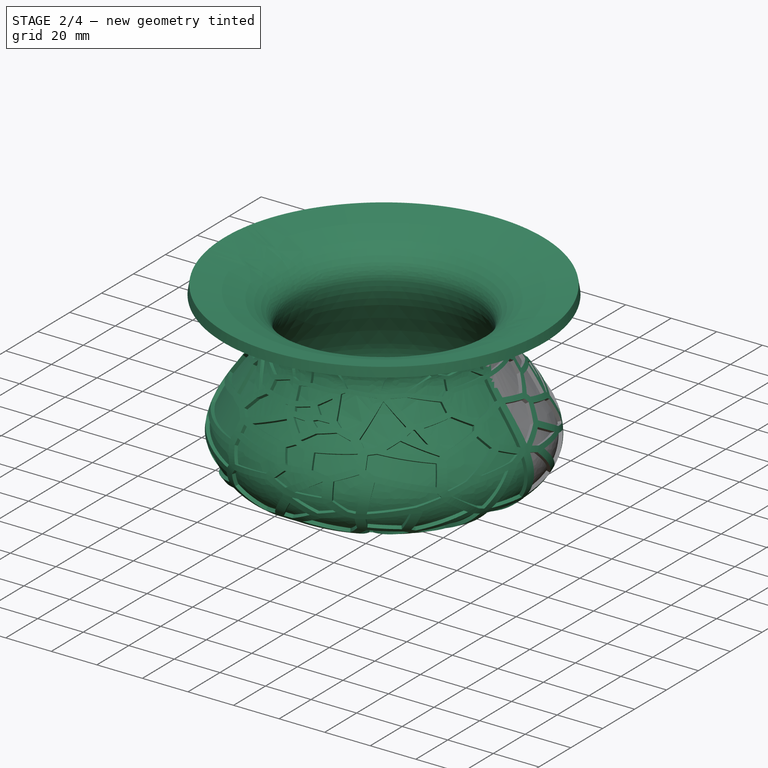
[diagram: stage 2 of 4 — iso view after this stage's code; geometry added in this stage tinted green]
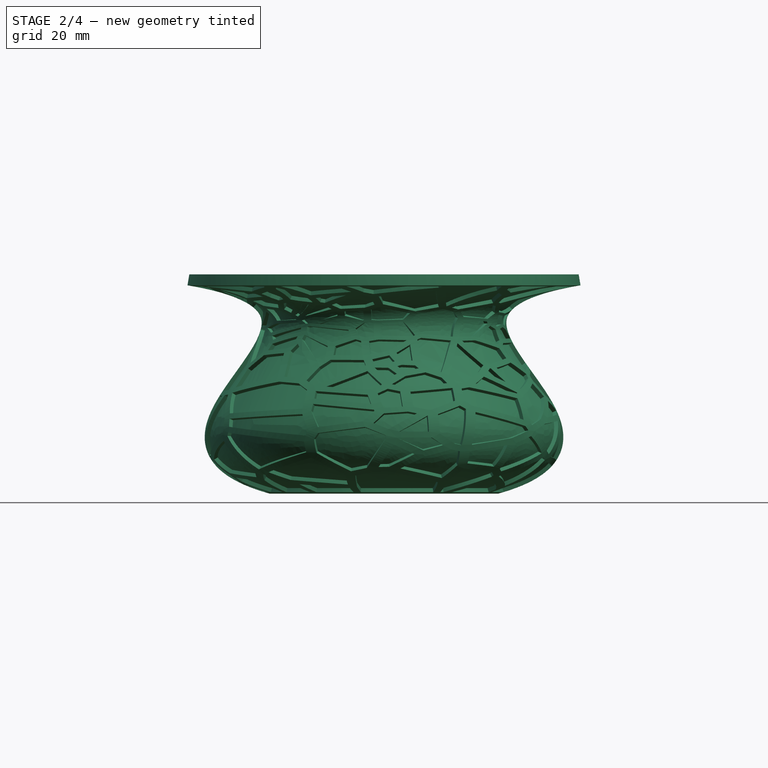
[diagram: stage 2 of 4 — front view after this stage's code; geometry added in this stage tinted green]
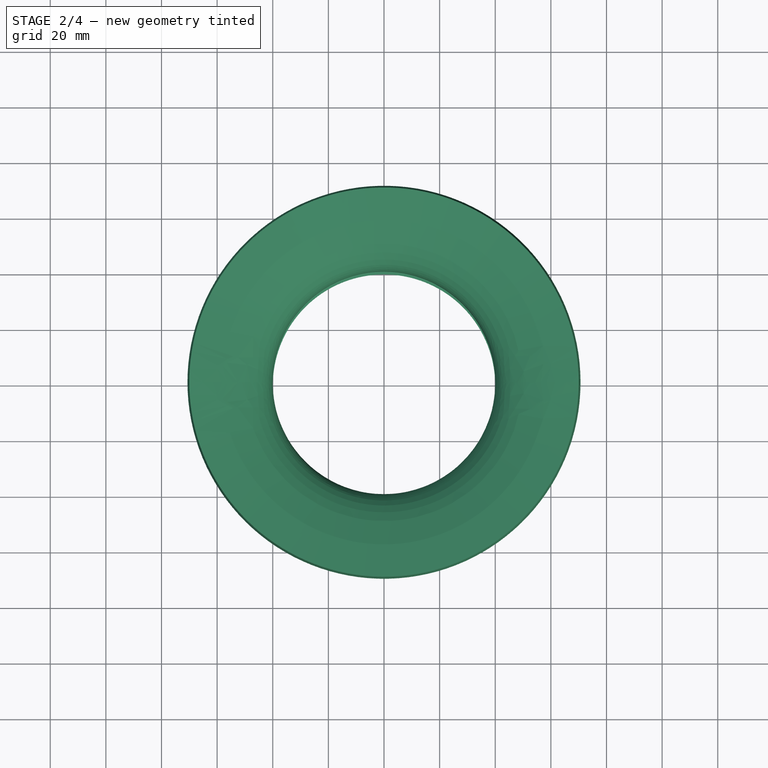
[diagram: stage 2 of 4 — top view after this stage's code; geometry added in this stage tinted green]
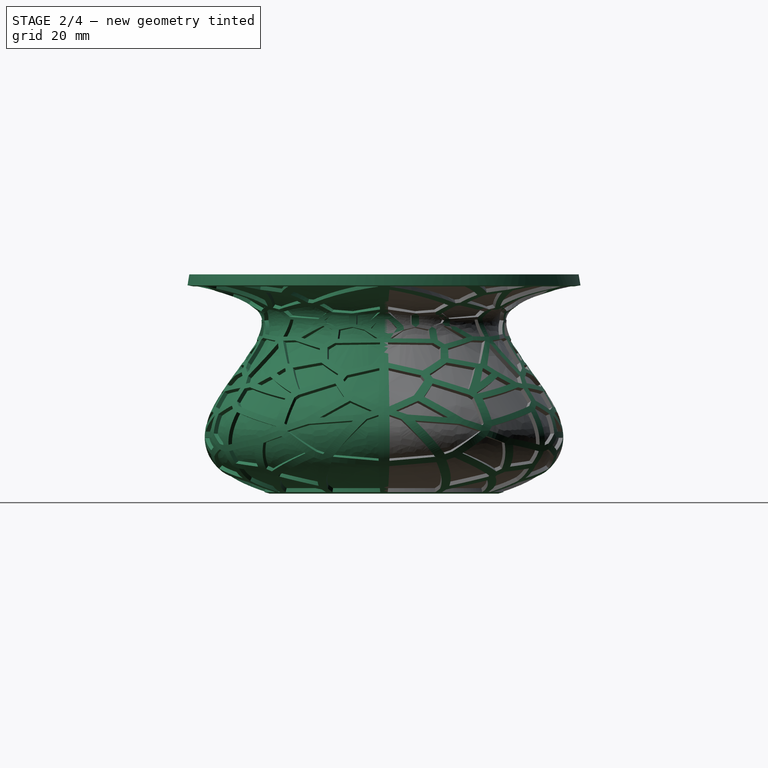
[diagram: stage 2 of 4 — right view after this stage's code; geometry added in this stage tinted green]
FEATURE [Part::Cut] Cut
  Base = -> Offset
  Tool = -> Sketch_On_Surface001
FEATURE [Part::Mirroring] Part__Mirroring  label="Cut (Mirror #1)"
  Base = (0,0,0)
  Normal = (0,1,0)
  Source = -> Cut
FEATURE [Part::MultiFuse] Fusion
  Refine = true
  Shapes = -> [Part__Mirroring,Cut]
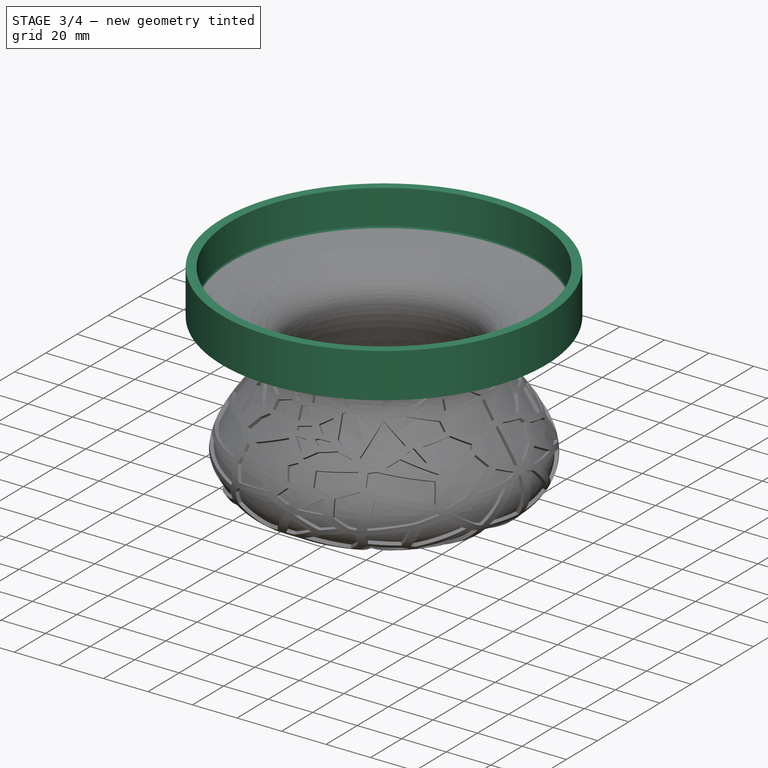
[diagram: stage 3 of 4 — iso view after this stage's code; geometry added in this stage tinted green]
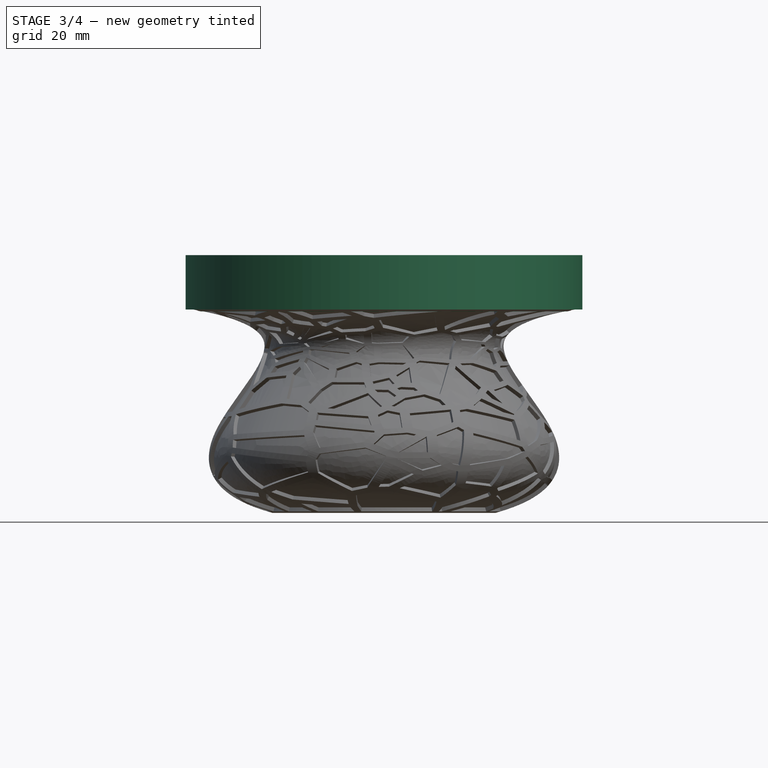
[diagram: stage 3 of 4 — front view after this stage's code; geometry added in this stage tinted green]
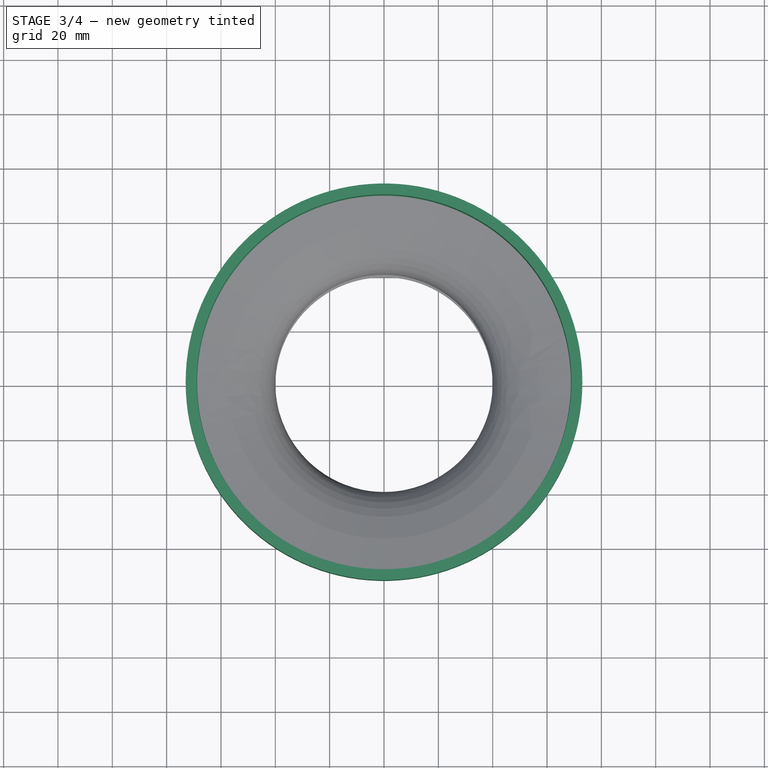
[diagram: stage 3 of 4 — top view after this stage's code; geometry added in this stage tinted green]
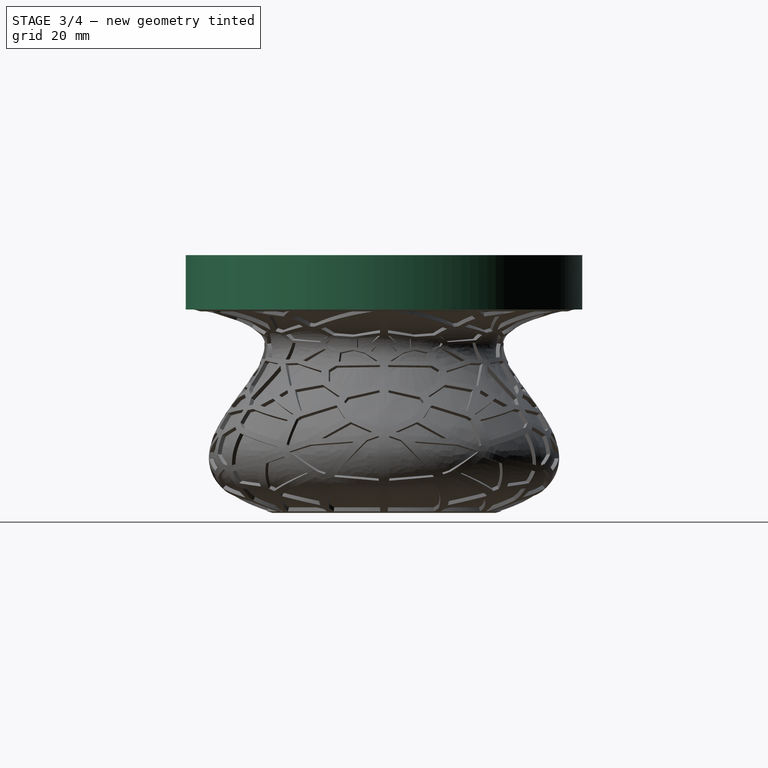
[diagram: stage 3 of 4 — right view after this stage's code; geometry added in this stage tinted green]
FEATURE [Part::FeaturePython] Tube  # WARN: FeaturePython — macro-defined, semantics opaque (R4)
  AttacherType = Attacher::AttachEngine3D
  Height = 20
  InnerRadius = 69
  OuterRadius = 73
  Placement = pos=(0,0,71) rot=(0,0,1;0rad)
FEATURE [Sketcher::SketchObject] Sketch007  label="path"
  FullyConstrained = true
  Placement = pos=(0,0,80) rot=(0,0,1;0rad)
  sketch-geometry (1):
    g0: Circle CenterX=0 CenterY=0 CenterZ=0 NormalX=0 NormalY=0 NormalZ=1 AngleXU=0 Radius=65
  constraints (2):
    c: Coincident(g0,g-1)
    c: Radius(g0) = 65
FEATURE [Sketcher::SketchObject] Sketch008
  ExternalGeometry = -> [Sketch007,Fusion]
  FullyConstrained = false
  MapMode = 7
  Placement = pos=(65,0,80) rot=(1,0,0;1.5708rad)
  Support = -> [Sketch007]
  sketch-geometry (2):
    g0: ArcOfCircle CenterX=1.6904 CenterY=-4.15673 CenterZ=0 NormalX=0 NormalY=0 NormalZ=1 AngleXU=0 Radius=5.58486 StartAngle=4.83316 EndAngle=7.12265
    g1: LineSegment StartX=5.42031 StartY=-1.8e-15 StartZ=0 EndX=2.36322 EndY=-9.70092 EndZ=0
  constraints (3):
    c: PointOnObject(g0,g-1)
    c: Coincident(g1,g0)
    c: Coincident(g1,g0)
FEATURE [Part::Sweep] Sweep
  Frenet = false
  Sections = -> [Sketch008]
  Solid = true
  Spine = -> Sketch007 [Edge1]
  Transition = 1
FEATURE [Part::MultiFuse] Fusion001
  Shapes = -> [Fusion,Sweep]
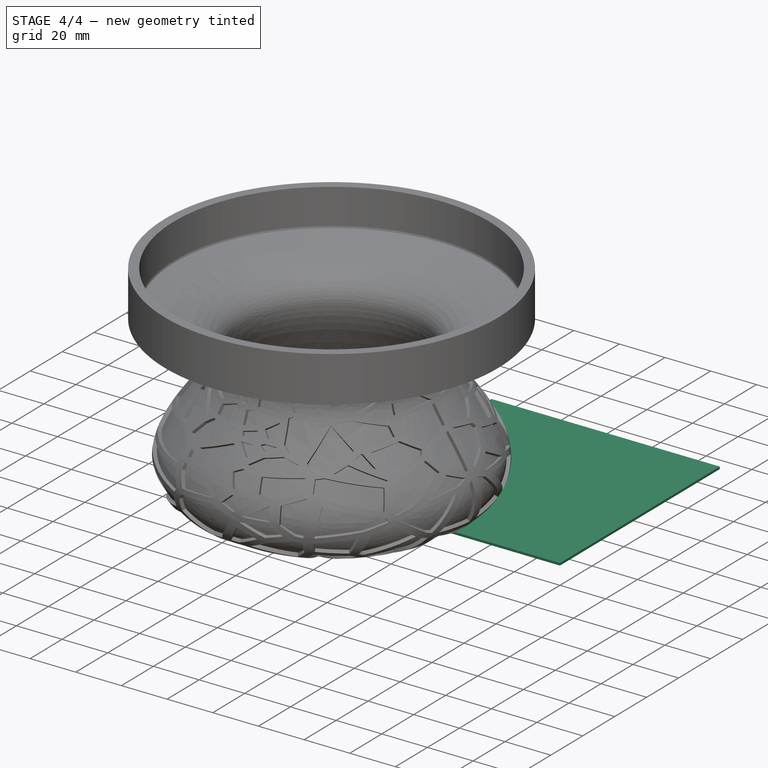
[diagram: stage 4 of 4 — iso view after this stage's code; geometry added in this stage tinted green]
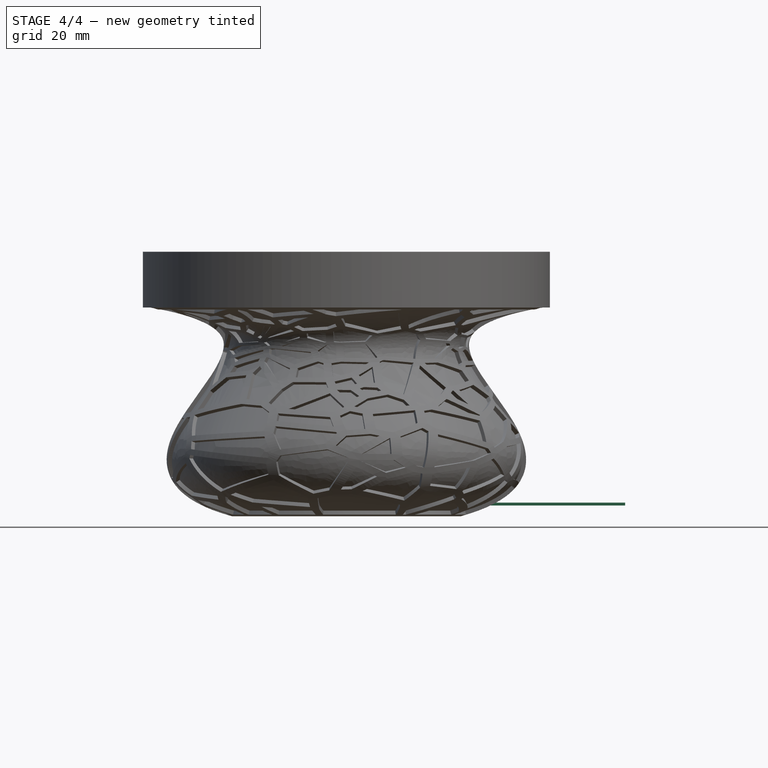
[diagram: stage 4 of 4 — front view after this stage's code; geometry added in this stage tinted green]
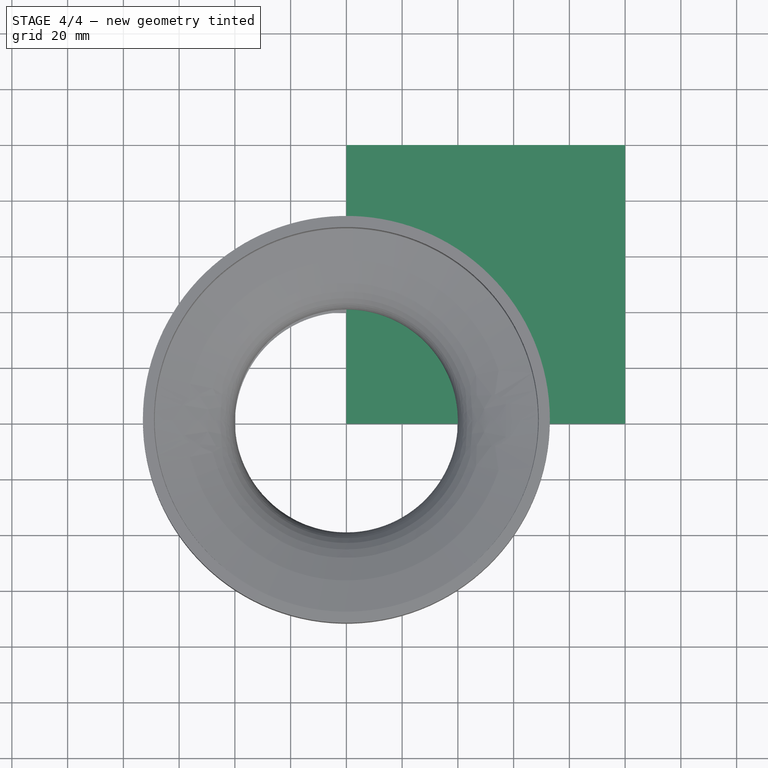
[diagram: stage 4 of 4 — top view after this stage's code; geometry added in this stage tinted green]
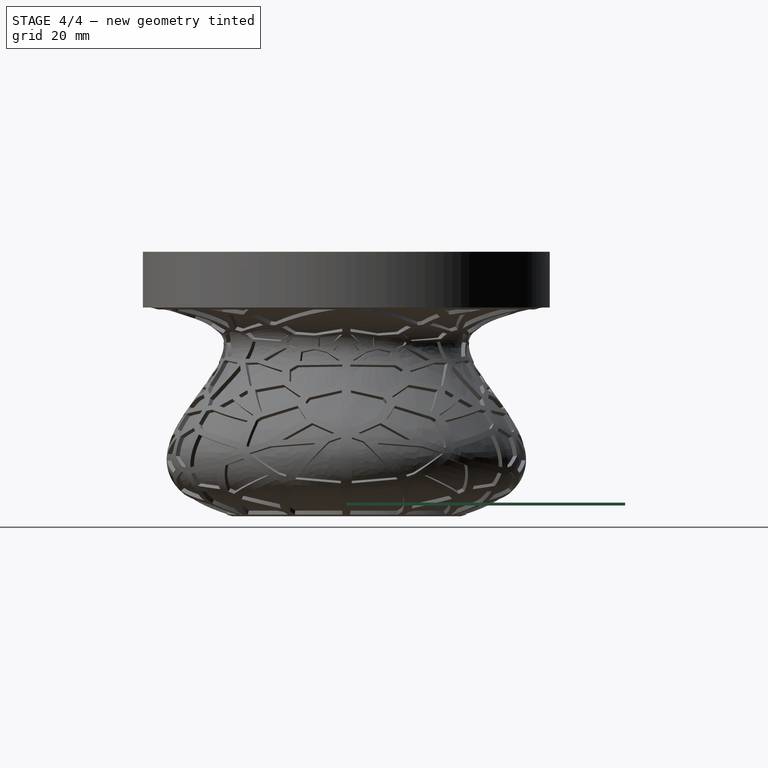
[diagram: stage 4 of 4 — right view after this stage's code; geometry added in this stage tinted green]
FEATURE [Sketcher::SketchObject] Sketch004
  FullyConstrained = false
  sketch-geometry (5):
    g0: LineSegment StartX=0 StartY=0 StartZ=0 EndX=100 EndY=0 EndZ=0
    g1: LineSegment StartX=100 StartY=0 StartZ=0 EndX=100 EndY=100 EndZ=0
    g2: LineSegment StartX=100 StartY=100 StartZ=0 EndX=0 EndY=100 EndZ=0
    g3: LineSegment StartX=0 StartY=100 StartZ=0 EndX=0 EndY=0 EndZ=0
    g4: LineSegment StartX=-107.526 StartY=76.4819 StartZ=0 EndX=-64.1864 EndY=28.6654 EndZ=0
  constraints (12):
    c: Coincident(g0,g1)
    c: Coincident(g1,g2)
    c: Coincident(g2,g3)
    c: Coincident(g3,g0)
    c: Horizontal(g0)
    c: Horizontal(g2)
    c: Vertical(g1)
    c: Vertical(g3)
    c: Coincident(g0,g-1)
    c: Equal(g2,g1)
    c: DistanceX(g2,g2) = 100
    c: Distance(g4) = 64.5351
FEATURE [Part::Extrusion] Extrude
  Base = -> Sketch004
  Dir = (0,0,1)
  DirMode = 2
  FaceMakerClass = Part::FaceMakerBullseye
  LengthFwd = 1
  LengthRev = 0
  Solid = true
  Symmetric = false
FEATURE [PartDesign::FeatureBase] BaseFeature
  BaseFeature = -> Extrude
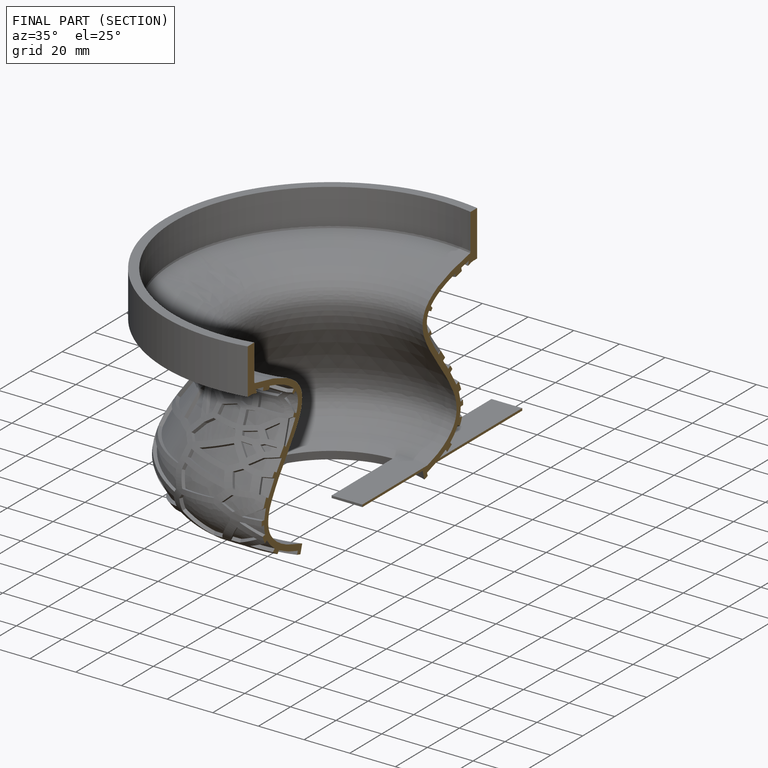
[diagram: finished part — half-section view (interior)]
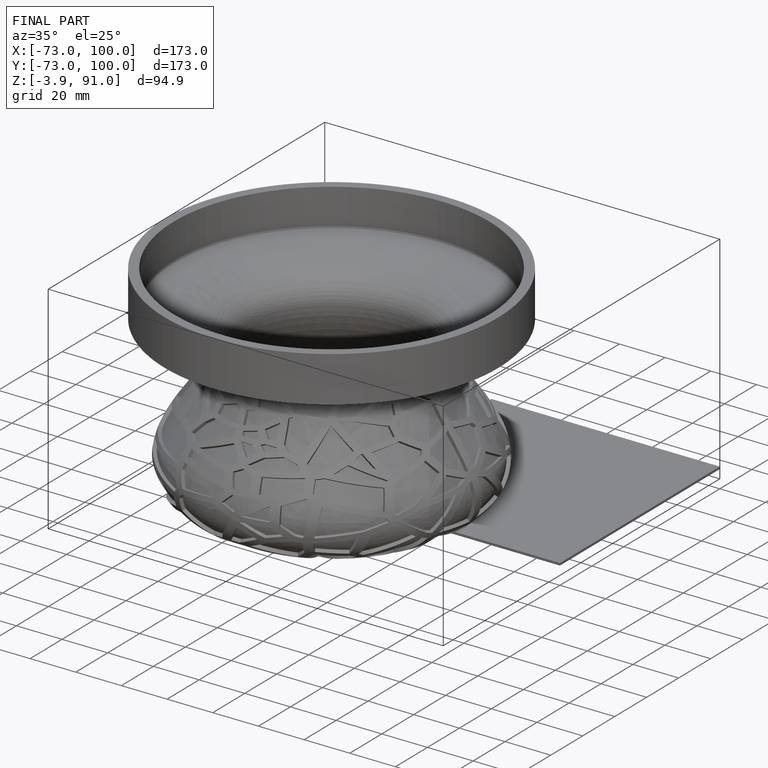
[diagram: finished part — iso view with bounding-box wireframe]
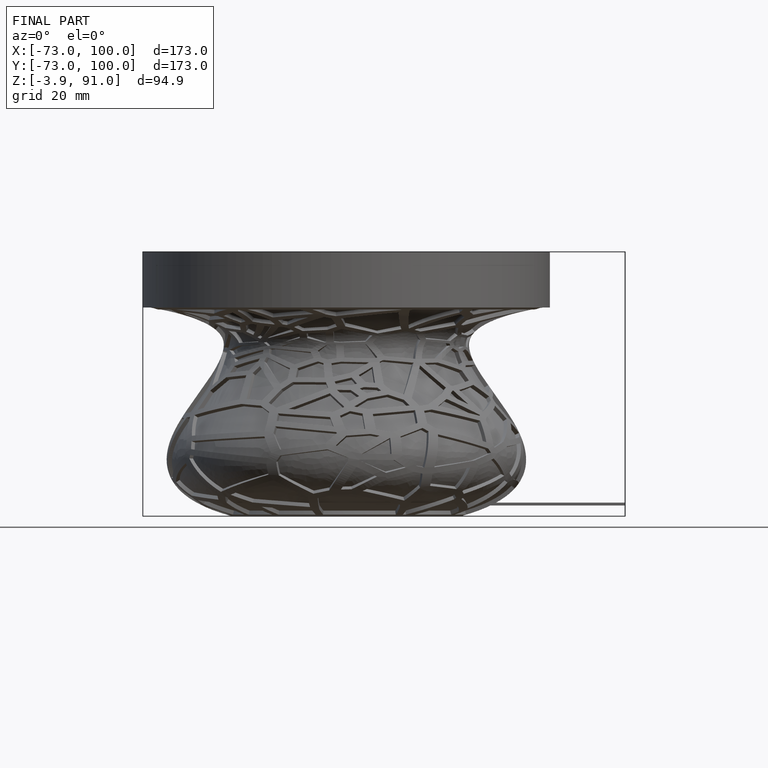
[diagram: finished part — front view with bounding-box wireframe]
